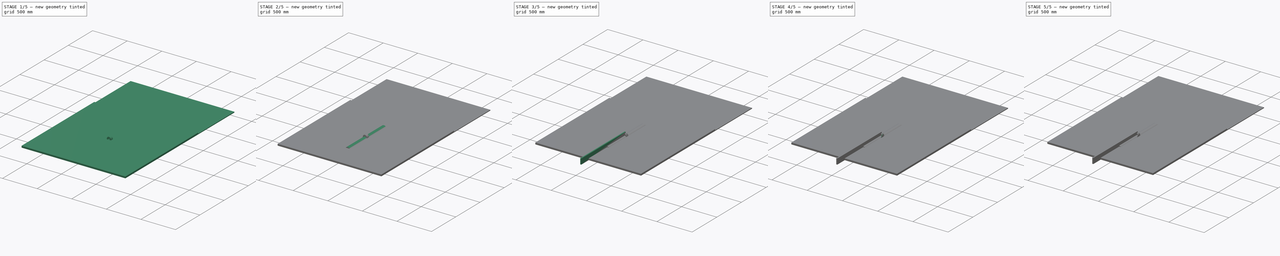
[diagram: build sequence overview — one tinted view per stage of 5, left to right]
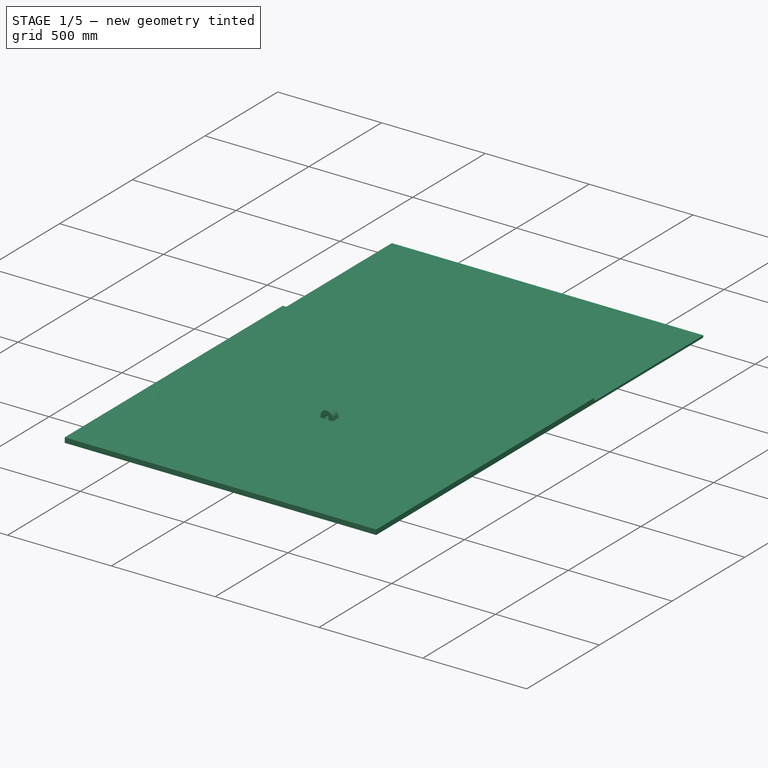
[diagram: stage 1 of 5 — iso view after this stage's code; geometry added in this stage tinted green]
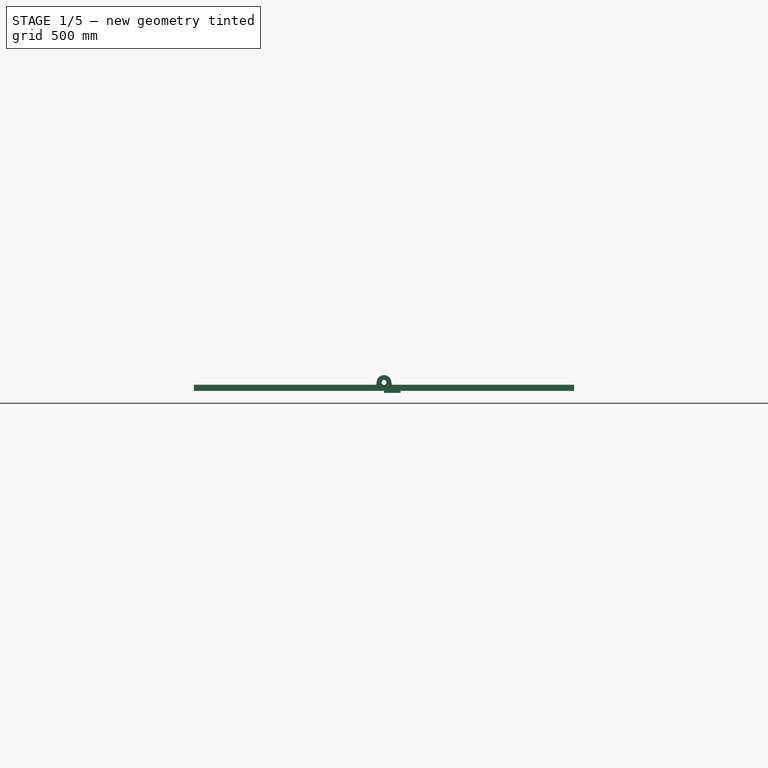
[diagram: stage 1 of 5 — front view after this stage's code; geometry added in this stage tinted green]
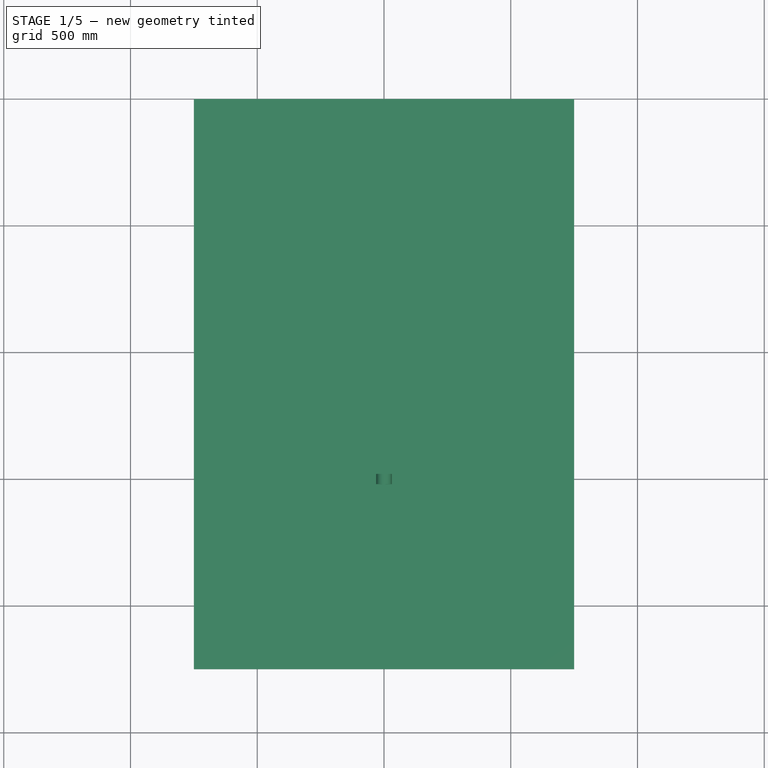
[diagram: stage 1 of 5 — top view after this stage's code; geometry added in this stage tinted green]
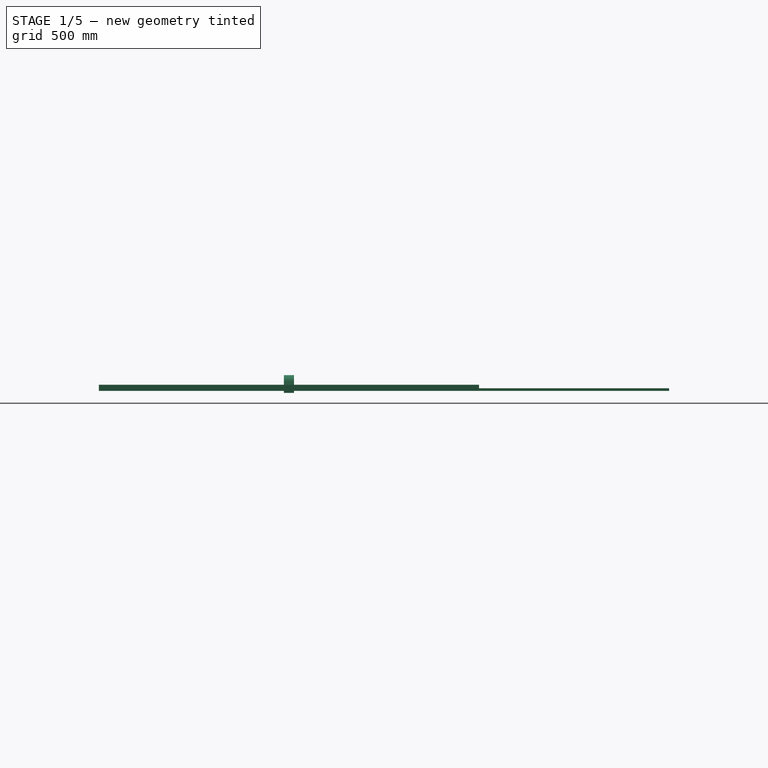
[diagram: stage 1 of 5 — right view after this stage's code; geometry added in this stage tinted green]
FCSTD DOCUMENT  (FreeCAD 0.20R29410 (Git))
Label: cutting2
License: All rights reserved
LicenseURL: http://en.wikipedia.org/wiki/All_rights_reserved
objects: App::Link×26, PartDesign::CoordinateSystem×23, Sketcher::SketchObject×20, PartDesign::Pad×17, PartDesign::Mirrored×15, PartDesign::Body×12, App::Part×8, Part::Feature×7, App::DocumentObjectGroup×5, PartDesign::MultiTransform×3, PartDesign::Revolution×2, PartDesign::Pocket×1, PartDesign::Fillet×1, App::FeaturePython×1, PartDesign::Plane×1, PartDesign::AdditiveBox×1, Part::FeaturePython×1, App::AnnotationLabel×1
note: 126 computed .brp shape members not serialized (recipe doc carries the construction recipe); baked Part::Feature solids carry a one-line shape summary decoded from their .brp
EXTERNAL_REF file=GHR20.FCStd obj=Local_CS001
EXTERNAL_REF file=cutting_roll.FCStd obj=right_20mm
EXTERNAL_REF file=cutting_roll.FCStd obj=Model
EXTERNAL_REF file=cutting_roll.FCStd obj=left_20mm
EXTERNAL_REF file=GHR20.FCStd obj=Local_CS
EXTERNAL_REF file=GHR20.FCStd obj=Body
EXTERNAL_REF file=AL-Laser1030.FCStd obj=middle
EXTERNAL_REF file=AL-Laser1030.FCStd obj=Body
EXTERNAL_REF file=AL-Laser1030.FCStd obj=begin
EXTERNAL_REF file=../../Downloads/probnik_krepezha_zazhima.FCStd obj=Local_CS005
EXTERNAL_REF file=../../Downloads/probnik_krepezha_zazhima.FCStd obj=Body001
EXTERNAL_REF file=AL-Laser1030.FCStd obj=end
EXTERNAL_REF file=../../Downloads/probnik_krepezha_zazhima.FCStd obj=Local_CS
EXTERNAL_REF file=../../Downloads/probnik_krepezha_zazhima.FCStd obj=Body002
EXTERNAL_REF file=57HS56-2804A08-D21.FCStd obj=Local_CS
EXTERNAL_REF file=../../Downloads/probnik_krepezha_zazhima.FCStd obj=Local_CS006
EXTERNAL_REF file=57HS56-2804A08-D21.FCStd obj=Body
EXTERNAL_REF file=bearing_p08.FCStd obj=Local_CS001
EXTERNAL_REF file=../../Downloads/probnik_krepezha_zazhima.FCStd obj=Local_CS002
EXTERNAL_REF file=bearing_p08.FCStd obj=p08
EXTERNAL_REF file=57HS56-2804A08-D21.FCStd obj=Local_CS002
EXTERNAL_REF file=57BLY-0730NBB.FCStd obj=fixture_plane001
EXTERNAL_REF file=57BLY-0730NBB.FCStd obj=Model
EXTERNAL_REF file=RS-100_R.FCStd obj=Local_CS001
EXTERNAL_REF file=57BLY-0730NBB.FCStd obj=LCS_1
EXTERNAL_REF file=RS-100_R.FCStd obj=Body
EXTERNAL_REF file=plywood_cutting_shield.FCStd obj=Local_CS
EXTERNAL_REF file=cutting_roll.FCStd obj=center
EXTERNAL_REF file=plywood_cutting_shield.FCStd obj=Body

FEATURE [Sketcher::SketchObject] Sketch
  FullyConstrained = false
  MapMode = 5
  Placement = pos=(0,0,0) rot=(1,0,0;1.5708rad)
  Support = -> [XZ_Plane]
  sketch-geometry (12):
    g0: LineSegment StartX=0 StartY=23 StartZ=0 EndX=0 EndY=0 EndZ=0
    g1: ArcOfCircle CenterX=0 CenterY=33 CenterZ=0 NormalX=0 NormalY=0 NormalZ=1 AngleXU=0 Radius=10 StartAngle=4.71239 EndAngle=7.85398
    g2: ArcOfCircle CenterX=0 CenterY=33 CenterZ=0 NormalX=0 NormalY=0 NormalZ=1 AngleXU=0 Radius=29 StartAngle=0.169407 EndAngle=1.5708
    g3: ArcOfCircle CenterX=62.5 CenterY=12.5 CenterZ=0 NormalX=0 NormalY=0 NormalZ=1 AngleXU=0 Radius=2.5 StartAngle=0 EndAngle=1.5708
    g4: LineSegment StartX=0 StartY=0 StartZ=0 EndX=65 EndY=0 EndZ=0
    g5: LineSegment StartX=65 StartY=0 StartZ=0 EndX=65 EndY=12.5 EndZ=0
    g6: LineSegment StartX=3.1e-15 StartY=43 StartZ=0 EndX=0 EndY=62 EndZ=0
    g7: LineSegment StartX=17 StartY=33 StartZ=0 EndX=17 EndY=0 EndZ=0
    g8: LineSegment StartX=32.5 StartY=15 StartZ=0 EndX=47.5 EndY=15 EndZ=0
    g9: LineSegment StartX=47.5 StartY=15 StartZ=0 EndX=62.5 EndY=15 EndZ=0
    g10: LineSegment StartX=47.5 StartY=0 StartZ=0 EndX=47.5 EndY=15 EndZ=0
    g11: LineSegment StartX=32.5 StartY=15 StartZ=0 EndX=28.5849 EndY=37.8893 EndZ=0
  constraints (33):
    c: PointOnObject(g0,g-2)
    c: Coincident(g0,g-1)
    c: PointOnObject(g1,g-2)
    c: Coincident(g1,g0)
    c: PointOnObject(g1,g-2)
    c: Coincident(g2,g1)
    c: PointOnObject(g2,g-2)
    c: Coincident(g4,g0)
    c: PointOnObject(g4,g-1)
    c: Coincident(g5,g4)
    c: Vertical(g5)
    c: Coincident(g6,g1)
    c: Coincident(g6,g2)
    c: Tangent(g5,g3) = -1.5708
    c: Tangent(g9,g3) = 1.5708
    c: PointOnObject(g7,g-1)
    c: Vertical(g7)
    c: Diameter(g1) = 20  'd'
    c: Coincident(g8,g9)
    c: Horizontal(g8)
    c: Horizontal(g9)
    c: Equal(g8,g9)
    c: PointOnObject(g10,g-1)
    c: Coincident(g10,g8)
    c: Vertical(g10)
    c: Distance(g10) = 15  'fixture_hole_height'
    c: DistanceX(g10) = 47.5  'hole_d_x2'
    c: DistanceX(g4) = 65  'width_x2'
    c: DistanceY(g1) = 33
    c: DistanceY(g2) = 62
    c: Coincident(g11,g8)
    c: Tangent(g11,g2) = -1.5708
    c: Diameter(g3) = 5
FEATURE [PartDesign::Pad] Pad  label="bearing_fixture_pad"
  Direction = (0,-1,-2e-16)
  Length = 40
  Length2 = 10
  Midplane = true
  Placement = pos=(0,0,0) rot=(1,0,0;1.5708rad)
  Profile = -> Sketch
  ReferenceAxis = -> Sketch [N_Axis]
  Type = 0
FEATURE [Sketcher::SketchObject] Sketch001
  FullyConstrained = true
  MapMode = 5
  Support = -> [XY_Plane]
  expr: Constraints[14] = Sketch.Constraints.hole_d_x2
  sketch-geometry (7):
    g0: ArcOfCircle CenterX=45 CenterY=0 CenterZ=0 NormalX=0 NormalY=0 NormalZ=1 AngleXU=0 Radius=5 StartAngle=1.5708 EndAngle=4.71239
    g1: ArcOfCircle CenterX=50 CenterY=0 CenterZ=0 NormalX=0 NormalY=0 NormalZ=1 AngleXU=0 Radius=5 StartAngle=4.71239 EndAngle=7.85398
    g2: LineSegment StartX=45 StartY=-5 StartZ=0 EndX=50 EndY=-5 EndZ=0
    g3: LineSegment StartX=50 StartY=5 StartZ=0 EndX=45 EndY=5 EndZ=0
    g4: GeomPoint X=40 Y=0 Z=0
    g5: GeomPoint X=55 Y=0 Z=0
    g6: GeomPoint X=47.5 Y=0 Z=0
  constraints (15):
    c: Tangent(g0,g2) = -1.5708
    c: Tangent(g2,g1) = -1.5708
    c: Tangent(g1,g3) = -1.5708
    c: Tangent(g3,g0) = -1.5708
    c: Equal(g0,g1)
    c: PointOnObject(g0,g-1)
    c: PointOnObject(g1,g-1)
    c: PointOnObject(g4,g0)
    c: PointOnObject(g5,g1)
    c: PointOnObject(g5,g-1)
    c: PointOnObject(g4,g-1)
    c: Diameter(g1) = 10
    c: DistanceX(g4,g5) = 15
    c: Symmetric(g0,g1,g6)
    c: DistanceX(g6) = 47.5
FEATURE [PartDesign::Pocket] Pocket
  BaseFeature = -> Pad
  Direction = (0,0,-1)
  Length = 5
  Length2 = 5
  Placement = pos=(0,0,0) rot=(1,0,0;1.5708rad)
  Profile = -> Sketch001
  ReferenceAxis = -> Sketch001 [N_Axis]
  Reversed = true
  Type = 1
FEATURE [PartDesign::Mirrored] Mirrored
  BaseFeature = -> Pocket
  MirrorPlane = -> Sketch [V_Axis]
  Originals = -> [Pad,Pocket]
  Placement = pos=(0,0,0) rot=(1,0,0;1.5708rad)
FEATURE [PartDesign::Fillet] Fillet
  Base = -> Mirrored [Edge18,Edge9]
  BaseFeature = -> Mirrored
  Placement = pos=(0,0,0) rot=(1,0,0;1.5708rad)
  Radius = 4
  SupportTransform = false
  UseAllEdges = false
FEATURE [App::Link] bearing007
  AssemblyType = Part::Link
  AttachedBy = #LCS_0
  AttachedTo = plywood001#shape_center
  AttachmentOffset = pos=(-750,730,0) rot=(0,0,1;0rad)
  LinkPlacement = pos=(750,730,150) rot=(0,1,0;3.14159rad)
  LinkedObject = -> bearing
  Placement = pos=(750,730,150) rot=(0,1,0;3.14159rad)
  SolverId = Asm4EE
  expr: .AttachmentOffset.Base.x = -<<plywood_sketch>>.Constraints.width / 2
  expr: .AttachmentOffset.Base.y = <<plywood_sketch>>.Constraints.width / 2 - <<bearing_fixture_pad>>.Length / 2
  expr: Placement = plywood001.Placement * shape_center.Placement * AttachmentOffset * LCS_0.Placement ^ -1
FEATURE [App::Link] plywood_shield
  AssemblyType = Part::Link
  AttachedBy = #Local_CS
  AttachedTo = Unnamed1#center
  AttachmentOffset = pos=(0,27.5,0) rot=(1,0,0;4.71239rad)
  LinkPlacement = pos=(-34.5,60.2,68.5) rot=(0,0,1;1.5708rad)
  LinkedObject = -> <external plywood_cutting_shield.FCStd>#Body
  Placement = pos=(-34.5,60.2,68.5) rot=(0,0,1;1.5708rad)
  SolverId = Asm4EE
  expr: Placement = Unnamed1.Placement * cutting_roll#center.Placement * AttachmentOffset * Unnamed1#Local_CS.Placement ^ -1
FEATURE [PartDesign::Body] Mirrored002Body002
  Origin = -> Origin018
FEATURE [Part::FeaturePython] Angle  # WARN: FeaturePython — macro-defined, semantics opaque (R4)
FEATURE [App::AnnotationLabel] AngleLbl
  BasePosition = (88.8222,-3.6e-15,110.195)
  LabelText = 164.318°
  TextPosition = (0,0,0)
FEATURE [App::DocumentObjectGroup] Measures
  Group = -> [Angle,AngleLbl]
FEATURE [PartDesign::CoordinateSystem] LCS_0006
  AttacherType = Attacher::AttachEngine3D
  MapMode = 2
  Support = -> [X_Axis019]
FEATURE [Sketcher::SketchObject] Sketch018  label="plywood_material_end_sketch"
  FullyConstrained = true
  MapMode = 5
  Support = -> [XY_Plane020]
  sketch-geometry (5):
    g0: LineSegment StartX=0 StartY=0 StartZ=0 EndX=750 EndY=0 EndZ=0
    g1: LineSegment StartX=750 StartY=0 StartZ=0 EndX=750 EndY=1500 EndZ=0
    g2: LineSegment StartX=750 StartY=1500 StartZ=0 EndX=-750 EndY=1500 EndZ=0
    g3: LineSegment StartX=-750 StartY=1500 StartZ=0 EndX=-750 EndY=0 EndZ=0
    g4: LineSegment StartX=-750 StartY=0 StartZ=0 EndX=0 EndY=0 EndZ=0
  constraints (14):
    c: Coincident(g-1,g0)
    c: PointOnObject(g0,g-1)
    c: Coincident(g0,g1)
    c: Vertical(g1)
    c: Coincident(g1,g2)
    c: Horizontal(g2)
    c: Coincident(g2,g3)
    c: PointOnObject(g3,g-1)
    c: Vertical(g3)
    c: Coincident(g3,g4)
    c: Coincident(g4,g0)
    c: Equal(g4,g0)
    c: DistanceX(g3,g0) = 1500
    c: DistanceY(g1) = 1500
FEATURE [PartDesign::Pad] Pad016
  Direction = (0,0,1)
  Length = 10
  Length2 = 10
  Profile = -> Sketch018
  ReferenceAxis = -> Sketch018 [N_Axis]
  Type = 0
FEATURE [PartDesign::CoordinateSystem] LCS_Origin
  AttacherType = Attacher::AttachEngine3D
  MapMode = 2
  Support = -> [X_Axis003]
FEATURE [App::DocumentObjectGroup] Constraints
FEATURE [App::FeaturePython] Variables  # WARN: FeaturePython — macro-defined, semantics opaque (R4)
  Type = App::PropertyContainer
FEATURE [App::DocumentObjectGroup] Configurations
FEATURE [PartDesign::CoordinateSystem] front
  AttacherType = Attacher::AttachEngine3D
  MapMode = 5
  Support = -> [XY_Plane]
FEATURE [PartDesign::CoordinateSystem] back
  AttacherType = Attacher::AttachEngine3D
  AttachmentOffset = pos=(48.85,0,0) rot=(0,0,1;0rad)
  MapMode = 5
  Placement = pos=(48.85,0,0) rot=(0,0,1;0rad)
  Support = -> [XY_Plane]
  expr: .AttachmentOffset.Base.x = Pad.Length
FEATURE [PartDesign::Body] Body  label="spacer_49mm"
  Group = -> [Sketch,Pad,front,back]
  Origin = -> Origin
  Tip = -> Pad
FEATURE [Sketcher::SketchObject] Sketch003
  FullyConstrained = true
  MapMode = 5
  Placement = pos=(0,0,0) rot=(0.57735,0.57735,0.57735;2.0944rad)
  Support = -> [YZ_Plane004]
  sketch-geometry (2):
    g0: Circle CenterX=0 CenterY=0 CenterZ=0 NormalX=0 NormalY=0 NormalZ=1 AngleXU=0 Radius=14.85
    g1: Circle CenterX=0 CenterY=0 CenterZ=0 NormalX=0 NormalY=0 NormalZ=1 AngleXU=0 Radius=12.7
  constraints (4):
    c: Coincident(g0,g-1)
    c: Diameter(g0) = 29.7
    c: Coincident(g1,g0)
    c: Diameter(g1) = 25.4
FEATURE [PartDesign::Pad] Pad001
  Direction = (1,-2e-16,3e-16)
  Length = 15
  Length2 = 10
  Placement = pos=(0,0,0) rot=(0.57735,0.57735,0.57735;2.0944rad)
  Profile = -> Sketch003
  ReferenceAxis = -> Sketch003 [N_Axis]
  Type = 0
FEATURE [PartDesign::CoordinateSystem] back001
  AttacherType = Attacher::AttachEngine3D
  AttachmentOffset = pos=(15,0,0) rot=(0,0,1;0rad)
  MapMode = 5
  Placement = pos=(15,0,0) rot=(0,0,1;0rad)
  Support = -> [XY_Plane004]
  expr: .AttachmentOffset.Base.x = Pad001.Length
FEATURE [PartDesign::CoordinateSystem] front001
  AttacherType = Attacher::AttachEngine3D
  MapMode = 5
  Support = -> [XY_Plane004]
FEATURE [PartDesign::Body] Body002  label="spacer_15mm"
  Group = -> [Sketch003,Pad001,front001,back001]
  Origin = -> Origin004
  Tip = -> Pad001
FEATURE [Sketcher::SketchObject] Sketch004
  FullyConstrained = true
  MapMode = 5
  Placement = pos=(0,0,0) rot=(0.57735,0.57735,0.57735;2.0944rad)
  Support = -> [YZ_Plane005]
  sketch-geometry (2):
    g0: Circle CenterX=0 CenterY=0 CenterZ=0 NormalX=0 NormalY=0 NormalZ=1 AngleXU=0 Radius=14.85
    g1: Circle CenterX=0 CenterY=0 CenterZ=0 NormalX=0 NormalY=0 NormalZ=1 AngleXU=0 Radius=12.7
  constraints (4):
    c: Coincident(g0,g-1)
    c: Diameter(g0) = 29.7
    c: Coincident(g1,g0)
    c: Diameter(g1) = 25.4
FEATURE [PartDesign::Pad] Pad002
  Direction = (1,-2e-16,3e-16)
  Length = 30
  Length2 = 10
  Placement = pos=(0,0,0) rot=(0.57735,0.57735,0.57735;2.0944rad)
  Profile = -> Sketch004
  ReferenceAxis = -> Sketch004 [N_Axis]
  Type = 0
FEATURE [PartDesign::CoordinateSystem] Local_CS  label="roll_begin"
  AttacherType = Attacher::AttachEngine3D
  AttachmentOffset = pos=(103,0,0) rot=(0,0,1;0rad)
  MapMode = 5
  Placement = pos=(103,0,0) rot=(0,0,1;0rad)
  Support = -> [XY_Plane006]
  expr: .AttachmentOffset.Base.x = Sketch006.Constraints.roll_begin
FEATURE [PartDesign::CoordinateSystem] Local_CS001  label="roll_end"
  AttacherType = Attacher::AttachEngine3D
  AttachmentOffset = pos=(899,0,0) rot=(0,0,1;0rad)
  MapMode = 5
  Placement = pos=(899,0,0) rot=(0,0,1;0rad)
  Support = -> [XY_Plane006]
  expr: .AttachmentOffset.Base.x = Sketch006.Constraints.roll_end
FEATURE [App::Link] axis001
  AssemblyType = Part::Link
  AttachedBy = #LCS_0
  AttachedTo = Parent Assembly#LCS_Origin
  LinkedObject = -> axis
  SolverId = Asm4EE
  expr: Placement = LCS_Origin.Placement * AttachmentOffset * LCS_0.Placement ^ -1
FEATURE [PartDesign::CoordinateSystem] Local_CS002  label="disk_end"
  AttacherType = Attacher::AttachEngine3D
  AttachmentOffset = pos=(0.55,0,0) rot=(0,0,1;0rad)
  MapMode = 5
  Placement = pos=(0.55,0,0) rot=(0,0,1;0rad)
  Support = -> [XY_Plane001]
  expr: .AttachmentOffset.Base.x = Sketch001.Constraints.thickness_x2
FEATURE [PartDesign::CoordinateSystem] Local_CS003  label="disk_begin"
  AttacherType = Attacher::AttachEngine3D
  AttachmentOffset = pos=(-0.55,0,0) rot=(0,0,1;0rad)
  MapMode = 5
  Placement = pos=(-0.55,0,0) rot=(0,0,1;0rad)
  Support = -> [XY_Plane001]
  expr: .AttachmentOffset.Base.x = -Sketch001.Constraints.thickness_x2
FEATURE [App::Link] cutting_disk  label="cutting_disk001"
  AssemblyType = Part::Link
  AttachedBy = #Local_CS006
  AttachedTo = axis001#roll_middle
  LinkPlacement = pos=(501,0,0) rot=(0,0,1;0rad)
  LinkedObject = -> Body001
  Placement = pos=(501,0,0) rot=(0,0,1;0rad)
  SolverId = Asm4EE
  expr: .AttachmentOffset.Base.x = 0
  expr: Placement = axis001.Placement * roll_middle.Placement * AttachmentOffset * Local_CS006.Placement ^ -1
FEATURE [Sketcher::SketchObject] Sketch007
  AttachmentOffset = pos=(-1.75,0,0) rot=(0,0,1;0rad)
  FullyConstrained = true
  MapMode = 5
  Placement = pos=(-1.75,0,0) rot=(0,0,1;0rad)
  Support = -> [XY_Plane006]
  expr: .AttachmentOffset.Base.x = -1.75
  sketch-geometry (6):
    g0: LineSegment StartX=-0.1095 StartY=5.053 StartZ=0 EndX=0 EndY=5.053 EndZ=0
    g1: LineSegment StartX=0 StartY=5.053 StartZ=0 EndX=0.1095 EndY=5.053 EndZ=0
    g2: LineSegment StartX=0.1095 StartY=5.053 StartZ=0 EndX=0.656251 EndY=6 EndZ=0
    g3: LineSegment StartX=0.656251 StartY=6 StartZ=0 EndX=0 EndY=6 EndZ=0
    g4: LineSegment StartX=0 StartY=6 StartZ=0 EndX=-0.656251 EndY=6 EndZ=0
    g5: LineSegment StartX=-0.656251 StartY=6 StartZ=0 EndX=-0.1095 EndY=5.053 EndZ=0
  constraints (18):
    c: PointOnObject(g0,g-2)
    c: Horizontal(g0)
    c: Coincident(g0,g1)
    c: Horizontal(g1)
    c: Coincident(g1,g2)
    c: Coincident(g2,g3)
    c: PointOnObject(g3,g-2)
    c: Horizontal(g3)
    c: Coincident(g3,g4)
    c: Horizontal(g4)
    c: Coincident(g4,g5)
    c: Coincident(g5,g0)
    c: Equal(g0,g1)
    c: Equal(g4,g3)
    c: DistanceY(g3) = 6
    c: DistanceY(g0) = 5.053
    c: DistanceX(g0,g1) = 0.219
    c: Angle(g-2,g2) = 2.61799
FEATURE [Sketcher::SketchObject] Sketch008
  AttachmentOffset = pos=(61.813,0,0) rot=(0,0,1;0rad)
  FullyConstrained = true
  MapMode = 5
  Placement = pos=(61.813,0,0) rot=(0,0,1;0rad)
  Support = -> [XY_Plane006]
  expr: .AttachmentOffset.Base.x = Sketch006.Constraints.roll_begin - Sketch006.Constraints.thread2_length - (.Constraints.root + sin(30) * (.Constraints.major_r - .Constraints.minor_r))
  sketch-geometry (6):
    g0: LineSegment StartX=0 StartY=10.376 StartZ=0 EndX=0.1875 EndY=10.376 EndZ=0
    g1: LineSegment StartX=0.1875 StartY=10.376 StartZ=0 EndX=1.12512 EndY=12 EndZ=0
    g2: LineSegment StartX=1.12512 StartY=12 StartZ=0 EndX=0 EndY=12 EndZ=0
    g3: LineSegment StartX=0 StartY=12 StartZ=0 EndX=-1.12512 EndY=12 EndZ=0
    g4: LineSegment StartX=-1.12512 StartY=12 StartZ=0 EndX=-0.1875 EndY=10.376 EndZ=0
    g5: LineSegment StartX=-0.1875 StartY=10.376 StartZ=0 EndX=0 EndY=10.376 EndZ=0
  constraints (19):
    c: PointOnObject(g0,g-2)
    c: Horizontal(g0)
    c: Coincident(g0,g1)
    c: Coincident(g1,g2)
    c: PointOnObject(g2,g-2)
    c: Horizontal(g2)
    c: Coincident(g2,g3)
    c: Horizontal(g3)
    c: Coincident(g3,g4)
    c: Coincident(g4,g5)
    c: Coincident(g5,g0)
    c: Horizontal(g5)
    c: Equal(g5,g0)
    c: Equal(g3,g2)
    c: Angle(g-2,g1) = 2.61799
    c: DistanceY(g2) = 12  'major_r'
    c: DistanceY(g0) = 10.376  'minor_r'
    c: DistanceX(g4,g0) = 0.375  'root'
    c: Distance(g1,g3) = 2.25023  'top_distance'
FEATURE [PartDesign::CoordinateSystem] Local_CS004  label="left_20mm"
  AttacherType = Attacher::AttachEngine3D
  AttachmentOffset = pos=(63,0,0) rot=(0.57735,-0.57735,-0.57735;2.0944rad)
  MapMode = 5
  Placement = pos=(63,0,0) rot=(0.57735,-0.57735,-0.57735;2.0944rad)
  Support = -> [XY_Plane006]
  expr: .AttachmentOffset.Base.x = Sketch006.Constraints.left_20mm_end
FEATURE [PartDesign::CoordinateSystem] Local_CS005  label="right_20mm"
  AttacherType = Attacher::AttachEngine3D
  AttachmentOffset = pos=(907.8,0,0) rot=(0.57735,0.57735,0.57735;2.0944rad)
  MapMode = 5
  Placement = pos=(907.8,0,0) rot=(0.57735,0.57735,0.57735;2.0944rad)
  Support = -> [XY_Plane006]
  expr: .AttachmentOffset.Base.x = Sketch006.Constraints.right_20mm_end
FEATURE [PartDesign::CoordinateSystem] left_20mm  label="left_20mm001"
  AttacherType = Attacher::AttachEngine3D
  AttachmentOffset = pos=(63,0,0) rot=(0.57735,-0.57735,-0.57735;2.0944rad)
  MapMode = 5
  Placement = pos=(63,0,0) rot=(0.57735,-0.57735,-0.57735;2.0944rad)
  Support = -> [XY_Plane003]
  expr: AttachmentOffset = <<left_20mm>>.AttachmentOffset
FEATURE [PartDesign::CoordinateSystem] right_20mm  label="right_20mm001"
  AttacherType = Attacher::AttachEngine3D
  AttachmentOffset = pos=(907.8,0,0) rot=(0.57735,0.57735,0.57735;2.0944rad)
  MapMode = 5
  Placement = pos=(907.8,0,0) rot=(0.57735,0.57735,0.57735;2.0944rad)
  Support = -> [XY_Plane003]
  expr: AttachmentOffset = <<right_20mm>>.AttachmentOffset
FEATURE [PartDesign::CoordinateSystem] roll_middle
  AttacherType = Attacher::AttachEngine3D
  AttachmentOffset = pos=(501,0,0) rot=(0,0,1;0rad)
  MapMode = 5
  Placement = pos=(501,0,0) rot=(0,0,1;0rad)
  Support = -> [XY_Plane006]
  expr: .AttachmentOffset.Base.x = Sketch006.Constraints.roll_middle
FEATURE [PartDesign::Body] axis
  Group = -> [LCS_0,Sketch006,Revolution001,Local_CS,Local_CS001,Sketch007,Sketch008,Local_CS004,Local_CS005,roll_middle]
  Origin = -> Origin006
  Tip = -> Revolution001
FEATURE [App::Link] spacer_49mm  label="spacer_49mm001"
  AssemblyType = Part::Link
  AttachedBy = #back
  AttachedTo = cutting_disk#Local_CS003
  LinkPlacement = pos=(451.6,0,0) rot=(0,0,1;0rad)
  LinkedObject = -> Body
  Placement = pos=(451.6,0,0) rot=(0,0,1;0rad)
  SolverId = Asm4EE
  expr: Placement = cutting_disk.Placement * Local_CS003.Placement * AttachmentOffset * back.Placement ^ -1
FEATURE [App::Link] cutting_disk001  label="cutting_disk002"
  AssemblyType = Part::Link
  AttachedBy = #Local_CS002
  AttachedTo = spacer_49mm#front
  LinkPlacement = pos=(451.05,0,0) rot=(0,0,1;0rad)
  LinkedObject = -> Body001
  Placement = pos=(451.05,0,0) rot=(0,0,1;0rad)
  SolverId = Asm4EE
  expr: Placement = spacer_49mm.Placement * front.Placement * AttachmentOffset * Local_CS002.Placement ^ -1
FEATURE [App::Link] spacer_49mm001  label="spacer_49mm002"
  AssemblyType = Part::Link
  AttachedBy = #back
  AttachedTo = cutting_disk001#Local_CS003
  LinkPlacement = pos=(401.65,0,0) rot=(0,0,1;0rad)
  LinkedObject = -> Body
  Placement = pos=(401.65,0,0) rot=(0,0,1;0rad)
  SolverId = Asm4EE
  expr: Placement = cutting_disk001.Placement * Local_CS003.Placement * AttachmentOffset * back.Placement ^ -1
FEATURE [App::Link] cutting_disk002  label="cutting_disk003"
  AssemblyType = Part::Link
  AttachedBy = #Local_CS002
  AttachedTo = spacer_49mm001#front
  LinkPlacement = pos=(401.1,0,0) rot=(0,0,1;0rad)
  LinkedObject = -> Body001
  Placement = pos=(401.1,0,0) rot=(0,0,1;0rad)
  SolverId = Asm4EE
  expr: Placement = spacer_49mm001.Placement * front.Placement * AttachmentOffset * Local_CS002.Placement ^ -1
FEATURE [App::Link] spacer_49mm002  label="spacer_49mm003"
  AssemblyType = Part::Link
  AttachedBy = #back
  AttachedTo = cutting_disk002#Local_CS003
  LinkPlacement = pos=(351.7,0,0) rot=(0,0,1;0rad)
  LinkedObject = -> Body
  Placement = pos=(351.7,0,0) rot=(0,0,1;0rad)
  SolverId = Asm4EE
  expr: Placement = cutting_disk002.Placement * Local_CS003.Placement * AttachmentOffset * back.Placement ^ -1
FEATURE [App::Link] cutting_disk003  label="cutting_disk004"
  AssemblyType = Part::Link
  AttachedBy = #Local_CS002
  AttachedTo = spacer_49mm002#front
  LinkPlacement = pos=(351.15,0,0) rot=(0,0,1;0rad)
  LinkedObject = -> Body001
  Placement = pos=(351.15,0,0) rot=(0,0,1;0rad)
  SolverId = Asm4EE
  expr: Placement = spacer_49mm002.Placement * front.Placement * AttachmentOffset * Local_CS002.Placement ^ -1
FEATURE [App::Link] spacer_49mm003  label="spacer_49mm004"
  AssemblyType = Part::Link
  AttachedBy = #back
  AttachedTo = cutting_disk003#Local_CS003
  LinkPlacement = pos=(301.75,0,0) rot=(0,0,1;0rad)
  LinkedObject = -> Body
  Placement = pos=(301.75,0,0) rot=(0,0,1;0rad)
  SolverId = Asm4EE
  expr: Placement = cutting_disk003.Placement * Local_CS003.Placement * AttachmentOffset * back.Placement ^ -1
FEATURE [PartDesign::CoordinateSystem] Local_CS006  label="disk_middle"
  AttacherType = Attacher::AttachEngine3D
  MapMode = 5
  Support = -> [XY_Plane001]
FEATURE [PartDesign::Body] Body001  label="cutting_disk"
  Group = -> [Sketch001,Revolution,Sketch002,Mirrored,Pocket,Mirrored001,Local_CS002,Local_CS003,Local_CS006]
  Origin = -> Origin001
  Tip = -> Mirrored001
FEATURE [App::DocumentObjectGroup] Parts
  Group = -> [Body,Body001,Body002,Body003,axis]
FEATURE [App::Link] cutting_disk004  label="cutting_disk005"
  AssemblyType = Part::Link
  AttachedBy = #Local_CS002
  AttachedTo = spacer_49mm003#front
  LinkPlacement = pos=(301.2,0,0) rot=(0,0,1;0rad)
  LinkedObject = -> Body001
  Placement = pos=(301.2,0,0) rot=(0,0,1;0rad)
  SolverId = Asm4EE
  expr: Placement = spacer_49mm003.Placement * front.Placement * AttachmentOffset * Local_CS002.Placement ^ -1
FEATURE [App::Link] spacer_49mm004  label="spacer_49mm005"
  AssemblyType = Part::Link
  AttachedBy = #back
  AttachedTo = cutting_disk004#Local_CS003
  LinkPlacement = pos=(251.8,0,0) rot=(0,0,1;0rad)
  LinkedObject = -> Body
  Placement = pos=(251.8,0,0) rot=(0,0,1;0rad)
  SolverId = Asm4EE
  expr: Placement = cutting_disk004.Placement * Local_CS003.Placement * AttachmentOffset * back.Placement ^ -1
FEATURE [App::Link] cutting_disk005  label="cutting_disk006"
  AssemblyType = Part::Link
  AttachedBy = #Local_CS002
  AttachedTo = spacer_49mm004#front
  LinkPlacement = pos=(251.25,0,0) rot=(0,0,1;0rad)
  LinkedObject = -> Body001
  Placement = pos=(251.25,0,0) rot=(0,0,1;0rad)
  SolverId = Asm4EE
  expr: Placement = spacer_49mm004.Placement * front.Placement * AttachmentOffset * Local_CS002.Placement ^ -1
FEATURE [App::Link] spacer_49mm005  label="spacer_49mm006"
  AssemblyType = Part::Link
  AttachedBy = #back
  AttachedTo = cutting_disk005#Local_CS003
  LinkPlacement = pos=(201.85,0,0) rot=(0,0,1;0rad)
  LinkedObject = -> Body
  Placement = pos=(201.85,0,0) rot=(0,0,1;0rad)
  SolverId = Asm4EE
  expr: Placement = cutting_disk005.Placement * Local_CS003.Placement * AttachmentOffset * back.Placement ^ -1
FEATURE [App::Link] cutting_disk006  label="cutting_disk007"
  AssemblyType = Part::Link
  AttachedBy = #Local_CS002
  AttachedTo = spacer_49mm005#front
  LinkPlacement = pos=(201.3,0,0) rot=(0,0,1;0rad)
  LinkedObject = -> Body001
  Placement = pos=(201.3,0,0) rot=(0,0,1;0rad)
  SolverId = Asm4EE
  expr: Placement = spacer_49mm005.Placement * front.Placement * AttachmentOffset * Local_CS002.Placement ^ -1
FEATURE [App::Link] spacer_49mm006  label="spacer_49mm007"
  AssemblyType = Part::Link
  AttachedBy = #back
  AttachedTo = cutting_disk006#Local_CS003
  LinkPlacement = pos=(151.9,0,0) rot=(0,0,1;0rad)
  LinkedObject = -> Body
  Placement = pos=(151.9,0,0) rot=(0,0,1;0rad)
  SolverId = Asm4EE
  expr: Placement = cutting_disk006.Placement * Local_CS003.Placement * AttachmentOffset * back.Placement ^ -1
FEATURE [App::Link] cutting_disk007  label="cutting_disk008"
  AssemblyType = Part::Link
  AttachedBy = #Local_CS002
  AttachedTo = spacer_49mm006#front
  LinkPlacement = pos=(151.35,0,0) rot=(0,0,1;0rad)
  LinkedObject = -> Body001
  Placement = pos=(151.35,0,0) rot=(0,0,1;0rad)
  SolverId = Asm4EE
  expr: Placement = spacer_49mm006.Placement * front.Placement * AttachmentOffset * Local_CS002.Placement ^ -1
FEATURE [App::Link] spacer_49mm007  label="spacer_49mm008"
  AssemblyType = Part::Link
  AttachedBy = #front
  AttachedTo = cutting_disk#Local_CS002
  LinkPlacement = pos=(501.55,0,0) rot=(0,0,1;0rad)
  LinkedObject = -> Body
  Placement = pos=(501.55,0,0) rot=(0,0,1;0rad)
  SolverId = Asm4EE
  expr: Placement = cutting_disk.Placement * Local_CS002.Placement * AttachmentOffset * front.Placement ^ -1
FEATURE [App::Link] cutting_disk008  label="cutting_disk009"
  AssemblyType = Part::Link
  AttachedBy = #Local_CS003
  AttachedTo = spacer_49mm007#back
  LinkPlacement = pos=(550.95,0,0) rot=(0,0,1;0rad)
  LinkedObject = -> Body001
  Placement = pos=(550.95,0,0) rot=(0,0,1;0rad)
  SolverId = Asm4EE
  expr: Placement = spacer_49mm007.Placement * back.Placement * AttachmentOffset * Local_CS003.Placement ^ -1
FEATURE [App::Link] spacer_49mm008  label="spacer_49mm009"
  AssemblyType = Part::Link
  AttachedBy = #front
  AttachedTo = cutting_disk008#Local_CS002
  LinkPlacement = pos=(551.5,0,0) rot=(0,0,1;0rad)
  LinkedObject = -> Body
  Placement = pos=(551.5,0,0) rot=(0,0,1;0rad)
  SolverId = Asm4EE
  expr: Placement = cutting_disk008.Placement * Local_CS002.Placement * AttachmentOffset * front.Placement ^ -1
FEATURE [App::Link] cutting_disk009  label="cutting_disk010"
  AssemblyType = Part::Link
  AttachedBy = #Local_CS003
  AttachedTo = spacer_49mm008#back
  LinkPlacement = pos=(600.9,0,0) rot=(0,0,1;0rad)
  LinkedObject = -> Body001
  Placement = pos=(600.9,0,0) rot=(0,0,1;0rad)
  SolverId = Asm4EE
  expr: Placement = spacer_49mm008.Placement * back.Placement * AttachmentOffset * Local_CS003.Placement ^ -1
FEATURE [App::Link] spacer_49mm009  label="spacer_49mm010"
  AssemblyType = Part::Link
  AttachedBy = #front
  AttachedTo = cutting_disk009#Local_CS002
  LinkPlacement = pos=(601.45,0,0) rot=(0,0,1;0rad)
  LinkedObject = -> Body
  Placement = pos=(601.45,0,0) rot=(0,0,1;0rad)
  SolverId = Asm4EE
  expr: Placement = cutting_disk009.Placement * Local_CS002.Placement * AttachmentOffset * front.Placement ^ -1
FEATURE [App::Link] cutting_disk010  label="cutting_disk011"
  AssemblyType = Part::Link
  AttachedBy = #Local_CS003
  AttachedTo = spacer_49mm009#back
  LinkPlacement = pos=(650.85,0,0) rot=(0,0,1;0rad)
  LinkedObject = -> Body001
  Placement = pos=(650.85,0,0) rot=(0,0,1;0rad)
  SolverId = Asm4EE
  expr: Placement = spacer_49mm009.Placement * back.Placement * AttachmentOffset * Local_CS003.Placement ^ -1
FEATURE [App::Link] spacer_49mm010  label="spacer_49mm011"
  AssemblyType = Part::Link
  AttachedBy = #front
  AttachedTo = cutting_disk010#Local_CS002
  LinkPlacement = pos=(651.4,0,0) rot=(0,0,1;0rad)
  LinkedObject = -> Body
  Placement = pos=(651.4,0,0) rot=(0,0,1;0rad)
  SolverId = Asm4EE
  expr: Placement = cutting_disk010.Placement * Local_CS002.Placement * AttachmentOffset * front.Placement ^ -1
FEATURE [App::Link] cutting_disk011  label="cutting_disk012"
  AssemblyType = Part::Link
  AttachedBy = #Local_CS003
  AttachedTo = spacer_49mm010#back
  LinkPlacement = pos=(700.8,0,0) rot=(0,0,1;0rad)
  LinkedObject = -> Body001
  Placement = pos=(700.8,0,0) rot=(0,0,1;0rad)
  SolverId = Asm4EE
  expr: Placement = spacer_49mm010.Placement * back.Placement * AttachmentOffset * Local_CS003.Placement ^ -1
FEATURE [App::Link] spacer_49mm011  label="spacer_49mm012"
  AssemblyType = Part::Link
  AttachedBy = #front
  AttachedTo = cutting_disk011#Local_CS002
  LinkPlacement = pos=(701.35,0,0) rot=(0,0,1;0rad)
  LinkedObject = -> Body
  Placement = pos=(701.35,0,0) rot=(0,0,1;0rad)
  SolverId = Asm4EE
  expr: Placement = cutting_disk011.Placement * Local_CS002.Placement * AttachmentOffset * front.Placement ^ -1
FEATURE [App::Link] cutting_disk012  label="cutting_disk013"
  AssemblyType = Part::Link
  AttachedBy = #Local_CS003
  AttachedTo = spacer_49mm011#back
  LinkPlacement = pos=(750.75,0,0) rot=(0,0,1;0rad)
  LinkedObject = -> Body001
  Placement = pos=(750.75,0,0) rot=(0,0,1;0rad)
  SolverId = Asm4EE
  expr: Placement = spacer_49mm011.Placement * back.Placement * AttachmentOffset * Local_CS003.Placement ^ -1
FEATURE [App::Link] spacer_49mm012  label="spacer_49mm013"
  AssemblyType = Part::Link
  AttachedBy = #front
  AttachedTo = cutting_disk012#Local_CS002
  LinkPlacement = pos=(751.3,0,0) rot=(0,0,1;0rad)
  LinkedObject = -> Body
  Placement = pos=(751.3,0,0) rot=(0,0,1;0rad)
  SolverId = Asm4EE
  expr: Placement = cutting_disk012.Placement * Local_CS002.Placement * AttachmentOffset * front.Placement ^ -1
FEATURE [App::Link] cutting_disk013  label="cutting_disk014"
  AssemblyType = Part::Link
  AttachedBy = #Local_CS003
  AttachedTo = spacer_49mm012#back
  LinkPlacement = pos=(800.7,0,0) rot=(0,0,1;0rad)
  LinkedObject = -> Body001
  Placement = pos=(800.7,0,0) rot=(0,0,1;0rad)
  SolverId = Asm4EE
  expr: Placement = spacer_49mm012.Placement * back.Placement * AttachmentOffset * Local_CS003.Placement ^ -1
FEATURE [App::Link] spacer_49mm013  label="spacer_49mm014"
  AssemblyType = Part::Link
  AttachedBy = #front
  AttachedTo = cutting_disk013#Local_CS002
  LinkPlacement = pos=(801.25,0,0) rot=(0,0,1;0rad)
  LinkedObject = -> Body
  Placement = pos=(801.25,0,0) rot=(0,0,1;0rad)
  SolverId = Asm4EE
  expr: Placement = cutting_disk013.Placement * Local_CS002.Placement * AttachmentOffset * front.Placement ^ -1
FEATURE [App::Link] cutting_disk014  label="cutting_disk015"
  AssemblyType = Part::Link
  AttachedBy = #Local_CS003
  AttachedTo = spacer_49mm013#back
  LinkPlacement = pos=(850.65,0,0) rot=(0,0,1;0rad)
  LinkedObject = -> Body001
  Placement = pos=(850.65,0,0) rot=(0,0,1;0rad)
  SolverId = Asm4EE
  expr: Placement = spacer_49mm013.Placement * back.Placement * AttachmentOffset * Local_CS003.Placement ^ -1
FEATURE [App::Link] spacer_49mm014  label="spacer_49mm015"
  AssemblyType = Part::Link
  AttachedBy = #front
  AttachedTo = cutting_disk014#Local_CS002
  LinkPlacement = pos=(851.2,0,0) rot=(0,0,1;0rad)
  LinkedObject = -> Body
  Placement = pos=(851.2,0,0) rot=(0,0,1;0rad)
  SolverId = Asm4EE
  expr: Placement = cutting_disk014.Placement * Local_CS002.Placement * AttachmentOffset * front.Placement ^ -1
FEATURE [PartDesign::CoordinateSystem] center
  AttacherType = Attacher::AttachEngine3D
  MapMode = 5
  Placement = pos=(501,0,0) rot=(0,0,1;0rad)
  Support = -> [roll_middle]
FEATURE [App::Part] Model
  AssemblyType = Part::Link
  Group = -> [LCS_Origin,Constraints,Variables,Configurations,axis001,cutting_disk,left_20mm,right_20mm,spacer_49mm,cutting_disk001,spacer_49mm001,cutting_disk002,spacer_49mm002,cutting_disk003,spacer_49mm003,cutting_disk004,spacer_49mm004,cutting_disk005,spacer_49mm005,cutting_disk006,spacer_49mm006,cutting_disk007,spacer_49mm007,cutting_disk008,spacer_49mm008,cutting_disk009,spacer_49mm009,cutting_disk010,+10 more]
  Origin = -> Origin003
  Type = Assembly
---- part plywood_cutting_shield.FCStd = doc fcstd_1c8befd8283d ----
FCSTD DOCUMENT  (FreeCAD 0.20R29410 (Git))
Label: plywood_cutting_shield
License: All rights reserved
LicenseURL: http://en.wikipedia.org/wiki/All_rights_reserved
objects: Path::FeaturePython×14, App::DocumentObjectGroup×12, Part::FeaturePython×11, Sketcher::SketchObject×8, PartDesign::LinearPattern×4, App::FeaturePython×4, PartDesign::Pad×2, PartDesign::Pocket×2, PartDesign::MultiTransform×2, PartDesign::Body×2, PartDesign::Mirrored×1, PartDesign::CoordinateSystem×1, PartDesign::FeaturePython×1, Part::Feature×1, Part::Part2DObjectPython×1
note: 44 computed .brp shape members not serialized (recipe doc carries the construction recipe); baked Part::Feature solids carry a one-line shape summary decoded from their .brp
EXTERNAL_REF file=cutting_roll.FCStd obj=Sketch001
EXTERNAL_REF file=cutting_roll.FCStd obj=Pad

FEATURE [Sketcher::SketchObject] Sketch
  FullyConstrained = true
  MapMode = 5
  Support = -> [XY_Plane]
  sketch-geometry (4):
    g0: LineSegment StartX=0 StartY=0 StartZ=0 EndX=400 EndY=0 EndZ=0
    g1: LineSegment StartX=400 StartY=0 StartZ=0 EndX=400 EndY=200 EndZ=0
    g2: LineSegment StartX=400 StartY=200 StartZ=0 EndX=0 EndY=200 EndZ=0
    g3: LineSegment StartX=0 StartY=200 StartZ=0 EndX=0 EndY=0 EndZ=0
  constraints (11):
    c: Coincident(g0,g1)
    c: Coincident(g1,g2)
    c: Coincident(g2,g3)
    c: Coincident(g3,g0)
    c: Horizontal(g0)
    c: Horizontal(g2)
    c: Vertical(g1)
    c: Vertical(g3)
    c: Coincident(g0,g-1)
    c: Distance(g0) = 400
    c: Distance(g3) = 200
FEATURE [PartDesign::Pad] Pad
  Direction = (0,0,1)
  Length = 3
  Length2 = 10
  Profile = -> Sketch
  ReferenceAxis = -> Sketch [N_Axis]
  Type = 0
FEATURE [Sketcher::SketchObject] Sketch001
  AttachmentOffset = pos=(0,20,0) rot=(0,0,1;0rad)
  FullyConstrained = true
  MapMode = 5
  Placement = pos=(0,20,0) rot=(0,0,1;0rad)
  Support = -> [XY_Plane]
  expr: .Constraints.length = cutting_roll#<<disk_sketch>>.Constraints.r * 2 + 6mm
  sketch-geometry (5):
    g0: LineSegment StartX=1.59 StartY=0 StartZ=0 EndX=1.59 EndY=82 EndZ=0
    g1: LineSegment StartX=1.59 StartY=82 StartZ=0 EndX=-1.59 EndY=82 EndZ=0
    g2: LineSegment StartX=-1.59 StartY=82 StartZ=0 EndX=-1.59 EndY=0 EndZ=0
    g3: LineSegment StartX=-1.59 StartY=0 StartZ=0 EndX=0 EndY=0 EndZ=0
    g4: LineSegment StartX=0 StartY=0 StartZ=0 EndX=1.59 EndY=0 EndZ=0
  constraints (14):
    c: Coincident(g0,g1)
    c: Coincident(g1,g2)
    c: Horizontal(g1)
    c: Vertical(g0)
    c: Vertical(g2)
    c: PointOnObject(g2,g-1)
    c: Distance(g2) = 82  'length'
    c: Distance(g1) = 3.18  'width'
    c: Coincident(g3,g2)
    c: Coincident(g4,g0)
    c: Coincident(g3,g4)
    c: Horizontal(g4)
    c: Equal(g3,g4)
    c: Coincident(g-1,g3)
FEATURE [PartDesign::Pocket] Pocket
  BaseFeature = -> Pad
  Direction = (0,0,-1)
  Length = 5
  Length2 = 5
  Profile = -> Sketch001
  ReferenceAxis = -> Sketch001 [N_Axis]
  Reversed = true
  Type = 1
FEATURE [PartDesign::Mirrored] Mirrored
  BaseFeature = -> Pocket
  MirrorPlane = -> Sketch [V_Axis]
  Originals = -> [Pad]
FEATURE [Sketcher::SketchObject] Sketch002
  FullyConstrained = true
  MapMode = 5
  Support = -> [XY_Plane001]
  sketch-geometry (5):
    g0: LineSegment StartX=-400 StartY=200 StartZ=0 EndX=-400 EndY=0 EndZ=0
    g1: LineSegment StartX=-400 StartY=0 StartZ=0 EndX=400 EndY=0 EndZ=0
    g2: LineSegment StartX=400 StartY=0 StartZ=0 EndX=400 EndY=200 EndZ=0
    g3: LineSegment StartX=400 StartY=200 StartZ=0 EndX=-400 EndY=200 EndZ=0
    g4: GeomPoint X=0 Y=100 Z=0
  constraints (13):
    c: Coincident(g0,g1)
    c: Coincident(g1,g2)
    c: Coincident(g2,g3)
    c: Coincident(g3,g0)
    c: Horizontal(g1)
    c: Horizontal(g3)
    c: Vertical(g0)
    c: Vertical(g2)
    c: Symmetric(g1,g0,g4)
    c: PointOnObject(g4,g-2)
    c: PointOnObject(g1,g-1)
    c: DistanceY(g2) = 200
    c: DistanceX(g1,g1) = 800
FEATURE [Sketcher::SketchObject] Sketch003
  AttachmentOffset = pos=(0,20,0) rot=(0,0,1;0rad)
  FullyConstrained = true
  MapMode = 5
  Placement = pos=(0,20,0) rot=(0,0,1;0rad)
  Support = -> [XY_Plane001]
  expr: .AttachmentOffset.Base.y = Sketch001.AttachmentOffset.Base.y
  expr: Constraints[11] = Sketch001.Constraints.length
  sketch-geometry (5):
    g0: LineSegment StartX=-7.5 StartY=82 StartZ=0 EndX=-7.5 EndY=0 EndZ=0
    g1: LineSegment StartX=-7.5 StartY=0 StartZ=0 EndX=7.5 EndY=0 EndZ=0
    g2: LineSegment StartX=7.5 StartY=0 StartZ=0 EndX=7.5 EndY=82 EndZ=0
    g3: LineSegment StartX=7.5 StartY=82 StartZ=0 EndX=-7.5 EndY=82 EndZ=0
    g4: GeomPoint X=2e-16 Y=41 Z=0
  constraints (13):
    c: Coincident(g0,g1)
    c: Coincident(g1,g2)
    c: Coincident(g2,g3)
    c: Coincident(g3,g0)
    c: Horizontal(g1)
    c: Horizontal(g3)
    c: Vertical(g0)
    c: Vertical(g2)
    c: Symmetric(g1,g0,g4)
    c: PointOnObject(g4,g-2)
    c: PointOnObject(g1,g-1)
    c: DistanceY(g2,g2) = 82
    c: DistanceX(g1,g1) = 15
FEATURE [PartDesign::Pad] Pad001
  Direction = (0,0,1)
  Length = 10
  Length2 = 10
  Profile = -> Sketch002
  ReferenceAxis = -> Sketch002 [N_Axis]
  Type = 0
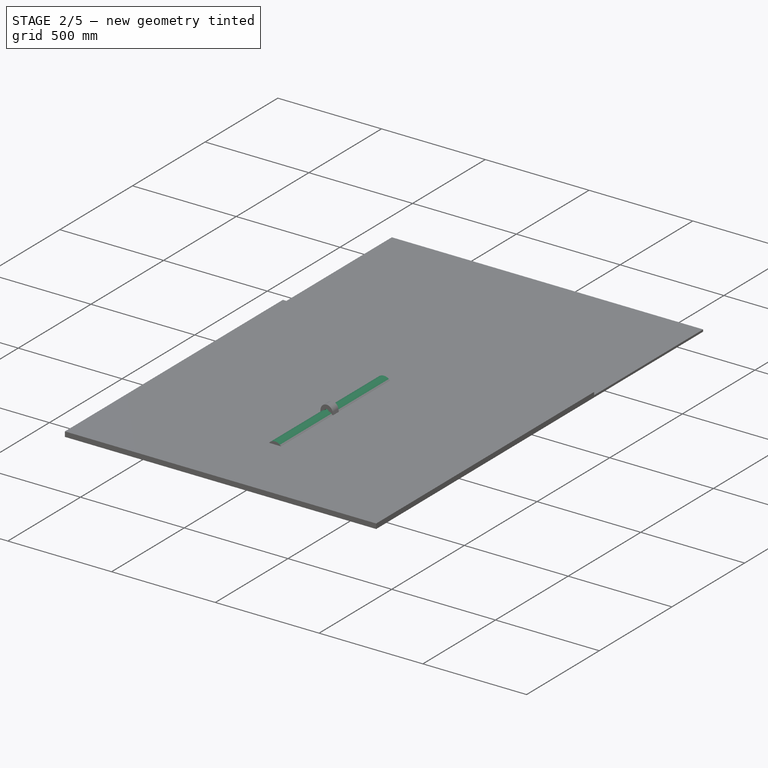
[diagram: stage 2 of 5 — iso view after this stage's code; geometry added in this stage tinted green]
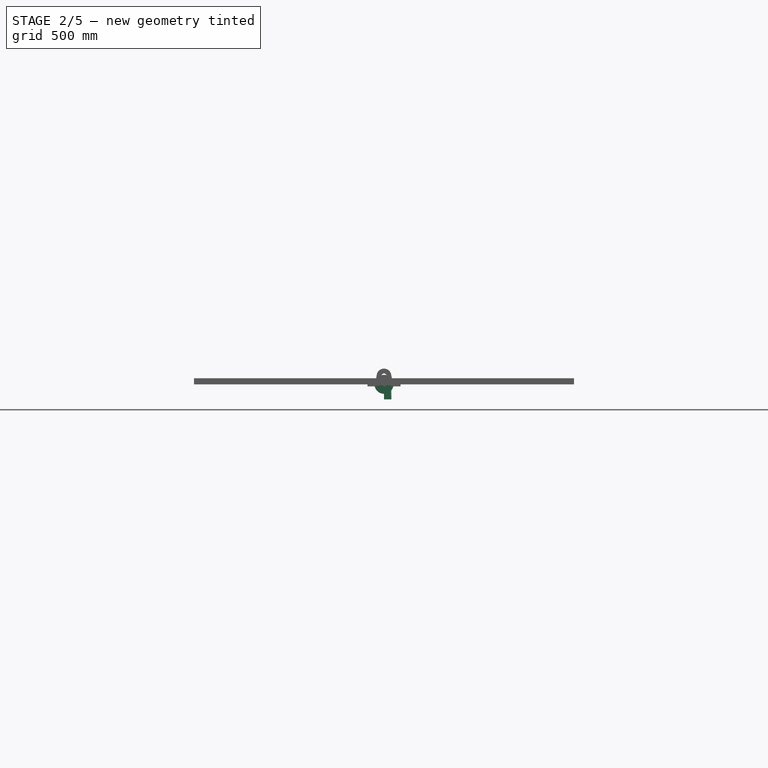
[diagram: stage 2 of 5 — front view after this stage's code; geometry added in this stage tinted green]
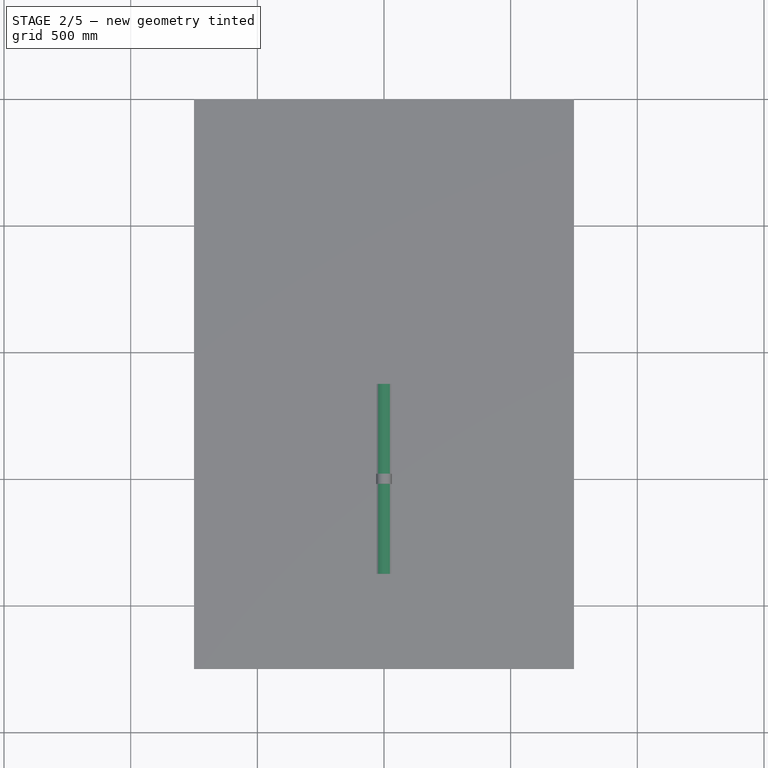
[diagram: stage 2 of 5 — top view after this stage's code; geometry added in this stage tinted green]
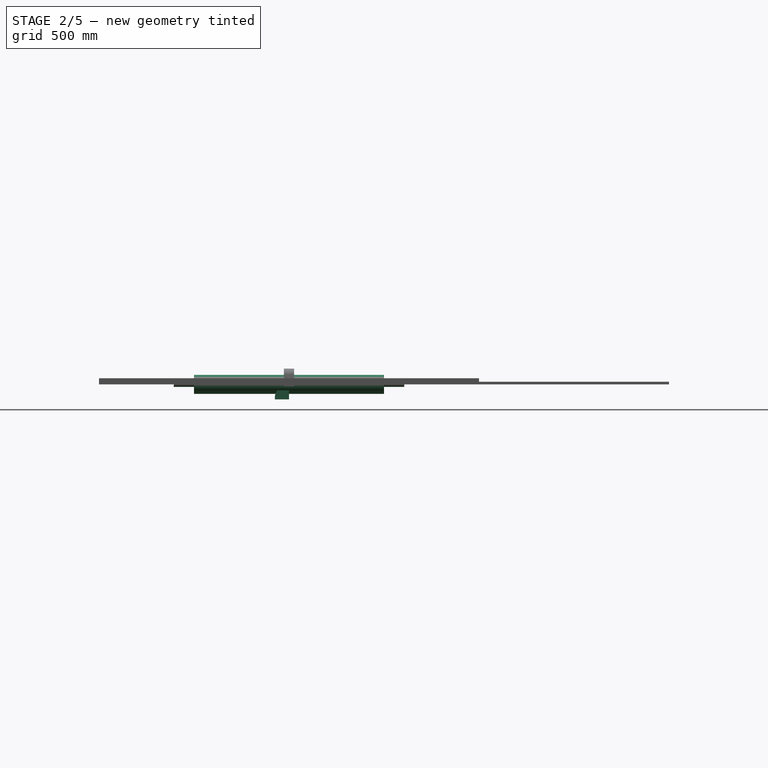
[diagram: stage 2 of 5 — right view after this stage's code; geometry added in this stage tinted green]
FEATURE [PartDesign::CoordinateSystem] Local_CS001  label="begin"
  AttacherType = Attacher::AttachEngine3D
  AttachmentOffset = pos=(0,-900,0) rot=(0,0,1;0rad)
  MapMode = 5
  Placement = pos=(0,-900,0) rot=(0,0,1;0rad)
  Support = -> [XY_Plane014]
  expr: .AttachmentOffset.Base.y = -Pad011.Length
FEATURE [PartDesign::CoordinateSystem] Local_CS002
  AttacherType = Attacher::AttachEngine3D
  AttachmentOffset = pos=(0,-450,0) rot=(0,0,1;0rad)
  MapMode = 5
  Placement = pos=(0,-450,0) rot=(0,0,1;0rad)
  Support = -> [XY_Plane014]
  expr: .AttachmentOffset.Base.y = -Pad011.Length / 2
FEATURE [PartDesign::Body] press_response_part
  Group = -> [LCS_0005,Sketch_2,Pad011,Local_CS001,Local_CS002]
  Origin = -> Origin014
  Tip = -> Pad011
FEATURE [App::Link] press_response_part001
  AssemblyType = Part::Link
  AttachedBy = #Local_CS002
  AttachedTo = plywood002#shape_center
  AttachmentOffset = pos=(69.5,0,0) rot=(0,0,1;0rad)
  LinkPlacement = pos=(69.5,450,0) rot=(0,0,1;0rad)
  LinkedObject = -> press_response_part
  Placement = pos=(69.5,450,0) rot=(0,0,1;0rad)
  SolverId = Asm4EE
  expr: .AttachmentOffset.Base.x = profile1030.Placement.Base.x
  expr: Placement = plywood002.Placement * shape_center.Placement * AttachmentOffset * Local_CS002.Placement ^ -1
FEATURE [Sketcher::SketchObject] Sketch013
  FullyConstrained = true
  MapMode = 5
  Support = -> [XY_Plane015]
  sketch-geometry (7):
    g0: LineSegment StartX=0 StartY=0 StartZ=0 EndX=27.35 EndY=0 EndZ=0
    g1: LineSegment StartX=27.35 StartY=0 StartZ=0 EndX=27.35 EndY=12.7 EndZ=0
    g2: LineSegment StartX=27.35 StartY=12.7 StartZ=0 EndX=0 EndY=12.7 EndZ=0
    g3: LineSegment StartX=0 StartY=12.7 StartZ=0 EndX=0 EndY=0 EndZ=0
    g4: Circle CenterX=21 CenterY=6.35 CenterZ=0 NormalX=0 NormalY=0 NormalZ=1 AngleXU=0 Radius=2.75
    g5: LineSegment StartX=21 StartY=0 StartZ=0 EndX=21 EndY=6.35 EndZ=0
    g6: LineSegment StartX=21 StartY=6.35 StartZ=0 EndX=21 EndY=12.7 EndZ=0
  constraints (20):
    c: Coincident(g0,g1)
    c: Coincident(g1,g2)
    c: Coincident(g2,g3)
    c: Coincident(g3,g0)
    c: Horizontal(g0)
    c: Horizontal(g2)
    c: Vertical(g1)
    c: Vertical(g3)
    c: Coincident(g0,g-1)
    c: DistanceX(g4) = 21
    c: PointOnObject(g5,g0)
    c: Coincident(g5,g4)
    c: Coincident(g5,g6)
    c: PointOnObject(g6,g2)
    c: Vertical(g6)
    c: Vertical(g5)
    c: Equal(g5,g6)
    c: Diameter(g4) = 5.5
    c: Distance(g3) = 12.7  'length'
    c: DistanceX(g0) = 27.35  'width'
FEATURE [PartDesign::Pad] Pad012
  Direction = (0,0,1)
  Length = 5
  Length2 = 10
  Profile = -> Sketch013
  ReferenceAxis = -> Sketch013 [N_Axis]
  Reversed = true
  Type = 0
FEATURE [Sketcher::SketchObject] Sketch014
  AttachmentOffset = pos=(0,-56,-59.5) rot=(0,0,1;0rad)
  FullyConstrained = true
  MapMode = 5
  Placement = pos=(0,-56,-59.5) rot=(0,0,1;0rad)
  Support = -> [XY_Plane015]
  expr: .AttachmentOffset.Base.y = -.Constraints.length
  expr: .Constraints.length = Sketch010.Constraints[31]
  expr: .Constraints.width = Sketch010.Constraints[30]
  expr: Constraints[33] = Sketch010.Constraints[33]
  sketch-geometry (12):
    g0: LineSegment StartX=0 StartY=0 StartZ=0 EndX=29 EndY=0 EndZ=0
    g1: LineSegment StartX=29 StartY=0 StartZ=0 EndX=29 EndY=56 EndZ=0
    g2: LineSegment StartX=29 StartY=56 StartZ=0 EndX=0 EndY=56 EndZ=0
    g3: LineSegment StartX=0 StartY=56 StartZ=0 EndX=0 EndY=0 EndZ=0
    g4: Circle CenterX=14.5 CenterY=14 CenterZ=0 NormalX=0 NormalY=0 NormalZ=1 AngleXU=0 Radius=2.75
    g5: Circle CenterX=14.5 CenterY=42 CenterZ=0 NormalX=0 NormalY=0 NormalZ=1 AngleXU=0 Radius=2.75
    g6: LineSegment StartX=14.5 StartY=56 StartZ=0 EndX=14.5 EndY=42 EndZ=0
    g7: LineSegment StartX=14.5 StartY=42 StartZ=0 EndX=14.5 EndY=28 EndZ=0
    g8: LineSegment StartX=14.5 StartY=28 StartZ=0 EndX=14.5 EndY=14 EndZ=0
    g9: LineSegment StartX=14.5 StartY=14 StartZ=0 EndX=14.5 EndY=0 EndZ=0
    g10: LineSegment StartX=0 StartY=28 StartZ=0 EndX=14.5 EndY=28 EndZ=0
    g11: LineSegment StartX=14.5 StartY=28 StartZ=0 EndX=29 EndY=28 EndZ=0
  constraints (34):
    c: Coincident(g0,g1)
    c: Coincident(g1,g2)
    c: Coincident(g2,g3)
    c: Coincident(g3,g0)
    c: Horizontal(g0)
    c: Horizontal(g2)
    c: Vertical(g1)
    c: Vertical(g3)
    c: Coincident(g0,g-1)
    c: Vertical(g5,g4)
    c: PointOnObject(g6,g2)
    c: Coincident(g6,g5)
    c: Vertical(g6)
    c: Coincident(g6,g7)
    c: Vertical(g7)
    c: Coincident(g7,g8)
    c: Coincident(g8,g4)
    c: Coincident(g8,g9)
    c: PointOnObject(g9,g0)
    c: Vertical(g9)
    c: Equal(g9,g8)
    c: Equal(g8,g7)
    c: Equal(g7,g6)
    c: PointOnObject(g10,g3)
    c: Coincident(g10,g7)
    c: Horizontal(g10)
    c: Coincident(g10,g11)
    c: PointOnObject(g11,g1)
    c: Horizontal(g11)
    c: Equal(g11,g10)
    c: DistanceX(g0,g0) = 29  'width'
    c: DistanceY(g3,g3) = 56  'length'
    c: Equal(g4,g5)
    c: Diameter(g4) = 5.5
FEATURE [Sketcher::SketchObject] Sketch015
  FullyConstrained = true
  MapMode = 5
  Placement = pos=(0,0,0) rot=(1,0,0;1.5708rad)
  Support = -> [XZ_Plane015]
  expr: Constraints[17] = Sketch013.Constraints[17]
  expr: Constraints[18] = Sketch013.Constraints.length
  expr: Constraints[19] = Sketch013.Constraints.width
  expr: Constraints[23] = Sketch014.AttachmentOffset.Base.z
  expr: Constraints[24] = Sketch014.Constraints.width
  expr: Constraints[9] = Sketch013.Constraints[9]
  sketch-geometry (14):
    g0: LineSegment StartX=0 StartY=0 StartZ=0 EndX=27.35 EndY=0 EndZ=0
    g1: LineSegment StartX=27.35 StartY=0 StartZ=0 EndX=27.35 EndY=12.7 EndZ=0
    g2: LineSegment StartX=27.35 StartY=12.7 StartZ=0 EndX=0 EndY=12.7 EndZ=0
    g3: LineSegment StartX=0 StartY=12.7 StartZ=0 EndX=0 EndY=0 EndZ=0
    g4: Circle CenterX=21 CenterY=6.35 CenterZ=0 NormalX=0 NormalY=0 NormalZ=1 AngleXU=0 Radius=2.75
    g5: LineSegment StartX=21 StartY=0 StartZ=0 EndX=21 EndY=6.35 EndZ=0
    g6: LineSegment StartX=21 StartY=6.35 StartZ=0 EndX=21 EndY=12.7 EndZ=0
    g7: LineSegment StartX=27.35 StartY=0 StartZ=0 EndX=27.35 EndY=-40.764 EndZ=0
    g8: LineSegment StartX=29 StartY=-59.5 StartZ=0 EndX=29 EndY=-54.5 EndZ=0
    g9: ArcOfCircle CenterX=0 CenterY=-54.5 CenterZ=0 NormalX=0 NormalY=0 NormalZ=1 AngleXU=0 Radius=29 StartAngle=0 EndAngle=0.239099
    g10: ArcOfCircle CenterX=56.35 CenterY=-40.764 CenterZ=0 NormalX=0 NormalY=0 NormalZ=1 AngleXU=0 Radius=29 StartAngle=3.14159 EndAngle=3.38069
    g11: LineSegment StartX=27.35 StartY=0 StartZ=0 EndX=0 EndY=0 EndZ=0
    g12: LineSegment StartX=0 StartY=0 StartZ=0 EndX=0 EndY=-59.5 EndZ=0
    g13: LineSegment StartX=0 StartY=-59.5 StartZ=0 EndX=29 EndY=-59.5 EndZ=0
  constraints (39):
    c: Coincident(g0,g1)
    c: Coincident(g1,g2)
    c: Coincident(g2,g3)
    c: Coincident(g3,g0)
    c: Horizontal(g0)
    c: Horizontal(g2)
    c: Vertical(g1)
    c: Vertical(g3)
    c: Coincident(g0,g-1)
    c: DistanceX(g4) = 21
    c: PointOnObject(g5,g0)
    c: Coincident(g5,g4)
    c: Coincident(g5,g6)
    c: PointOnObject(g6,g2)
    c: Vertical(g6)
    c: Vertical(g5)
    c: Equal(g5,g6)
    c: Diameter(g4) = 5.5
    c: Distance(g3) = 12.7
    c: DistanceX(g0) = 27.35
    c: Coincident(g7,g0)
    c: Vertical(g7)
    c: Vertical(g8)
    c: DistanceY(g8) = -59.5
    c: DistanceX(g8) = 29
    c: Distance(g8) = 5
    c: Tangent(g9,g8) = -1.5708
    c: Tangent(g10,g9) = 1.5708
    c: Tangent(g10,g7) = -1.5708
    c: Equal(g9,g10)
    c: PointOnObject(g9,g-2)
    c: Coincident(g7,g11)
    c: PointOnObject(g12,g-2)
    c: PointOnObject(g12,g-2)
    c: Coincident(g12,g13)
    c: Coincident(g13,g8)
    c: Horizontal(g13)
    c: Coincident(g12,g11)
    c: Horizontal(g11)
FEATURE [PartDesign::Pad] Pad013
  BaseFeature = -> Pad012
  Direction = (0,-1,2e-16)
  Length = 5
  Length2 = 10
  Profile = -> Sketch015
  ReferenceAxis = -> Sketch015 [N_Axis]
  Type = 0
FEATURE [PartDesign::Pad] Pad014
  BaseFeature = -> Pad013
  Direction = (0,0,1)
  Length = 5
  Length2 = 10
  Profile = -> Sketch014
  ReferenceAxis = -> Sketch014 [N_Axis]
  Type = 0
FEATURE [Sketcher::SketchObject] Sketch016
  AttachmentOffset = pos=(0,0,24.35) rot=(0,0,1;0rad)
  FullyConstrained = true
  MapMode = 5
  Placement = pos=(24.35,-5.4e-15,5.4e-15) rot=(0.57735,0.57735,0.57735;2.0944rad)
  Support = -> [YZ_Plane015]
  expr: .AttachmentOffset.Base.z = Sketch013.Constraints.width - 3mm
  expr: Constraints[14] = Sketch014.AttachmentOffset.Base.z
  expr: Constraints[15] = Sketch014.Constraints.length
  expr: Constraints[16] = Sketch013.Constraints.length
  sketch-geometry (12):
    g0: LineSegment StartX=-56 StartY=-54.5 StartZ=0 EndX=-56 EndY=-59.5 EndZ=0
    g1: LineSegment StartX=-56 StartY=-59.5 StartZ=0 EndX=0 EndY=-59.5 EndZ=0
    g2: LineSegment StartX=0 StartY=-59.5 StartZ=0 EndX=-2.3e-15 EndY=-17.7 EndZ=0
    g3: LineSegment StartX=12.7 StartY=-5 StartZ=0 EndX=12.7 EndY=0 EndZ=0
    g4: LineSegment StartX=12.7 StartY=0 StartZ=0 EndX=0 EndY=0 EndZ=0
    g5: ArcOfCircle CenterX=0 CenterY=-5 CenterZ=0 NormalX=0 NormalY=0 NormalZ=1 AngleXU=0 Radius=12.7 StartAngle=4.71239 EndAngle=6.28319
    g6: LineSegment StartX=0 StartY=0 StartZ=0 EndX=-5 EndY=0 EndZ=0
    g7: ArcOfEllipse CenterX=-5 CenterY=-54.5 CenterZ=0 NormalX=0 NormalY=0 NormalZ=1 MajorRadius=54.5 MinorRadius=51 AngleXU=1.5708 StartAngle=0 EndAngle=1.5708
    g8: LineSegment StartX=-5 StartY=0 StartZ=0 EndX=-5 EndY=-109 EndZ=0
    g9: LineSegment StartX=-56 StartY=-54.5 StartZ=0 EndX=46 EndY=-54.5 EndZ=0
    g10: GeomPoint X=-5 Y=-35.2841 Z=0
    g11: GeomPoint X=-5 Y=-73.7159 Z=0
  constraints (27):
    c: Vertical(g0)
    c: Coincident(g0,g1)
    c: PointOnObject(g1,g-2)
    c: Horizontal(g1)
    c: Coincident(g1,g2)
    c: PointOnObject(g2,g-2)
    c: PointOnObject(g3,g-1)
    c: Vertical(g3)
    c: Coincident(g3,g4)
    c: Coincident(g4,g-1)
    c: PointOnObject(g5,g-2)
    c: Coincident(g5,g2)
    c: DistanceY(g3,g3) = 5
    c: DistanceY(g0,g0) = 5
    c: DistanceY(g1) = -59.5
    c: Distance(g1) = 56
    c: Distance(g4) = 12.7
    c: Tangent(g5,g3) = -1.5708
    c: Coincident(g6,g4)
    c: PointOnObject(g6,g-1)
    c: Equal(g3,g6)
    c: InternalAlignment(g8-g11 -> g7) x4
    c: Coincident(g7,g9)
    c: Coincident(g7,g0)
    c: Horizontal(g9)
    c: Coincident(g7,g6)
    c: Vertical(g8,g6)
FEATURE [PartDesign::Body] Mirrored002Body001
  Origin = -> Origin017
FEATURE [App::Part] Part002
  Group = -> [Mirrored002Body001]
  Origin = -> Origin016
FEATURE [PartDesign::Pad] Pad015
  BaseFeature = -> Pad014
  Direction = (1,-2e-16,3e-16)
  Length = 5
  Length2 = 10
  Profile = -> Sketch016
  ReferenceAxis = -> Sketch016 [N_Axis]
  Type = 0
FEATURE [PartDesign::Body] Body005  label="p08_bearing_to_plywood"
  Group = -> [Sketch013,Pad012,Sketch014,Sketch015,Pad013,Pad014,Sketch016,Pad015,Mirrored013]
  Origin = -> Origin015
  Tip = -> Mirrored013
FEATURE [Sketcher::SketchObject] Sketch017  label="roll_sketch001"
  FullyConstrained = true
  MapMode = 5
  Support = -> [XY_Plane018]
  sketch-geometry (6):
    g0: LineSegment StartX=0 StartY=455 StartZ=0 EndX=10 EndY=455 EndZ=0
    g1: LineSegment StartX=10 StartY=455 StartZ=0 EndX=10 EndY=375 EndZ=0
    g2: LineSegment StartX=10 StartY=375 StartZ=0 EndX=37.5 EndY=375 EndZ=0
    g3: LineSegment StartX=37.5 StartY=375 StartZ=0 EndX=37.5 EndY=0 EndZ=0
    g4: LineSegment StartX=37.5 StartY=0 StartZ=0 EndX=0 EndY=0 EndZ=0
    g5: LineSegment StartX=0 StartY=0 StartZ=0 EndX=0 EndY=455 EndZ=0
  constraints (17):
    c: PointOnObject(g0,g-2)
    c: Horizontal(g0)
    c: Coincident(g0,g1)
    c: Vertical(g1)
    c: Coincident(g1,g2)
    c: Horizontal(g2)
    c: Coincident(g2,g3)
    c: PointOnObject(g3,g-1)
    c: Vertical(g3)
    c: Coincident(g3,g4)
    c: Coincident(g4,g-1)
    c: Coincident(g4,g5)
    c: Coincident(g5,g0)
    c: Distance(g4) = 37.5  'r'
    c: Distance(g3) = 375  'length'
    c: Distance(g0) = 10
    c: Distance(g5) = 455  'total_length'
FEATURE [PartDesign::Revolution] Revolution001
  Angle = 360
  Axis = (0,1,0)
  Base = (0,0,0)
  Profile = -> Sketch017
  ReferenceAxis = -> Sketch017 [V_Axis]
  Reversed = true
FEATURE [PartDesign::Mirrored] Mirrored014
  MirrorPlane = -> Sketch017 [H_Axis]
  Originals = -> [Revolution001]
FEATURE [Sketcher::SketchObject] Sketch002
  FullyConstrained = true
  MapMode = 5
  Placement = pos=(0,0,0) rot=(0.57735,0.57735,0.57735;2.0944rad)
  Support = -> [YZ_Plane001]
  sketch-geometry (4):
    g0: LineSegment StartX=3 StartY=12.3406 StartZ=0 EndX=3 EndY=16.3 EndZ=0
    g1: LineSegment StartX=3 StartY=16.3 StartZ=0 EndX=0 EndY=16.3 EndZ=0
    g2: LineSegment StartX=0 StartY=16.3 StartZ=0 EndX=0 EndY=-12.7 EndZ=0
    g3: ArcOfCircle CenterX=0 CenterY=0 CenterZ=0 NormalX=0 NormalY=0 NormalZ=1 AngleXU=0 Radius=12.7 StartAngle=4.71239 EndAngle=7.61551
  constraints (12):
    c: Vertical(g0)
    c: Coincident(g0,g1)
    c: PointOnObject(g1,g-2)
    c: Horizontal(g1)
    c: Coincident(g1,g2)
    c: PointOnObject(g2,g-2)
    c: Coincident(g3,g-1)
    c: Coincident(g3,g2)
    c: Coincident(g3,g0)
    c: Diameter(g3) = 25.4
    c: Distance(g1) = 3
    c: Distance(g2) = 29
FEATURE [PartDesign::Mirrored] Mirrored
  BaseFeature = -> Revolution
  MirrorPlane = -> Sketch001 [V_Axis]
  Originals = -> [Revolution]
  Placement = pos=(0,0,0) rot=(1,0,0;1.5708rad)
FEATURE [PartDesign::Pocket] Pocket
  BaseFeature = -> Mirrored
  Direction = (-1,2e-16,-3e-16)
  Length = 5
  Length2 = 5
  Midplane = true
  Placement = pos=(0,0,0) rot=(1,0,0;1.5708rad)
  Profile = -> Sketch002
  ReferenceAxis = -> Sketch002 [N_Axis]
  Type = 1
FEATURE [PartDesign::Mirrored] Mirrored001
  BaseFeature = -> Pocket
  MirrorPlane = -> Sketch002 [V_Axis]
  Originals = -> [Pocket]
  Placement = pos=(0,0,0) rot=(1,0,0;1.5708rad)
FEATURE [PartDesign::CoordinateSystem] back002
  AttacherType = Attacher::AttachEngine3D
  AttachmentOffset = pos=(30,0,0) rot=(0,0,1;0rad)
  MapMode = 5
  Placement = pos=(30,0,0) rot=(0,0,1;0rad)
  Support = -> [XY_Plane005]
  expr: .AttachmentOffset.Base.x = Pad002.Length
FEATURE [PartDesign::CoordinateSystem] front002
  AttacherType = Attacher::AttachEngine3D
  MapMode = 5
  Support = -> [XY_Plane005]
FEATURE [PartDesign::Body] Body003  label="spacer_30mm"
  Group = -> [Sketch004,Pad002,front002,back002]
  Origin = -> Origin005
  Tip = -> Pad002
FEATURE [PartDesign::CoordinateSystem] LCS_0
  AttacherType = Attacher::AttachEngine3D
  MapMode = 2
  Support = -> [X_Axis006]
FEATURE [Sketcher::SketchObject] Sketch006
  FullyConstrained = true
  MapMode = 5
  Placement = pos=(0,0,0) rot=(1,0,0;1.5708rad)
  Support = -> [XZ_Plane006]
  sketch-geometry (18):
    g0: LineSegment StartX=0 StartY=0 StartZ=0 EndX=0 EndY=6 EndZ=0
    g1: LineSegment StartX=0 StartY=6 StartZ=0 EndX=14 EndY=6 EndZ=0
    g2: LineSegment StartX=16 StartY=6.25 StartZ=0 EndX=16 EndY=8 EndZ=0
    g3: LineSegment StartX=16 StartY=8 StartZ=0 EndX=33 EndY=8 EndZ=0
    g4: LineSegment StartX=33 StartY=8 StartZ=0 EndX=33 EndY=10 EndZ=0
    g5: LineSegment StartX=33 StartY=10 StartZ=0 EndX=63 EndY=10 EndZ=0
    g6: LineSegment StartX=63 StartY=10 StartZ=0 EndX=63 EndY=12 EndZ=0
    g7: LineSegment StartX=63 StartY=12 StartZ=0 EndX=103 EndY=12 EndZ=0
    g8: LineSegment StartX=103 StartY=12 StartZ=0 EndX=103 EndY=12.65 EndZ=0
    g9: LineSegment StartX=941.5 StartY=0 StartZ=0 EndX=0 EndY=0 EndZ=0
    g10: LineSegment StartX=899 StartY=12.65 StartZ=0 EndX=899 EndY=14.25 EndZ=0
    g11: LineSegment StartX=899 StartY=14.25 StartZ=0 EndX=907.8 EndY=14.25 EndZ=0
    g12: LineSegment StartX=907.8 StartY=14.25 StartZ=0 EndX=907.8 EndY=10 EndZ=0
    g13: LineSegment StartX=907.8 StartY=10 StartZ=0 EndX=941.5 EndY=10 EndZ=0
    g14: LineSegment StartX=941.5 StartY=10 StartZ=0 EndX=941.5 EndY=0 EndZ=0
    g15: LineSegment StartX=14 StartY=6 StartZ=0 EndX=16 EndY=6.25 EndZ=0
    g16: LineSegment StartX=103 StartY=12.65 StartZ=0 EndX=501 EndY=12.65 EndZ=0
    g17: LineSegment StartX=501 StartY=12.65 StartZ=0 EndX=899 EndY=12.65 EndZ=0
  constraints (58):
    c: Coincident(g-1,g0)
    c: PointOnObject(g0,g-2)
    c: Coincident(g0,g1)
    c: Horizontal(g1)
    c: Vertical(g2)
    c: Coincident(g2,g3)
    c: Horizontal(g3)
    c: Coincident(g3,g4)
    c: Vertical(g4)
    c: Coincident(g4,g5)
    c: Horizontal(g5)
    c: Coincident(g5,g6)
    c: Vertical(g6)
    c: Coincident(g6,g7)
    c: Horizontal(g7)
    c: Coincident(g7,g8)
    c: Vertical(g8)
    c: Coincident(g8,g16)
    c: PointOnObject(g9,g-1)
    c: Coincident(g9,g0)
    c: DistanceY(g0) = 6
    c: DistanceY(g2) = 8
    c: DistanceY(g4) = 10
    c: DistanceY(g6) = 12
    c: DistanceY(g8) = 12.65
    c: Distance(g3) = 17
    c: Distance(g5) = 30
    c: Distance(g7) = 40  'thread2_length'
    c: Coincident(g17,g10)
    c: Vertical(g10)
    c: Coincident(g10,g11)
    c: Horizontal(g11)
    c: Coincident(g11,g12)
    c: Vertical(g12)
    c: Coincident(g12,g13)
    c: Horizontal(g13)
    c: Coincident(g13,g14)
    c: Coincident(g14,g9)
    c: Vertical(g14)
    c: Distance(g11) = 8.8
    c: Distance(g13) = 33.7
    c: DistanceY(g10) = 14.25
    c: DistanceY(g12) = 10
    c: DistanceX(g15,g2) = 2
    c: DistanceY(g15) = 6.25
    c: DistanceX(g2) = 16
    c: Coincident(g1,g15)
    c: Coincident(g2,g15)
    c: DistanceX(g8) = 103  'roll_begin'
    c: DistanceX(g17) = 899  'roll_end'
    c: DistanceX(g6) = 63  'left_20mm_end'
    c: DistanceX(g12) = 907.8  'right_20mm_end'
    c: Coincident(g16,g17)
    c: Horizontal(g16)
    c: Horizontal(g17)
    c: Distance(g16,g17) = 796
    c: Equal(g16,g17)
    c: DistanceX(g16) = 501  'roll_middle'
FEATURE [PartDesign::Revolution] Revolution001
  Angle = 360
  Axis = (1,0,0)
  Base = (0,0,0)
  Placement = pos=(0,0,0) rot=(1,0,0;1.5708rad)
  Profile = -> Sketch006
  ReferenceAxis = -> Sketch006 [H_Axis]
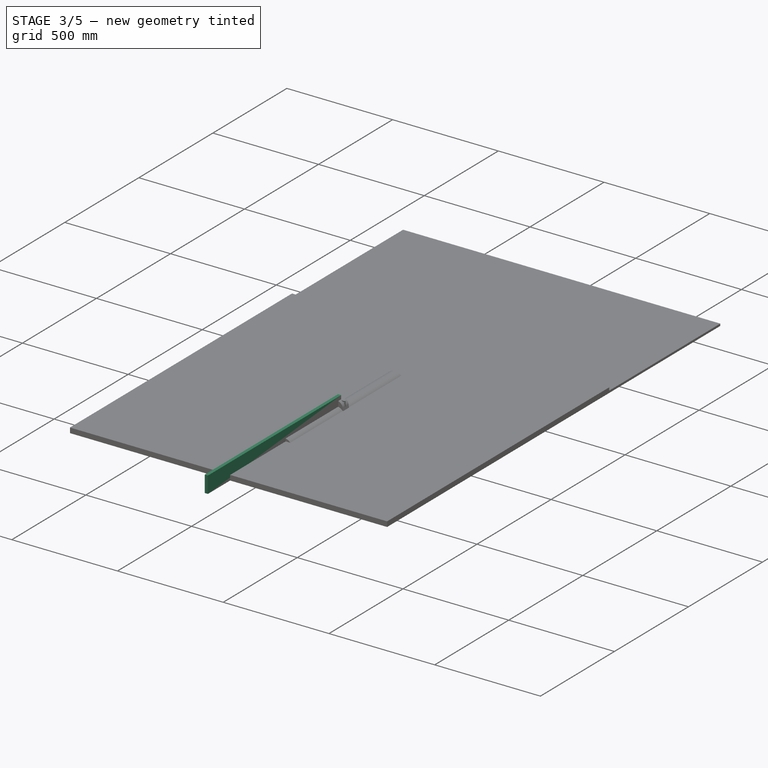
[diagram: stage 3 of 5 — iso view after this stage's code; geometry added in this stage tinted green]
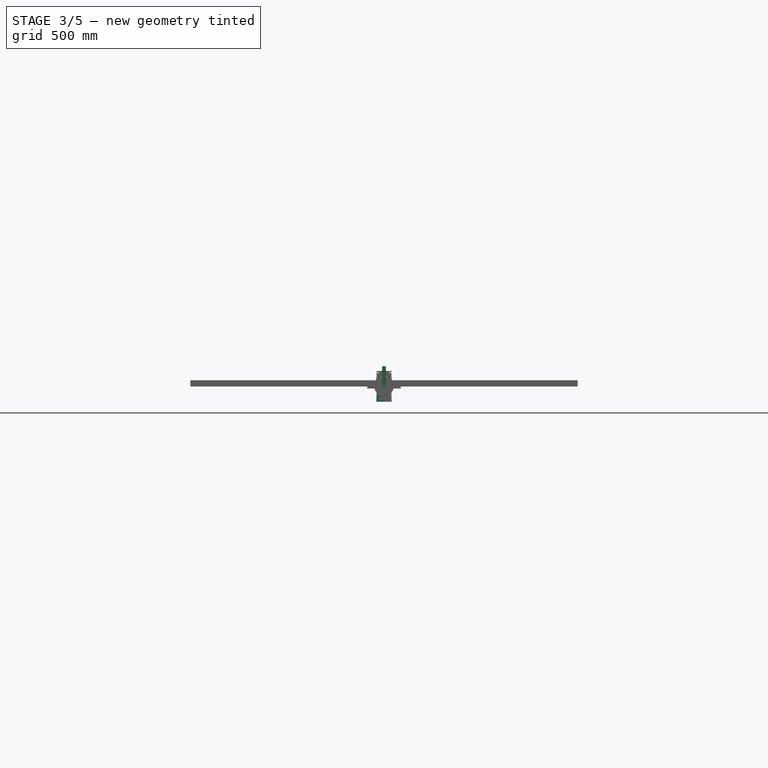
[diagram: stage 3 of 5 — front view after this stage's code; geometry added in this stage tinted green]
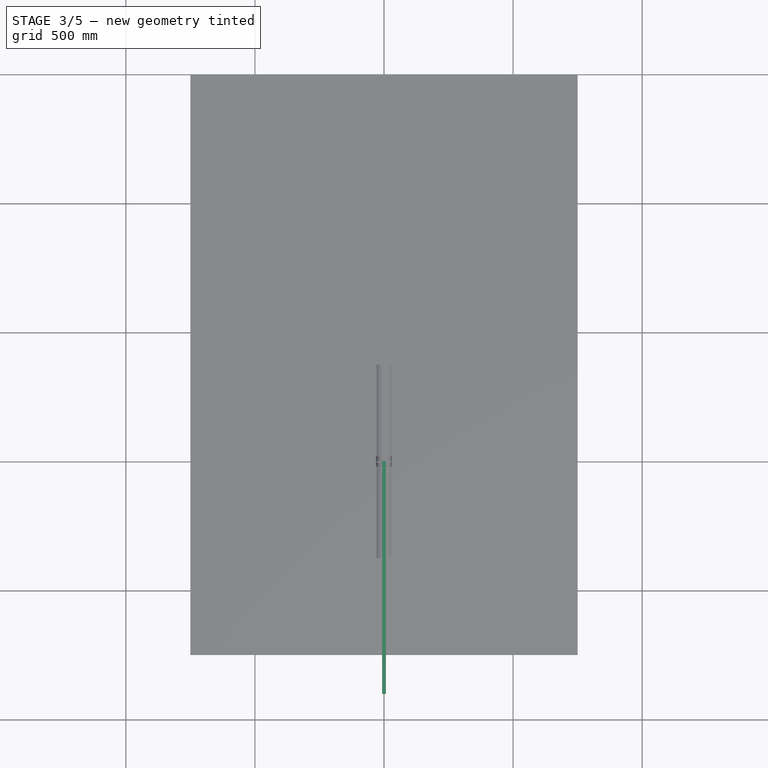
[diagram: stage 3 of 5 — top view after this stage's code; geometry added in this stage tinted green]
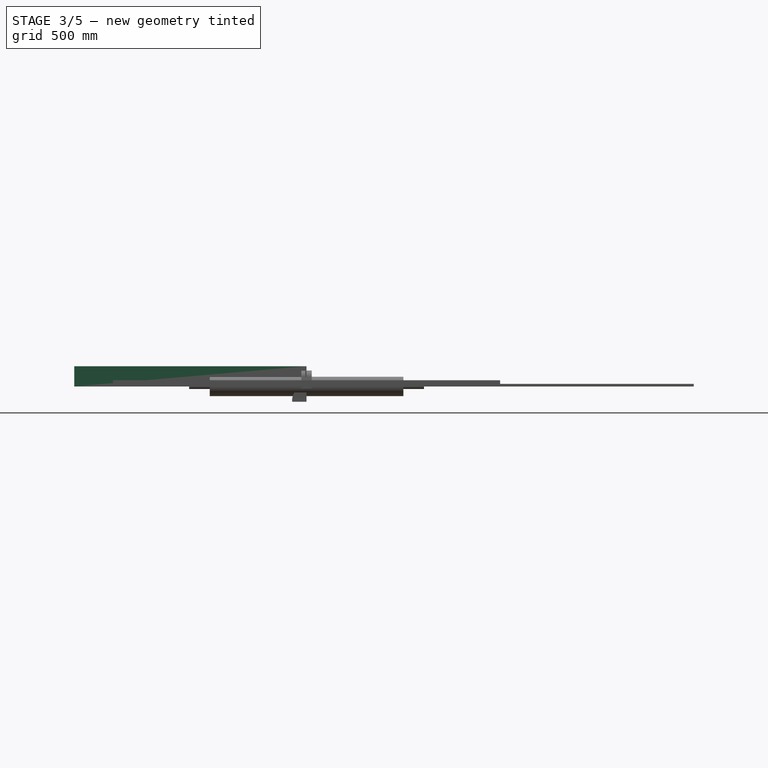
[diagram: stage 3 of 5 — right view after this stage's code; geometry added in this stage tinted green]
FEATURE [PartDesign::Body] Body  label="bearing_fixture_body"
  Group = -> [Sketch,Pad,Sketch001,Pocket,Mirrored,Fillet]
  Origin = -> Origin
  Tip = -> Fillet
FEATURE [Sketcher::SketchObject] Sketch003
  FullyConstrained = true
  MapMode = 5
  Support = -> [XY_Plane001]
  expr: Constraints[11] = Sketch001.Constraints[11]
  expr: Constraints[12] = Sketch001.Constraints[12]
  expr: Constraints[14] = Sketch001.Constraints[14]
  expr: Constraints[26] = Sketch.Constraints.width_x2
  expr: Constraints[27] = Pad.Length
  sketch-geometry (12):
    g0: ArcOfCircle CenterX=45 CenterY=0 CenterZ=0 NormalX=0 NormalY=0 NormalZ=1 AngleXU=0 Radius=5 StartAngle=1.5708 EndAngle=4.71239
    g1: ArcOfCircle CenterX=50 CenterY=0 CenterZ=0 NormalX=0 NormalY=0 NormalZ=1 AngleXU=0 Radius=5 StartAngle=4.71239 EndAngle=7.85398
    g2: LineSegment StartX=45 StartY=-5 StartZ=0 EndX=50 EndY=-5 EndZ=0
    g3: LineSegment StartX=50 StartY=5 StartZ=0 EndX=45 EndY=5 EndZ=0
    g4: GeomPoint X=40 Y=0 Z=0
    g5: GeomPoint X=55 Y=0 Z=0
    g6: GeomPoint X=47.5 Y=0 Z=0
    g7: LineSegment StartX=65 StartY=-20 StartZ=0 EndX=65 EndY=20 EndZ=0
    g8: LineSegment StartX=65 StartY=20 StartZ=0 EndX=0 EndY=20 EndZ=0
    g9: LineSegment StartX=0 StartY=20 StartZ=0 EndX=0 EndY=-20 EndZ=0
    g10: LineSegment StartX=0 StartY=-20 StartZ=0 EndX=65 EndY=-20 EndZ=0
    g11: GeomPoint X=32.5 Y=0 Z=0
  constraints (28):
    c: Tangent(g0,g2) = -1.5708
    c: Tangent(g2,g1) = -1.5708
    c: Tangent(g1,g3) = -1.5708
    c: Tangent(g3,g0) = -1.5708
    c: Equal(g0,g1)
    c: PointOnObject(g0,g-1)
    c: PointOnObject(g1,g-1)
    c: PointOnObject(g4,g0)
    c: PointOnObject(g5,g1)
    c: PointOnObject(g5,g-1)
    c: PointOnObject(g4,g-1)
    c: Diameter(g1) = 10
    c: DistanceX(g4,g5) = 15
    c: Symmetric(g0,g1,g6)
    c: DistanceX(g6) = 47.5
    c: Coincident(g7,g8)
    c: Coincident(g8,g9)
    c: Coincident(g9,g10)
    c: Coincident(g10,g7)
    c: Horizontal(g8)
    c: Horizontal(g10)
    c: Vertical(g7)
    c: Vertical(g9)
    c: Symmetric(g8,g7,g11)
    c: PointOnObject(g11,g-1)
    c: PointOnObject(g8,g-2)
    c: Distance(g-1,g7) = 65
    c: DistanceY(g9,g9) = 40
FEATURE [PartDesign::Pad] Pad001  label="insertion_pad"
  Direction = (0,0,1)
  Length = 8
  Length2 = 10
  Profile = -> Sketch003
  ReferenceAxis = -> Sketch003 [N_Axis]
  Reversed = true
  Type = 0
FEATURE [PartDesign::Mirrored] Mirrored001
  BaseFeature = -> Pad001
  MirrorPlane = -> Sketch003 [V_Axis]
  Originals = -> [Pad001]
FEATURE [PartDesign::Body] Body001  label="insertion_body"
  Group = -> [Sketch003,Pad001,Mirrored001]
  Origin = -> Origin001
  Tip = -> Mirrored001
FEATURE [PartDesign::Body] Body002  label="roll_body"
  Origin = -> Origin002
FEATURE [Sketcher::SketchObject] Sketch004  label="roll_sketch"
  FullyConstrained = true
  MapMode = 5
  Support = -> [XY_Plane019]
  sketch-geometry (6):
    g0: LineSegment StartX=0 StartY=455 StartZ=0 EndX=10 EndY=455 EndZ=0
    g1: LineSegment StartX=10 StartY=455 StartZ=0 EndX=10 EndY=375 EndZ=0
    g2: LineSegment StartX=10 StartY=375 StartZ=0 EndX=37.5 EndY=375 EndZ=0
    g3: LineSegment StartX=37.5 StartY=375 StartZ=0 EndX=37.5 EndY=0 EndZ=0
    g4: LineSegment StartX=37.5 StartY=0 StartZ=0 EndX=0 EndY=0 EndZ=0
    g5: LineSegment StartX=0 StartY=0 StartZ=0 EndX=0 EndY=455 EndZ=0
  constraints (17):
    c: PointOnObject(g0,g-2)
    c: Horizontal(g0)
    c: Coincident(g0,g1)
    c: Vertical(g1)
    c: Coincident(g1,g2)
    c: Horizontal(g2)
    c: Coincident(g2,g3)
    c: PointOnObject(g3,g-1)
    c: Vertical(g3)
    c: Coincident(g3,g4)
    c: Coincident(g4,g-1)
    c: Coincident(g4,g5)
    c: Coincident(g5,g0)
    c: Distance(g4) = 37.5  'r'
    c: Distance(g3) = 375  'length'
    c: Distance(g0) = 10
    c: Distance(g5) = 455  'total_length'
FEATURE [PartDesign::Revolution] Revolution
  Angle = 360
  Axis = (0,1,0)
  Base = (0,0,0)
  Profile = -> Sketch004
  ReferenceAxis = -> Sketch004 [V_Axis]
  Reversed = true
FEATURE [PartDesign::Mirrored] Mirrored002
  MirrorPlane = -> Sketch004 [H_Axis]
  Originals = -> [Revolution]
FEATURE [Sketcher::SketchObject] Sketch005  label="plywood_sketch"
  FullyConstrained = true
  MapMode = 5
  Support = -> [XY_Plane003]
  sketch-geometry (5):
    g0: LineSegment StartX=-750 StartY=-750 StartZ=0 EndX=-750 EndY=750 EndZ=0
    g1: LineSegment StartX=-750 StartY=750 StartZ=0 EndX=750 EndY=750 EndZ=0
    g2: LineSegment StartX=750 StartY=750 StartZ=0 EndX=750 EndY=-750 EndZ=0
    g3: LineSegment StartX=750 StartY=-750 StartZ=0 EndX=-750 EndY=-750 EndZ=0
    g4: GeomPoint X=0 Y=-4.8e-15 Z=0
  constraints (12):
    c: Coincident(g0,g1)
    c: Coincident(g1,g2)
    c: Coincident(g2,g3)
    c: Coincident(g3,g0)
    c: Horizontal(g1)
    c: Horizontal(g3)
    c: Vertical(g0)
    c: Vertical(g2)
    c: Symmetric(g1,g0,g4)
    c: Coincident(g4,g-1)
    c: Distance(g3) = 1500  'width'
    c: DistanceY(g0,g0) = 1500  'length'
FEATURE [PartDesign::Pad] Pad002  label="plywood_pad"
  Direction = (0,0,1)
  Length = 24
  Length2 = 10
  Profile = -> Sketch005
  ReferenceAxis = -> Sketch005 [N_Axis]
  Type = 0
FEATURE [PartDesign::Body] Body003  label="plywood_body"
  Group = -> [Sketch005,Pad002]
  Origin = -> Origin003
  Tip = -> Pad002
FEATURE [PartDesign::CoordinateSystem] LCS_0  label="bottom"
  AttacherType = Attacher::AttachEngine3D
  AttachmentOffset = pos=(0,0,-8) rot=(0,0,1;0rad)
  MapMode = 2
  Placement = pos=(0,0,-8) rot=(0,0,1;0rad)
  Support = -> [X_Axis004]
  expr: .AttachmentOffset.Base.z = -<<insertion_pad>>.Length
FEATURE [PartDesign::CoordinateSystem] LCS_0001  label="center"
  AttacherType = Attacher::AttachEngine3D
  MapMode = 2
  Support = -> [X_Axis005]
FEATURE [PartDesign::CoordinateSystem] LCS_0002  label="center001"
  AttacherType = Attacher::AttachEngine3D
  MapMode = 2
  Support = -> [X_Axis006]
FEATURE [PartDesign::CoordinateSystem] LCS_Origin
  AttacherType = Attacher::AttachEngine3D
  MapMode = 2
  Support = -> [X_Axis007]
FEATURE [App::DocumentObjectGroup] Constraints
FEATURE [App::FeaturePython] Variables  # WARN: FeaturePython — macro-defined, semantics opaque (R4)
  Type = App::PropertyContainer
FEATURE [App::DocumentObjectGroup] Configurations
FEATURE [PartDesign::CoordinateSystem] bearing_hole_front
  AttacherType = Attacher::AttachEngine3D
  AttachmentOffset = pos=(0,0,0) rot=(0,1,0;3.14159rad)
  MapMode = 11
  Placement = pos=(0,20,33) rot=(0,0.707107,0.707107;3.14159rad)
  Support = -> [Fillet]
FEATURE [PartDesign::CoordinateSystem] bearing_hole_back
  AttacherType = Attacher::AttachEngine3D
  MapMode = 11
  Placement = pos=(0,-20,33) rot=(0,0.707107,0.707107;3.14159rad)
  Support = -> [Fillet]
FEATURE [App::Part] bearing
  Group = -> [LCS_0,Body,Body001,bearing_hole_front,bearing_hole_back]
  Origin = -> Origin004
FEATURE [PartDesign::CoordinateSystem] roll_axis
  AttacherType = Attacher::AttachEngine3D
  MapMode = 11
  Placement = pos=(0,375,0) rot=(0.57735,-0.57735,0.57735;2.0944rad)
  Support = -> [Mirrored002]
FEATURE [App::Link] plywood001
  AssemblyType = Part::Link
  AttachedBy = #shape_center
  AttachedTo = Parent Assembly#LCS_Origin
  AttachmentOffset = pos=(0,0,158) rot=(0,1,0;3.14159rad)
  LinkPlacement = pos=(-2.9e-15,0,182) rot=(0,1,0;3.14159rad)
  LinkedObject = -> plywood
  Placement = pos=(-2.9e-15,0,182) rot=(0,1,0;3.14159rad)
  SolverId = Asm4EE
  expr: .AttachmentOffset.Base.z = (<<bearing_hole_front>>.Placement.Base.z - <<bottom>>.Placement.Base.z + Sketch004.Constraints.r) * 2 + 1mm
  expr: Placement = LCS_Origin.Placement * AttachmentOffset * shape_center.Placement ^ -1
FEATURE [PartDesign::CoordinateSystem] shape_center
  AttacherType = Attacher::AttachEngine3D
  AttachmentOffset = pos=(0,0,24) rot=(0,0,1;0rad)
  MapMode = 2
  Placement = pos=(0,0,24) rot=(0,0,1;0rad)
  Support = -> [XY_Plane006]
  expr: .AttachmentOffset.Base.z = Pad002.Length
FEATURE [App::Part] plywood
  Group = -> [LCS_0002,Body003,shape_center]
  Origin = -> Origin006
FEATURE [App::Link] bearing001
  AssemblyType = Part::Link
  AttachedBy = #LCS_0
  AttachedTo = plywood001#shape_center
  AttachmentOffset = pos=(0,397,0) rot=(0,0,1;0rad)
  LinkPlacement = pos=(1e-15,397,150) rot=(0,1,0;3.14159rad)
  LinkedObject = -> bearing
  Placement = pos=(1e-15,397,150) rot=(0,1,0;3.14159rad)
  SolverId = Asm4EE
  expr: .AttachmentOffset.Base.y = Sketch004.Constraints.length + <<bearing_fixture_pad>>.Length / 2 + 2mm
  expr: Placement = plywood001.Placement * shape_center.Placement * AttachmentOffset * LCS_0.Placement ^ -1
FEATURE [App::Link] roll001
  AssemblyType = Part::Link
  AttachedBy = #roll_axis
  AttachedTo = bearing001#bearing_hole_front
  AttachmentOffset = pos=(0,0,-2) rot=(0,1,0;3.14159rad)
  LinkPlacement = pos=(1.255e-13,40,117) rot=(0,-1,0;1.5708rad)
  LinkedObject = -> roll
  Placement = pos=(1.255e-13,40,117) rot=(0,-1,0;1.5708rad)
  SolverId = Asm4EE
  expr: .AttachmentOffset.Base.z = -(bearing001.AttachmentOffset.Base.y - (Sketch004.Constraints.length + <<bearing_fixture_pad>>.Length / 2))
  expr: Placement = bearing001.Placement * bearing_hole_front.Placement * AttachmentOffset * roll_axis.Placement ^ -1
FEATURE [App::Link] bearing002
  AssemblyType = Part::Link
  AttachedBy = #bearing_hole_front
  AttachedTo = roll001#roll_axis_back
  AttachmentOffset = pos=(0,0,2) rot=(0,0,1;0rad)
  LinkPlacement = pos=(2.696e-13,-317,150) rot=(1,0,0;3.14159rad)
  LinkedObject = -> bearing
  Placement = pos=(2.696e-13,-317,150) rot=(1,0,0;3.14159rad)
  SolverId = Asm4EE
  expr: Placement = roll001.Placement * roll_axis_back.Placement * AttachmentOffset * bearing_hole_front.Placement ^ -1
FEATURE [PartDesign::CoordinateSystem] roll_axis_back
  AttacherType = Attacher::AttachEngine3D
  MapMode = 11
  Placement = pos=(0,-375,0) rot=(0.57735,-0.57735,0.57735;2.0944rad)
  Support = -> [Mirrored002]
FEATURE [App::Part] roll
  Group = -> [LCS_0001,roll_axis,Sketch004,Mirrored002,roll_axis_back,Revolution]
  Origin = -> Origin005
FEATURE [Part::Feature] Part__Feature  label="57HS56-2804A08-D21"
  Placement = pos=(0,37,0) rot=(0,0,-1;1.5708rad)
  shape: bbox 56 x 78.5 x 57 mm, 1908 faces, 69 solids (baked)
FEATURE [Part::Feature] Part__Feature001  label="GHR20"
  Placement = pos=(0,0,0) rot=(1,0,0;1.5708rad)
  shape: bbox 20 x 500 x 17.5 mm, 153 faces (baked)
FEATURE [Part::Feature] Part__Feature002  label="HGH20CA"
  shape: bbox 44.01 x 25.41 x 78.01 mm, 462 faces (baked)
FEATURE [Sketcher::SketchObject] Sketch006
  AttachmentOffset = pos=(0,30,0) rot=(0,0,1;0rad)
  FullyConstrained = true
  MapMode = 5
  Placement = pos=(0,-6.7e-15,30) rot=(1,0,0;1.5708rad)
  Support = -> [XZ_Plane009]
  expr: .AttachmentOffset.Base.y = .Constraints.height
  sketch-geometry (8):
    g0: ArcOfCircle CenterX=0 CenterY=0 CenterZ=0 NormalX=0 NormalY=0 NormalZ=1 AngleXU=0 Radius=19.5 StartAngle=0 EndAngle=1.5708
    g1: LineSegment StartX=28.75 StartY=30 StartZ=0 EndX=28.75 EndY=0 EndZ=0
    g2: LineSegment StartX=19.5 StartY=0 StartZ=0 EndX=28.75 EndY=0 EndZ=0
    g3: LineSegment StartX=23.5 StartY=23.5 StartZ=0 EndX=0 EndY=23.5 EndZ=0
    g4: LineSegment StartX=23.5 StartY=23.5 StartZ=0 EndX=23.5 EndY=0 EndZ=0
    g5: Circle CenterX=23.5 CenterY=23.5 CenterZ=0 NormalX=0 NormalY=0 NormalZ=1 AngleXU=0 Radius=2.75
    g6: LineSegment StartX=28.75 StartY=30 StartZ=0 EndX=0 EndY=30 EndZ=0
    g7: LineSegment StartX=1.2e-15 StartY=19.5 StartZ=0 EndX=0 EndY=30 EndZ=0
  constraints (24):
    c: Coincident(g0,g-1)
    c: PointOnObject(g0,g-1)
    c: PointOnObject(g1,g-1)
    c: Vertical(g1)
    c: Coincident(g2,g0)
    c: Coincident(g2,g1)
    c: PointOnObject(g3,g-2)
    c: Horizontal(g3)
    c: PointOnObject(g4,g-1)
    c: Vertical(g4)
    c: Equal(g4,g3)
    c: DistanceX(g3,g3) = 23.5
    c: Diameter(g0) = 39
    c: DistanceY(g1) = 30  'height'
    c: Coincident(g5,g3)
    c: Coincident(g5,g4)
    c: PointOnObject(g0,g-2)
    c: Coincident(g6,g1)
    c: PointOnObject(g6,g-2)
    c: Horizontal(g6)
    c: Coincident(g7,g0)
    c: Coincident(g7,g6)
    c: Distance(g6) = 28.75  'width'
    c: Diameter(g5) = 5.5
FEATURE [PartDesign::Pad] Pad003
  Direction = (0,-1,-2e-16)
  Length = 5
  Length2 = 10
  Placement = pos=(0,0,0) rot=(1,0,0;1.5708rad)
  Profile = -> Sketch006
  ReferenceAxis = -> Sketch006 [N_Axis]
  Type = 0
FEATURE [PartDesign::Plane] DatumPlane
  AttachmentOffset = pos=(0,0,0) rot=(1,0,0;0.785398rad)
  Length = 86.9918
  MapMode = 5
  Placement = pos=(0,0,0) rot=(1,0,0;0.785398rad)
  ResizeMode = 0
  Support = -> [XY_Plane009]
  Width = 160.206
FEATURE [PartDesign::Mirrored] Mirrored003
  MirrorPlane = -> Sketch006 [V_Axis]
  Placement = pos=(0,0,0) rot=(1,0,0;1.5708rad)
FEATURE [PartDesign::Mirrored] Mirrored004
  MirrorPlane = -> Sketch006 [H_Axis]
  Placement = pos=(0,0,0) rot=(1,0,0;1.5708rad)
FEATURE [PartDesign::MultiTransform] MultiTransform
  BaseFeature = -> Pad003
  Originals = -> [Pad003]
  Placement = pos=(0,0,0) rot=(1,0,0;1.5708rad)
  Transformations = -> [Mirrored003,Mirrored004]
FEATURE [Sketcher::SketchObject] Sketch007
  AttachmentOffset = pos=(0,-29,0) rot=(0,0,1;0rad)
  FullyConstrained = true
  MapMode = 5
  Placement = pos=(0,-29,0) rot=(0,0,1;0rad)
  Support = -> [XY_Plane009]
  expr: .AttachmentOffset.Base.y = -.Constraints.length - 5mm
  expr: .Constraints.width = Sketch006.Constraints.width
  sketch-geometry (7):
    g0: Circle CenterX=18 CenterY=16 CenterZ=0 NormalX=0 NormalY=0 NormalZ=1 AngleXU=0 Radius=2.5
    g1: LineSegment StartX=0 StartY=0 StartZ=0 EndX=28.75 EndY=0 EndZ=0
    g2: LineSegment StartX=28.75 StartY=0 StartZ=0 EndX=28.75 EndY=24 EndZ=0
    g3: LineSegment StartX=28.75 StartY=24 StartZ=0 EndX=0 EndY=24 EndZ=0
    g4: LineSegment StartX=0 StartY=24 StartZ=0 EndX=0 EndY=0 EndZ=0
    g5: LineSegment StartX=18 StartY=16 StartZ=0 EndX=18 EndY=24 EndZ=0
    g6: LineSegment StartX=18 StartY=16 StartZ=0 EndX=28.75 EndY=16 EndZ=0
  constraints (20):
    c: DistanceX(g0) = 18
    c: DistanceY(g0) = 16
    c: Diameter(g0) = 5
    c: Coincident(g1,g2)
    c: Coincident(g2,g3)
    c: Coincident(g3,g4)
    c: Coincident(g4,g1)
    c: Horizontal(g1)
    c: Horizontal(g3)
    c: Vertical(g2)
    c: Vertical(g4)
    c: Coincident(g1,g-1)
    c: Coincident(g5,g0)
    c: PointOnObject(g5,g3)
    c: Vertical(g5)
    c: Coincident(g6,g0)
    c: PointOnObject(g6,g2)
    c: Horizontal(g6)
    c: Distance(g2) = 24  'length'
    c: DistanceX(g2) = 28.75  'width'
FEATURE [PartDesign::AdditiveBox] Box
  AttacherType = Attacher::AttachEngine3D
  AttachmentOffset = pos=(0,-5,-5) rot=(0,0,1;0rad)
  BaseFeature = -> MultiTransform
  Height = 5
  Length = 32.75
  MapMode = 5
  Placement = pos=(0,-5,-5) rot=(0,0,1;0rad)
  Support = -> [XY_Plane008]
  Width = 5
FEATURE [PartDesign::Mirrored] Mirrored005
  BaseFeature = -> Box
  MirrorPlane = -> YZ_Plane009
  Originals = -> [Box]
  Placement = pos=(0,-5,-5) rot=(0,0,1;0rad)
FEATURE [PartDesign::CoordinateSystem] Local_CS  label="fixture_plane"
  AttacherType = Attacher::AttachEngine3D
  AttachmentOffset = pos=(0,0,0) rot=(-1,0,0;1.5708rad)
  MapMode = 5
  Placement = pos=(0,0,0) rot=(-1,0,0;1.5708rad)
  Support = -> [XY_Plane012]
FEATURE [PartDesign::Body] _7ToPlywood  label="57ToPlywood"
  Group = -> [LCS_0004,Sketch010,Sketch011,Pad007,MultiTransform002,Mirrored009,Mirrored010,Sketch_1,Pad008,Pad009,Mirrored011,Sketch012,Pad010,Mirrored012,Local_CS]
  Origin = -> Origin012
  Tip = -> Mirrored012
FEATURE [App::Link] plywood002
  AssemblyType = Part::Link
  AttachedBy = #shape_center
  AttachedTo = Parent Assembly#LCS_Origin
  LinkPlacement = pos=(0,0,-24) rot=(0,0,1;0rad)
  LinkedObject = -> plywood
  Placement = pos=(0,0,-24) rot=(0,0,1;0rad)
  SolverId = Asm4EE
  expr: Placement = LCS_Origin.Placement * AttachmentOffset * shape_center.Placement ^ -1
FEATURE [App::Link] bearing005
  AssemblyType = Part::Link
  AttachedBy = #LCS_0
  AttachedTo = plywood002#shape_center
  AttachmentOffset = pos=(0,-395,0) rot=(0,0,1;0rad)
  LinkPlacement = pos=(0,-395,8) rot=(0,0,1;0rad)
  LinkedObject = -> bearing
  Placement = pos=(0,-395,8) rot=(0,0,1;0rad)
  SolverId = Asm4EE
  expr: .AttachmentOffset.Base.y = -Sketch004.Constraints.length - <<bearing_fixture_pad>>.Length / 2
  expr: Placement = plywood002.Placement * shape_center.Placement * AttachmentOffset * LCS_0.Placement ^ -1
FEATURE [App::Link] roll002
  AssemblyType = Part::Link
  AttachedBy = #roll_axis
  AttachedTo = bearing005#bearing_hole_back
  LinkPlacement = pos=(2.84e-14,-40,41) rot=(-0.707107,0,0.707107;3.14159rad)
  LinkedObject = -> roll
  Placement = pos=(2.84e-14,-40,41) rot=(-0.707107,0,0.707107;3.14159rad)
  SolverId = Asm4EE
  expr: Placement = bearing005.Placement * bearing_hole_back.Placement * AttachmentOffset * roll_axis.Placement ^ -1
FEATURE [App::Link] bearing006
  AssemblyType = Part::Link
  AttachedBy = #bearing_hole_front
  AttachedTo = roll002#roll_axis_back
  LinkPlacement = pos=(6.77e-14,315,8) rot=(0,0,1;0rad)
  LinkedObject = -> bearing
  Placement = pos=(6.77e-14,315,8) rot=(0,0,1;0rad)
  SolverId = Asm4EE
  expr: Placement = roll002.Placement * roll_axis_back.Placement * AttachmentOffset * bearing_hole_front.Placement ^ -1
FEATURE [App::Link] _7BLY_0730NBB
  AttachedBy = #fixture_plane001
  AttachedTo = bearingTo57BLY#BLY_fixture
  AttachmentOffset = pos=(0,0,0) rot=(1,0,0;3.14159rad)
  LinkPlacement = pos=(125,-1.3e-14,119.5) rot=(0.707107,0,0.707107;3.14159rad)
  LinkedObject = -> <external 57BLY-0730NBB.FCStd>#Model
  Placement = pos=(125,-1.3e-14,119.5) rot=(0.707107,0,0.707107;3.14159rad)
  SolverId = Asm4EE
  expr: Placement = bearingTo57BLY.Placement * BLY_fixture.Placement * AttachmentOffset * _7BLY_0730NBB#fixture_plane001.Placement ^ -1
FEATURE [PartDesign::Body] Mirrored002Body
  Origin = -> Origin013
FEATURE [App::Link] rs_100_r
  AssemblyType = Part::Link
  AttachedBy = #Local_CS001
  AttachedTo = _7BLY_0730NBB#LCS_1
  AttachmentOffset = pos=(0,0,0) rot=(0.57735,-0.57735,0.57735;4.18879rad)
  LinkPlacement = pos=(101.3,-3.4e-15,119.5) rot=(0,0,1;4.71239rad)
  LinkedObject = -> <external RS-100_R.FCStd>#Body
  Placement = pos=(101.3,-3.4e-15,119.5) rot=(0,0,1;4.71239rad)
  SolverId = Asm4EE
  expr: Placement = _7BLY_0730NBB.Placement * _7BLY_0730NBB#LCS_1.Placement * AttachmentOffset * RS_100_R#Local_CS001.Placement ^ -1
FEATURE [PartDesign::CoordinateSystem] LCS_0005  label="end"
  AttacherType = Attacher::AttachEngine3D
  MapMode = 2
  Support = -> [X_Axis014]
FEATURE [Sketcher::SketchObject] Sketch_2
  FullyConstrained = true
  MapMode = 5
  Placement = pos=(0,0,0) rot=(1,0,0;1.5708rad)
  Support = -> [XZ_Plane014]
  sketch-geometry (5):
    g0: LineSegment StartX=-7.5 StartY=78.5 StartZ=0 EndX=-7.5 EndY=0 EndZ=0
    g1: LineSegment StartX=-7.5 StartY=0 StartZ=0 EndX=7.5 EndY=0 EndZ=0
    g2: LineSegment StartX=7.5 StartY=0 StartZ=0 EndX=7.5 EndY=78.5 EndZ=0
    g3: LineSegment StartX=7.5 StartY=78.5 StartZ=0 EndX=-7.5 EndY=78.5 EndZ=0
    g4: GeomPoint X=0 Y=39.25 Z=0
  constraints (13):
    c: Coincident(g0,g1)
    c: Coincident(g1,g2)
    c: Coincident(g2,g3)
    c: Coincident(g3,g0)
    c: Horizontal(g1)
    c: Horizontal(g3)
    c: Vertical(g0)
    c: Vertical(g2)
    c: Symmetric(g1,g0,g4)
    c: PointOnObject(g4,g-2)
    c: PointOnObject(g1,g-1)
    c: Distance(g1) = 15
    c: Distance(g2) = 78.5
FEATURE [PartDesign::Pad] Pad011
  Direction = (0,-1,-2e-16)
  Length = 900
  Length2 = 10
  Placement = pos=(0,0,0) rot=(1,0,0;1.5708rad)
  Profile = -> Sketch_2
  ReferenceAxis = -> Sketch_2 [N_Axis]
  Type = 0
FEATURE [PartDesign::Mirrored] Mirrored013
  BaseFeature = -> Pad015
  MirrorPlane = -> Sketch013 [V_Axis]
  Originals = -> [Pad012,Pad013,Pad014,Pad015]
FEATURE [PartDesign::CoordinateSystem] plywood_end_top
  AttacherType = Attacher::AttachEngine3D
  AttachmentOffset = pos=(0,0,10) rot=(0,0,1;0rad)
  MapMode = 5
  Placement = pos=(0,0,10) rot=(0,0,1;0rad)
  Support = -> [XY_Plane020]
  expr: .AttachmentOffset.Base.z = Pad016.Length
FEATURE [PartDesign::Body] plywood_material_end
  Group = -> [LCS_0006,Sketch018,Pad016,plywood_end_top]
  Origin = -> Origin019
  Tip = -> Pad016
FEATURE [App::DocumentObjectGroup] Parts
  Group = -> [bearing,roll,plywood,Part,linear_bearing,Part001,_7ToPlywood,press_response_part,Body005,Revolution,plywood_material_end]
FEATURE [App::Link] plywood_material_end001
  AssemblyType = Part::Link
  AttachedBy = #plywood_end_top
  AttachedTo = plywood002#shape_center
  AttachmentOffset = pos=(106,0,78.5) rot=(0,0,1;4.71239rad)
  LinkPlacement = pos=(106,0,68.5) rot=(0,0,1;4.71239rad)
  LinkedObject = -> plywood_material_end
  Placement = pos=(106,0,68.5) rot=(0,0,1;4.71239rad)
  SolverId = Asm4EE
  expr: Placement = plywood002.Placement * shape_center.Placement * AttachmentOffset * plywood_end_top.Placement ^ -1
FEATURE [App::Part] Model
  AssemblyType = Part::Link
  Group = -> [LCS_Origin,Constraints,Variables,Configurations,plywood001,bearing001,roll001,bearing002,linear_bearing001,bearingTo57BLY,bearing003,Unnamed1,bearing004,GHR20,profile1030,profile_to_step_motor,profile_to_bearing,_7HS56_2804A08_D022,p08,_7ToPlywood001,plywood002,bearing005,roll002,bearing006,_7BLY_0730NBB,Mirrored002Body,rs_100_r,press_response_part001,bearing007,plywood_shield,Mirrored002Body002,+1 more]
  Origin = -> Origin007
  Type = Assembly

RESOLVED EXTERNAL PARTS (link-assembly join: the EXTERNAL_REF files above that resolve inside this repo's crawl, each included once):
---- part 57BLY-0730NBB.FCStd = doc fcstd_45d8179db589 ----
FCSTD DOCUMENT  (FreeCAD 0.20R29410 (Git))
Label: 57BLY-0730NBB
License: All rights reserved
LicenseURL: http://en.wikipedia.org/wiki/All_rights_reserved
objects: TechDraw::DrawViewDimension×11, PartDesign::CoordinateSystem×10, Sketcher::SketchObject×9, TechDraw::DrawProjGroupItem×4, PartDesign::Mirrored×3, PartDesign::Body×3, App::DocumentObjectGroup×3, PartDesign::Pad×2, PartDesign::Revolution×2, App::Link×2, App::Part×2, PartDesign::MultiTransform×1, PartDesign::Groove×1, PartDesign::Hole×1, Part::Feature×1, TechDraw::DrawSVGTemplate×1, App::FeaturePython×1, PartDesign::Pocket×1, TechDraw::DrawProjGroup×1, TechDraw::DrawViewSection×1, +1 more types
note: 41 computed .brp shape members not serialized (recipe doc carries the construction recipe); baked Part::Feature solids carry a one-line shape summary decoded from their .brp

FEATURE [Sketcher::SketchObject] Sketch
  FullyConstrained = true
  MapMode = 5
  Support = -> [XY_Plane]
  sketch-geometry (9):
    g0: LineSegment StartX=0 StartY=0 StartZ=0 EndX=28.25 EndY=0 EndZ=0
    g1: LineSegment StartX=28.25 StartY=0 StartZ=0 EndX=28.25 EndY=23.5386 EndZ=0
    g2: LineSegment StartX=23.5386 StartY=28.25 StartZ=0 EndX=0 EndY=28.25 EndZ=0
    g3: LineSegment StartX=0 StartY=28.25 StartZ=0 EndX=0 EndY=0 EndZ=0
    g4: ArcOfCircle CenterX=23.5386 CenterY=23.5386 CenterZ=0 NormalX=0 NormalY=0 NormalZ=1 AngleXU=0 Radius=4.71142 StartAngle=0 EndAngle=1.5708
    g5: GeomPoint X=28.25 Y=28.25 Z=0
    g6: Circle CenterX=23.5 CenterY=23.5 CenterZ=0 NormalX=0 NormalY=0 NormalZ=1 AngleXU=0 Radius=2.5
    g7: LineSegment StartX=0 StartY=0 StartZ=0 EndX=28.25 EndY=28.25 EndZ=0
    g8: GeomPoint X=26.8701 Y=26.8701 Z=0
  constraints (22):
    c: Coincident(g0,g1)
    c: Coincident(g2,g3)
    c: Coincident(g3,g0)
    c: Horizontal(g0)
    c: Horizontal(g2)
    c: Vertical(g1)
    c: Vertical(g3)
    c: Coincident(g0,g-1)
    c: Equal(g0,g3)
    c: PointOnObject(g5,g2)
    c: PointOnObject(g5,g1)
    c: Tangent(g2,g4) = -1.5708
    c: Tangent(g1,g4) = -1.5708
    c: Coincident(g7,g0)
    c: Coincident(g7,g5)
    c: PointOnObject(g6,g7)
    c: DistanceX(g6) = 23.5
    c: PointOnObject(g8,g4)
    c: PointOnObject(g8,g7)
    c: Distance(g0,g8) = 38
    c: DistanceX(g0) = 28.25  'width'
    c: Diameter(g6) = 5
FEATURE [PartDesign::Pad] Pad
  Direction = (0,0,1)
  Length = 4.7
  Length2 = 10
  Profile = -> Sketch
  ReferenceAxis = -> Sketch [N_Axis]
  Type = 0
FEATURE [PartDesign::Mirrored] Mirrored
  MirrorPlane = -> Sketch [V_Axis]
FEATURE [PartDesign::Mirrored] Mirrored001
  MirrorPlane = -> Sketch [H_Axis]
FEATURE [PartDesign::MultiTransform] MultiTransform
  BaseFeature = -> Pad
  Originals = -> [Pad]
  Transformations = -> [Mirrored,Mirrored001]
FEATURE [Sketcher::SketchObject] Sketch001
  FullyConstrained = true
  MapMode = 5
  Placement = pos=(0,0,0) rot=(1,0,0;1.5708rad)
  Support = -> [XZ_Plane]
  sketch-geometry (10):
    g0: LineSegment StartX=19 StartY=0 StartZ=0 EndX=28.25 EndY=0 EndZ=0
    g1: LineSegment StartX=28.25 StartY=0 StartZ=0 EndX=28.25 EndY=14.5 EndZ=0
    g2: LineSegment StartX=28.25 StartY=14.5 StartZ=0 EndX=27.5 EndY=14.5 EndZ=0
    g3: LineSegment StartX=27.5 StartY=14.5 StartZ=0 EndX=27.5 EndY=51 EndZ=0
    g4: LineSegment StartX=27.5 StartY=51 StartZ=0 EndX=28.25 EndY=51 EndZ=0
    g5: LineSegment StartX=28.25 StartY=51 StartZ=0 EndX=28.25 EndY=67 EndZ=0
    g6: LineSegment StartX=28.25 StartY=67 StartZ=0 EndX=0 EndY=67 EndZ=0
    g7: LineSegment StartX=0 StartY=67 StartZ=0 EndX=0 EndY=-1.5 EndZ=0
    g8: LineSegment StartX=19 StartY=0 StartZ=0 EndX=19 EndY=-1.5 EndZ=0
    g9: LineSegment StartX=19 StartY=-1.5 StartZ=0 EndX=0 EndY=-1.5 EndZ=0
  constraints (31):
    c: PointOnObject(g0,g-1)
    c: Coincident(g0,g1)
    c: Vertical(g1)
    c: Coincident(g1,g2)
    c: Horizontal(g2)
    c: Coincident(g2,g3)
    c: Vertical(g3)
    c: Coincident(g3,g4)
    c: Horizontal(g4)
    c: Coincident(g4,g5)
    c: Vertical(g5)
    c: Coincident(g5,g6)
    c: PointOnObject(g6,g-2)
    c: Horizontal(g6)
    c: Coincident(g6,g7)
    c: Distance(g1) = 14.5
    c: DistanceX(g2) = 27.5
    c: Distance(g3) = 36.5
    c: Vertical(g4,g1)
    c: Distance(g5) = 16
    c: Distance(g7) = 68.5  'total_height'
    c: Vertical(g8)
    c: Coincident(g9,g8)
    c: Horizontal(g9)
    c: DistanceX(g0) = 28.25
    c: Coincident(g0,g8)
    c: Distance(g9) = 19
    c: PointOnObject(g9,g-2)
    c: Coincident(g7,g9)
    c: DistanceY(g7,g-1) = 1.5  'bearing_height'
    c: Horizontal(g0)
FEATURE [PartDesign::Revolution] Revolution
  Angle = 360
  Axis = (0,-2e-16,1)
  Base = (0,0,0)
  BaseFeature = -> MultiTransform
  Profile = -> Sketch001
  ReferenceAxis = -> Sketch001 [V_Axis]
  Reversed = true
FEATURE [PartDesign::Body] Body
  Group = -> [Sketch,Pad,MultiTransform,Mirrored,Mirrored001,Sketch001,Revolution]
  Origin = -> Origin
  Tip = -> Revolution
FEATURE [Sketcher::SketchObject] Sketch002
  FullyConstrained = true
  MapMode = 5
  Support = -> [XY_Plane002]
  expr: .AttachmentOffset.Base.z = 0
  sketch-geometry (3):
    g0: LineSegment StartX=0 StartY=3.5 StartZ=0 EndX=1.93649 EndY=3.5 EndZ=0
    g1: ArcOfCircle CenterX=0 CenterY=0 CenterZ=0 NormalX=0 NormalY=0 NormalZ=1 AngleXU=0 Radius=4 StartAngle=4.71239 EndAngle=7.34862
    g2: LineSegment StartX=-7e-16 StartY=-4 StartZ=0 EndX=0 EndY=3.5 EndZ=0
  constraints (9):
    c: PointOnObject(g0,g-2)
    c: Horizontal(g0)
    c: Coincident(g1,g-1)
    c: PointOnObject(g1,g-2)
    c: Coincident(g1,g0)
    c: Coincident(g2,g1)
    c: Coincident(g2,g0)
    c: Distance(g2) = 7.5
    c: Diameter(g1) = 8
FEATURE [PartDesign::Pad] Pad001
  Direction = (0,0,1)
  Length = 21
  Length2 = 10
  Profile = -> Sketch002
  ReferenceAxis = -> Sketch002 [N_Axis]
  Reversed = true
  Type = 0
FEATURE [PartDesign::Mirrored] Mirrored002
  BaseFeature = -> Pad001
  MirrorPlane = -> Sketch002 [V_Axis]
  Originals = -> [Pad001]
FEATURE [Sketcher::SketchObject] Sketch003
  FullyConstrained = true
  MapMode = 5
  Placement = pos=(0,0,0) rot=(0.57735,0.57735,0.57735;2.0944rad)
  Support = -> [YZ_Plane002]
  expr: Constraints[8] = -Pad001.Length
  sketch-geometry (3):
    g0: LineSegment StartX=3.5 StartY=-21 StartZ=0 EndX=4 EndY=-20.5 EndZ=0
    g1: LineSegment StartX=4 StartY=-20.5 StartZ=0 EndX=4 EndY=-21 EndZ=0
    g2: LineSegment StartX=4 StartY=-21 StartZ=0 EndX=3.5 EndY=-21 EndZ=0
  constraints (9):
    c: Coincident(g0,g1)
    c: Vertical(g1)
    c: Coincident(g1,g2)
    c: Coincident(g2,g0)
    c: Horizontal(g2)
    c: DistanceX(g0) = 3.5
    c: DistanceX(g0) = 4
    c: Equal(g2,g1)
    c: DistanceY(g1) = -21
FEATURE [PartDesign::Groove] Groove
  Angle = 360
  Axis = (-2e-16,3e-16,1)
  Base = (0,0,0)
  BaseFeature = -> Mirrored002
  Profile = -> Sketch003
  ReferenceAxis = -> Sketch003 [V_Axis]
FEATURE [PartDesign::Body] Body001  label="axis"
  Group = -> [Sketch002,Pad001,Mirrored002,Sketch003,Groove]
  Origin = -> Origin002
  Placement = pos=(0,0,-1.5) rot=(0,0,1;0rad)
  Tip = -> Groove
  expr: .Placement.Base.z = -Sketch001.Constraints.bearing_height
FEATURE [PartDesign::CoordinateSystem] fix_center
  AttacherType = Attacher::AttachEngine3D
  MapMode = 2
  Support = -> [XY_Plane001]
FEATURE [PartDesign::CoordinateSystem] LCS_0  label="end"
  AttacherType = Attacher::AttachEngine3D
  AttachmentOffset = pos=(0,0,-13) rot=(0.707107,-0.707107,0;3.14159rad)
  MapMode = 5
  Placement = pos=(0,0,-13) rot=(0.707107,-0.707107,0;3.14159rad)
  Support = -> [XY_Plane003]
  expr: .AttachmentOffset.Base.z = -Sketch005.Constraints.axis_fuxture_cyl_length
FEATURE [Sketcher::SketchObject] Sketch005
  FullyConstrained = true
  MapMode = 5
  Placement = pos=(0,0,0) rot=(1,0,0;1.5708rad)
  Support = -> [XZ_Plane003]
  sketch-geometry (12):
    g0: LineSegment StartX=0 StartY=22.5 StartZ=0 EndX=6 EndY=22.5 EndZ=0
    g1: LineSegment StartX=6 StartY=22.5 StartZ=0 EndX=6 EndY=5 EndZ=0
    g2: LineSegment StartX=6 StartY=5 StartZ=0 EndX=10.5 EndY=5 EndZ=0
    g3: LineSegment StartX=10.5 StartY=5 StartZ=0 EndX=10.5 EndY=3 EndZ=0
    g4: LineSegment StartX=10.5 StartY=3 StartZ=0 EndX=16 EndY=3 EndZ=0
    g5: LineSegment StartX=16 StartY=3 StartZ=0 EndX=16 EndY=0 EndZ=0
    g6: LineSegment StartX=16 StartY=0 StartZ=0 EndX=10.5 EndY=0 EndZ=0
    g7: LineSegment StartX=10.5 StartY=0 StartZ=0 EndX=10.5 EndY=-13 EndZ=0
    g8: LineSegment StartX=10.5 StartY=-13 StartZ=0 EndX=4 EndY=-13 EndZ=0
    g9: LineSegment StartX=4 StartY=-13 StartZ=0 EndX=4 EndY=3 EndZ=0
    g10: LineSegment StartX=4 StartY=3 StartZ=0 EndX=0 EndY=3 EndZ=0
    g11: LineSegment StartX=0 StartY=3 StartZ=0 EndX=0 EndY=22.5 EndZ=0
  constraints (37):
    c: Horizontal(g0)
    c: Coincident(g0,g1)
    c: Vertical(g1)
    c: Coincident(g1,g2)
    c: Horizontal(g2)
    c: Coincident(g2,g3)
    c: Vertical(g3)
    c: Coincident(g3,g4)
    c: Coincident(g4,g5)
    c: Vertical(g5)
    c: Coincident(g5,g6)
    c: Horizontal(g6)
    c: Coincident(g6,g7)
    c: Vertical(g7)
    c: Coincident(g7,g8)
    c: Horizontal(g8)
    c: Coincident(g8,g9)
    c: Vertical(g9)
    c: Horizontal(g4)
    c: DistanceX(g0) = 6
    c: DistanceX(g2) = 10.5
    c: DistanceX(g4) = 16
    c: DistanceX(g7) = 10.5
    c: DistanceX(g8) = 4
    c: DistanceY(g3,g3) = 2
    c: DistanceY(g3,g0) = 19.5
    c: DistanceY(g5,g5) = 3  'shield_length'
    c: Distance(g7,g6) = 13  'axis_fuxture_cyl_length'
    c: Horizontal(g-1,g6)
    c: DistanceY(g0) = 22.5  'shield_to_end'
    c: PointOnObject(g10,g-2)
    c: Horizontal(g10)
    c: Coincident(g11,g10)
    c: Vertical(g11)
    c: DistanceY(g8,g10) = 16  'axis_length'
    c: Coincident(g9,g10)
    c: Coincident(g11,g0)
FEATURE [PartDesign::Revolution] Revolution001
  Angle = 360
  Axis = (0,-2e-16,1)
  Base = (0,0,0)
  Placement = pos=(0,0,0) rot=(1,0,0;1.5708rad)
  Profile = -> Sketch005
  ReferenceAxis = -> Sketch005 [V_Axis]
  Reversed = true
FEATURE [Sketcher::SketchObject] Sketch006
  AttachmentOffset = pos=(0,-6,20) rot=(0,0,1;0rad)
  FullyConstrained = true
  MapMode = 5
  Placement = pos=(0,-20,-6) rot=(1,0,0;1.5708rad)
  Support = -> [XZ_Plane003]
  expr: .AttachmentOffset.Base.y = -Sketch005.Constraints.axis_fuxture_cyl_length + 7mm
  sketch-geometry (1):
    g0: Circle CenterX=0 CenterY=0 CenterZ=0 NormalX=0 NormalY=0 NormalZ=1 AngleXU=0 Radius=2
  constraints (2):
    c: Coincident(g0,g-1)
    c: Diameter(g0) = 4
FEATURE [PartDesign::Hole] Hole
  BaseFeature = -> Revolution001
  CustomThreadClearance = 0
  Depth = 117.943
  DepthType = 1
  Diameter = 4.2
  DrillForDepth = false
  DrillPoint = 1
  DrillPointAngle = 117
  HoleCutCountersinkAngle = 90
  HoleCutCustomValues = false
  HoleCutDepth = 0
  HoleCutDiameter = 6.1
  HoleCutType = 0
  ModelThread = false
  Placement = pos=(0,0,0) rot=(1,0,0;1.5708rad)
  Profile = -> Sketch006
  Tapered = true
  TaperedAngle = 90
  ThreadClass = 0
  ThreadDepth = 117.943
  ThreadDepthType = 0
  ThreadDirection = 0
  ThreadFit = 0
  ThreadSize = 13
  ThreadType = 1
  Threaded = true
  UseCustomThreadClearance = false
FEATURE [Part::Feature] Part__Feature  label="57HS56-2804A08-D21"
  Placement = pos=(0,0,-17) rot=(0,-1,0;1.5708rad)
  shape: bbox 57 x 56 x 78.5 mm, 1908 faces, 69 solids (baked)
FEATURE [Sketcher::SketchObject] Sketch010
  FullyConstrained = false
  MapMode = 5
  Placement = pos=(0,0,0) rot=(1,0,0;1.5708rad)
  Support = -> [XZ_Plane003]
  sketch-geometry (6):
    g0: LineSegment StartX=9.5 StartY=-0.0613249 StartZ=0 EndX=9.5 EndY=0 EndZ=0
    g1: LineSegment StartX=9.5 StartY=0 StartZ=0 EndX=9.5 EndY=0.0613249 EndZ=0
    g2: LineSegment StartX=9.5 StartY=0.0613249 StartZ=0 EndX=10 EndY=0.35 EndZ=0
    g3: LineSegment StartX=10 StartY=0.35 StartZ=0 EndX=10 EndY=0 EndZ=0
    g4: LineSegment StartX=10 StartY=0 StartZ=0 EndX=10 EndY=-0.35 EndZ=0
    g5: LineSegment StartX=10 StartY=-0.35 StartZ=0 EndX=9.5 EndY=-0.0613249 EndZ=0
  constraints (17):
    c: PointOnObject(g0,g-1)
    c: Vertical(g0)
    c: Coincident(g0,g1)
    c: Vertical(g1)
    c: Coincident(g1,g2)
    c: Coincident(g2,g3)
    c: PointOnObject(g3,g-1)
    c: Vertical(g3)
    c: Coincident(g3,g4)
    c: Vertical(g4)
    c: Coincident(g4,g5)
    c: Coincident(g5,g0)
    c: Equal(g0,g1)
    c: Equal(g4,g3)
    c: DistanceX(g3) = 10
    c: DistanceX(g0,g3) = 0.5
    c: Angle(g-1,g5) = 2.61799
FEATURE [Sketcher::SketchObject] Sketch011
  FullyConstrained = true
  MapMode = 5
  Support = -> [XY_Plane003]
  sketch-geometry (1):
    g0: Circle CenterX=0 CenterY=0 CenterZ=0 NormalX=0 NormalY=0 NormalZ=1 AngleXU=0 Radius=10
  constraints (2):
    c: Coincident(g0,g-1)
    c: Diameter(g0) = 20
FEATURE [TechDraw::DrawSVGTemplate] Template
  EditableTexts = Designed_by_Name=Designed by Name; Drawing_number=Drawing number; FC-Date=Date; FC-SC=Scale; FC-SH=Sheet; FC-Title=Title; Subtitle=Subtitle; Weight=Weight
  Height = 210
  Orientation = 1
  Width = 297
FEATURE [PartDesign::CoordinateSystem] LCS_Origin
  AttacherType = Attacher::AttachEngine3D
  MapMode = 2
  Support = -> [X_Axis005]
FEATURE [App::DocumentObjectGroup] Constraints
FEATURE [App::FeaturePython] Variables  # WARN: FeaturePython — macro-defined, semantics opaque (R4)
  Type = App::PropertyContainer
FEATURE [App::DocumentObjectGroup] Configurations
FEATURE [App::Link] _7BLY_0730NBB  label="57BLY-0730NBB001"
  AssemblyType = Part::Link
  AttachedBy = #fix_center
  AttachedTo = Parent Assembly#LCS_Origin
  LinkedObject = -> Part
  SolverId = Asm4EE
  expr: Placement = LCS_Origin.Placement * AttachmentOffset * fix_center.Placement ^ -1
FEATURE [PartDesign::CoordinateSystem] fixture_plane
  AttacherType = Attacher::AttachEngine3D
  AttachmentOffset = pos=(0,0,0) rot=(1,0,0;3.14159rad)
  MapMode = 5
  Placement = pos=(0,0,0) rot=(1,0,0;3.14159rad)
  Support = -> [XY_Plane001]
FEATURE [PartDesign::CoordinateSystem] axis_root
  AttacherType = Attacher::AttachEngine3D
  AttachmentOffset = pos=(0,0,-1.5) rot=(1,0,0;3.14159rad)
  MapMode = 5
  Placement = pos=(0,0,-1.5) rot=(1,0,0;3.14159rad)
  Support = -> [XY_Plane001]
  expr: .AttachmentOffset.Base.z = -Sketch001.Constraints.bearing_height
FEATURE [PartDesign::CoordinateSystem] axis_end
  AttacherType = Attacher::AttachEngine3D
  AttachmentOffset = pos=(0,0,21) rot=(0,0,1;0rad)
  MapMode = 2
  Placement = pos=(0,-2.6e-15,-22.5) rot=(1,0,0;3.14159rad)
  Support = -> [axis_root]
  expr: .AttachmentOffset.Base.z = Pad001.Length
FEATURE [App::Part] Part  label="57BLY-0730NBB"
  Group = -> [Body,Body001,fix_center,fixture_plane,axis_root,axis_end]
  Origin = -> Origin001
FEATURE [PartDesign::CoordinateSystem] Local_CS
  AttacherType = Attacher::AttachEngine3D
  AttachmentOffset = pos=(0,0,3) rot=(0,0,1;0rad)
  MapMode = 5
  Placement = pos=(0,0,3) rot=(0,0,1;0rad)
  Support = -> [XY_Plane003]
  expr: .AttachmentOffset.Base.z = Sketch005.Constraints.axis_length - Sketch005.Constraints.axis_fuxture_cyl_length
FEATURE [App::Link] cap001
  AssemblyType = Part::Link
  AttachedBy = #Local_CS
  AttachedTo = _7BLY_0730NBB#axis_end
  LinkPlacement = pos=(0,-2.2e-15,-19.5) rot=(1,0,0;3.14159rad)
  LinkedObject = -> cap
  Placement = pos=(0,-2.2e-15,-19.5) rot=(1,0,0;3.14159rad)
  SolverId = Asm4EE
  expr: Placement = _7BLY_0730NBB.Placement * axis_end.Placement * AttachmentOffset * Local_CS.Placement ^ -1
FEATURE [PartDesign::CoordinateSystem] fixture_plane001
  AttacherType = Attacher::AttachEngine3D
  MapMode = 5
  Placement = pos=(0,0,0) rot=(1,0,0;3.14159rad)
  Support = -> [fixture_plane]
FEATURE [PartDesign::CoordinateSystem] disk_fixture
  AttacherType = Attacher::AttachEngine3D
  AttachmentOffset = pos=(0,0,3) rot=(0,0,1;0rad)
  MapMode = 5
  Placement = pos=(0,0,3) rot=(0,0,1;0rad)
  Support = -> [XY_Plane003]
  expr: .AttachmentOffset.Base.z = Sketch005.Constraints.shield_length
FEATURE [PartDesign::CoordinateSystem] LCS_1
  AttacherType = Attacher::AttachEngine3D
  AttachmentOffset = pos=(0,-2.9e-15,-25.5) rot=(1,0,0;3.14159rad)
  MapMode = 5
  Placement = pos=(0,-2.9e-15,-22.5) rot=(1,0,0;3.14159rad)
  Support = -> [disk_fixture]
  expr: AttachmentOffset = cap001.Placement * disk_fixture.Placement * disk_fixture.Placement
FEATURE [App::Part] Model
  AssemblyType = Part::Link
  Group = -> [LCS_Origin,Constraints,Variables,Configurations,_7BLY_0730NBB,cap001,fixture_plane001,LCS_1]
  Origin = -> Origin005
  Type = Assembly
FEATURE [Sketcher::SketchObject] Sketch012
  FullyConstrained = true
  MapMode = 5
  Placement = pos=(0,0,0) rot=(1,0,0;1.5708rad)
  Support = -> [XZ_Plane003]
  expr: .Constraints.axis_fuxture_cyl_length = Sketch005.Constraints.axis_fuxture_cyl_length
  expr: .Constraints.shield_length = Sketch005.Constraints.shield_length
  expr: Constraints[22] = Sketch005.Constraints[19]
  expr: Constraints[23] = Sketch005.Constraints[20]
  expr: Constraints[24] = Sketch005.Constraints[21]
  expr: Constraints[25] = Sketch005.Constraints[22]
  expr: Constraints[26] = Sketch005.Constraints[23]
  expr: Constraints[27] = Sketch005.Constraints[24]
  expr: Constraints[28] = Sketch005.Constraints[25]
  sketch-geometry (12):
    g0: Circle CenterX=0 CenterY=18 CenterZ=0 NormalX=0 NormalY=0 NormalZ=1 AngleXU=0 Radius=2
    g1: LineSegment StartX=4 StartY=22.5 StartZ=0 EndX=6 EndY=22.5 EndZ=0
    g2: LineSegment StartX=6 StartY=22.5 StartZ=0 EndX=6 EndY=5 EndZ=0
    g3: LineSegment StartX=6 StartY=5 StartZ=0 EndX=10.5 EndY=5 EndZ=0
    g4: LineSegment StartX=10.5 StartY=5 StartZ=0 EndX=10.5 EndY=3 EndZ=0
    g5: LineSegment StartX=10.5 StartY=3 StartZ=0 EndX=16 EndY=3 EndZ=0
    g6: LineSegment StartX=16 StartY=3 StartZ=0 EndX=16 EndY=0 EndZ=0
    g7: LineSegment StartX=16 StartY=0 StartZ=0 EndX=10.5 EndY=0 EndZ=0
    g8: LineSegment StartX=10.5 StartY=0 StartZ=0 EndX=10.5 EndY=-13 EndZ=0
    g9: LineSegment StartX=10.5 StartY=-13 StartZ=0 EndX=4 EndY=-13 EndZ=0
    g10: LineSegment StartX=4 StartY=-13 StartZ=0 EndX=4 EndY=22.5 EndZ=0
    g11: GeomPoint X=0 Y=16 Z=0
  constraints (36):
    c: PointOnObject(g0,g-2)
    c: Diameter(g0) = 4
    c: Horizontal(g1)
    c: Coincident(g1,g2)
    c: Vertical(g2)
    c: Coincident(g2,g3)
    c: Horizontal(g3)
    c: Coincident(g3,g4)
    c: Vertical(g4)
    c: Coincident(g4,g5)
    c: Coincident(g5,g6)
    c: Vertical(g6)
    c: Coincident(g6,g7)
    c: Horizontal(g7)
    c: Coincident(g7,g8)
    c: Vertical(g8)
    c: Coincident(g8,g9)
    c: Horizontal(g9)
    c: Coincident(g9,g10)
    c: Vertical(g10)
    c: Coincident(g1,g10)
    c: Horizontal(g5)
    c: DistanceX(g1) = 6
    c: DistanceX(g3) = 10.5
    c: DistanceX(g5) = 16
    c: DistanceX(g8) = 10.5
    c: DistanceX(g9) = 4
    c: DistanceY(g4,g4) = 2
    c: DistanceY(g4,g1) = 19.5
    c: DistanceY(g6,g6) = 3  'shield_length'
    c: Distance(g8,g7) = 13  'axis_fuxture_cyl_length'
    c: Horizontal(g-1,g7)
    c: DistanceY(g1) = 22.5  'shield_to_end'
    c: PointOnObject(g11,g-2)
    c: PointOnObject(g11,g0)
    c: DistanceY(g2,g11) = 11
FEATURE [PartDesign::Pocket] Pocket
  BaseFeature = -> Hole
  Direction = (0,1,2e-16)
  Length = 5
  Length2 = 5
  Midplane = true
  Placement = pos=(0,0,0) rot=(1,0,0;1.5708rad)
  Profile = -> Sketch012
  ReferenceAxis = -> Sketch012 [N_Axis]
  Type = 1
FEATURE [PartDesign::Body] cap
  Group = -> [LCS_0,Sketch005,Revolution001,Sketch006,Hole,Sketch010,Sketch011,Local_CS,disk_fixture,Sketch012,Pocket]
  Origin = -> Origin003
  Tip = -> Pocket
FEATURE [TechDraw::DrawProjGroupItem] ProjItem  label="Front"
  CoarseView = false
  Direction = (0,-1,0)
  Focus = 100
  HardHidden = false
  IsoCount = 0
  IsoHidden = false
  IsoVisible = false
  LockPosition = true
  Perspective = false
  Rotation = 0
  RotationVector = (1,0,0)
  ScaleType = 2
  SeamHidden = false
  SeamVisible = true
  SmoothHidden = false
  SmoothVisible = true
  Source = -> [cap]
  Type = 0
  X = 0
  XDirection = (1,0,0)
  Y = 0
FEATURE [TechDraw::DrawProjGroupItem] ProjItem001  label="Bottom"
  CoarseView = false
  Direction = (0,0,-1)
  Focus = 100
  HardHidden = false
  IsoCount = 0
  IsoHidden = false
  IsoVisible = false
  LockPosition = false
  Perspective = false
  Rotation = 0
  RotationVector = (1,0,0)
  ScaleType = 2
  SeamHidden = false
  SeamVisible = true
  SmoothHidden = false
  SmoothVisible = true
  Source = -> [cap]
  Type = 5
  X = 0
  XDirection = (1,0,0)
  Y = 50.5
FEATURE [TechDraw::DrawProjGroupItem] ProjItem002  label="Top"
  CoarseView = false
  Direction = (0,0,1)
  Focus = 100
  HardHidden = false
  IsoCount = 0
  IsoHidden = false
  IsoVisible = false
  LockPosition = false
  Perspective = false
  Rotation = 0
  RotationVector = (1,0,0)
  ScaleType = 2
  SeamHidden = false
  SeamVisible = true
  SmoothHidden = false
  SmoothVisible = true
  Source = -> [cap]
  Type = 4
  X = 0
  XDirection = (1,0,0)
  Y = -50.5
FEATURE [TechDraw::DrawProjGroupItem] ProjItem003  label="Left"
  CoarseView = false
  Direction = (-1,-1e-16,0)
  Focus = 100
  HardHidden = false
  IsoCount = 0
  IsoHidden = false
  IsoVisible = false
  LockPosition = false
  Perspective = false
  Rotation = 0
  RotationVector = (1,0,0)
  ScaleType = 2
  SeamHidden = false
  SeamVisible = true
  SmoothHidden = false
  SmoothVisible = true
  Source = -> [cap]
  Type = 1
  X = 47
  XDirection = (1e-16,-1,0)
  Y = 0
FEATURE [TechDraw::DrawProjGroup] ProjGroup
  Anchor = -> ProjItem
  AutoDistribute = true
  LockPosition = false
  ProjectionType = 0
  Rotation = 0
  ScaleType = 0
  Source = -> [cap]
  Views = -> [ProjItem,ProjItem001,ProjItem002,ProjItem003]
  X = 80
  Y = 130
  spacingX = 15
  spacingY = 15
FEATURE [App::DocumentObjectGroup] Parts
  Group = -> [Part,cap]
FEATURE [TechDraw::DrawViewDimension] Dimension
  AngleOverride = false
  Arbitrary = false
  ArbitraryTolerances = false
  EqualTolerance = true
  ExtensionAngle = 0
  FormatSpec = %.2w
  FormatSpecOverTolerance = %+.2w
  FormatSpecUnderTolerance = %+.2w
  Inverted = false
  LineAngle = 0
  LockPosition = false
  MeasureType = 1
  OverTolerance = 0
  References2D = -> [ProjItem003]
  Rotation = 0
  ScaleType = 0
  TheoreticalExact = false
  Type = 2
  UnderTolerance = 0
  X = 28.2563
  Y = 16.3611
FEATURE [TechDraw::DrawViewDimension] Dimension001
  AngleOverride = false
  Arbitrary = false
  ArbitraryTolerances = false
  EqualTolerance = true
  ExtensionAngle = 0
  FormatSpec = %.2w
  FormatSpecOverTolerance = %+.2w
  FormatSpecUnderTolerance = %+.2w
  Inverted = false
  LineAngle = 0
  LockPosition = false
  MeasureType = 1
  OverTolerance = 0
  References2D = -> [ProjItem003]
  Rotation = 0
  ScaleType = 0
  TheoreticalExact = false
  Type = 2
  UnderTolerance = 0
  X = -15.6179
  Y = 10.5677
FEATURE [TechDraw::DrawViewDimension] Dimension002
  AngleOverride = false
  Arbitrary = false
  ArbitraryTolerances = false
  EqualTolerance = true
  ExtensionAngle = 0
  FormatSpec = %.2w
  FormatSpecOverTolerance = %+.2w
  FormatSpecUnderTolerance = %+.2w
  Inverted = false
  LineAngle = 0
  LockPosition = false
  MeasureType = 1
  OverTolerance = 0
  References2D = -> [ProjItem003]
  Rotation = 0
  ScaleType = 0
  TheoreticalExact = false
  Type = 2
  UnderTolerance = 0
  X = -25.1076
  Y = -4.04958
FEATURE [TechDraw::DrawViewDimension] Dimension003
  AngleOverride = false
  Arbitrary = false
  ArbitraryTolerances = false
  EqualTolerance = true
  ExtensionAngle = 0
  FormatSpec = %.2w
  FormatSpecOverTolerance = %+.2w
  FormatSpecUnderTolerance = %+.2w
  Inverted = false
  LineAngle = 0
  LockPosition = false
  MeasureType = 1
  OverTolerance = 0
  References2D = -> [ProjItem003]
  Rotation = 0
  ScaleType = 0
  TheoreticalExact = false
  Type = 2
  UnderTolerance = 0
  X = 26.4789
  Y = -10.5468
FEATURE [TechDraw::DrawViewDimension] Dimension004
  AngleOverride = false
  Arbitrary = false
  ArbitraryTolerances = false
  EqualTolerance = true
  ExtensionAngle = 0
  FormatSpec = %.2w
  FormatSpecOverTolerance = %+.2w
  FormatSpecUnderTolerance = %+.2w
  Inverted = false
  LineAngle = 0
  LockPosition = false
  MeasureType = 1
  OverTolerance = 0
  References2D = -> [ProjItem]
  Rotation = 0
  ScaleType = 0
  TheoreticalExact = false
  Type = 5
  UnderTolerance = 0
  X = 23.5054
  Y = 18.0041
FEATURE [TechDraw::DrawViewDimension] Dimension005
  AngleOverride = false
  Arbitrary = true
  ArbitraryTolerances = false
  EqualTolerance = true
  ExtensionAngle = 0
  FormatSpec = M5
  FormatSpecOverTolerance = %+.2w
  FormatSpecUnderTolerance = %+.2w
  Inverted = false
  LineAngle = 0
  LockPosition = false
  MeasureType = 1
  OverTolerance = 0
  References2D = -> [ProjItem]
  Rotation = 0
  ScaleType = 0
  TheoreticalExact = false
  Type = 5
  UnderTolerance = 0
  X = 14.9531
  Y = -5.91701
FEATURE [TechDraw::DrawViewDimension] Dimension006
  AngleOverride = false
  Arbitrary = false
  ArbitraryTolerances = false
  EqualTolerance = true
  ExtensionAngle = 0
  FormatSpec = %.2w
  FormatSpecOverTolerance = %+.2w
  FormatSpecUnderTolerance = %+.2w
  Inverted = false
  LineAngle = 0
  LockPosition = false
  MeasureType = 1
  OverTolerance = 0
  References2D = -> [ProjItem]
  Rotation = 0
  ScaleType = 0
  TheoreticalExact = false
  Type = 2
  UnderTolerance = 0
  X = -25.4044
  Y = 10.1322
FEATURE [TechDraw::DrawViewDimension] Dimension007
  AngleOverride = false
  Arbitrary = false
  ArbitraryTolerances = false
  EqualTolerance = true
  ExtensionAngle = 0
  FormatSpec = %.2w
  FormatSpecOverTolerance = %+.2w
  FormatSpecUnderTolerance = %+.2w
  Inverted = false
  LineAngle = 0
  LockPosition = false
  MeasureType = 1
  OverTolerance = 0
  References2D = -> [ProjItem]
  Rotation = 0
  ScaleType = 0
  TheoreticalExact = false
  Type = 2
  UnderTolerance = 0
  X = -28.0992
  Y = -10.4709
FEATURE [TechDraw::DrawViewDimension] Dimension008
  AngleOverride = false
  Arbitrary = true
  ArbitraryTolerances = false
  EqualTolerance = true
  ExtensionAngle = 0
  FormatSpec = M12
  FormatSpecOverTolerance = %+.2w
  FormatSpecUnderTolerance = %+.2w
  Inverted = false
  LineAngle = 0
  LockPosition = false
  MeasureType = 1
  OverTolerance = 0
  References2D = -> [ProjItem]
  Rotation = 0
  ScaleType = 0
  TheoreticalExact = false
  Type = 1
  UnderTolerance = 0
  X = -0.041045
  Y = 25.8866
FEATURE [TechDraw::DrawViewSection] SectionView  label="Section  - "
  BaseView = -> ProjItem001
  CoarseView = false
  CutSurfaceDisplay = 2
  Direction = (0,-1,0)
  FileGeomPattern = <path>
  FileHatchPattern = <path>
  Focus = 100
  FuseBeforeCut = false
  HardHidden = false
  HatchScale = 1
  IsoCount = 0
  IsoHidden = false
  IsoVisible = false
  LockPosition = false
  NameGeomPattern = Diamond
  Perspective = false
  Rotation = 0
  ScaleType = 2
  SeamHidden = false
  SeamVisible = true
  SectionDirection = 3
  SectionNormal = (0,-1,0)
  SectionOrigin = (0.04,0,4.74)
  SmoothHidden = false
  SmoothVisible = true
  Source = -> [cap]
  X = 184
  XDirection = (1,0,0)
  Y = 130
FEATURE [TechDraw::DrawViewDimension] Dimension009
  AngleOverride = false
  Arbitrary = false
  ArbitraryTolerances = false
  EqualTolerance = true
  ExtensionAngle = 0
  FormatSpec = %.2w
  FormatSpecOverTolerance = %+.2w
  FormatSpecUnderTolerance = %+.2w
  Inverted = false
  LineAngle = 0
  LockPosition = false
  MeasureType = 1
  OverTolerance = 0
  References2D = -> [SectionView]
  Rotation = 0
  ScaleType = 0
  TheoreticalExact = false
  Type = 2
  UnderTolerance = 0
  X = 38.487
  Y = -5
FEATURE [TechDraw::DrawViewDimension] Dimension010
  AngleOverride = false
  Arbitrary = false
  ArbitraryTolerances = false
  EqualTolerance = true
  ExtensionAngle = 0
  FormatSpec = %.2w
  FormatSpecOverTolerance = %+.2w
  FormatSpecUnderTolerance = %+.2w
  Inverted = false
  LineAngle = 0
  LockPosition = false
  MeasureType = 1
  OverTolerance = 0
  References2D = -> [SectionView]
  Rotation = 0
  ScaleType = 0
  TheoreticalExact = false
  Type = 1
  UnderTolerance = 0
  X = 8.96038
  Y = -30
FEATURE [TechDraw::DrawPage] Page
  KeepUpdated = false
  NextBalloonIndex = 3
  ProjectionType = 0
  Template = -> Template
  Views = -> [ProjGroup,Dimension,Dimension001,Dimension002,Dimension003,Dimension004,Dimension005,Dimension006,Dimension007,Dimension008,SectionView,Dimension009,Dimension010]
note: 2 file-system paths scrubbed to <path> (originals preserved in the JSON sidecar)
---- part AL-Laser1030.FCStd = doc fcstd_245c15d2edbe ----
FCSTD DOCUMENT  (FreeCAD 0.21R32532 (Git))
Label: AL-Laser1030
License: All rights reserved
LicenseURL: http://en.wikipedia.org/wiki/All_rights_reserved
objects: PartDesign::CoordinateSystem×6, Sketcher::SketchObject×1, PartDesign::Pad×1, PartDesign::Mirrored×1, PartDesign::Body×1
note: 11 computed .brp shape members not serialized (recipe doc carries the construction recipe); baked Part::Feature solids carry a one-line shape summary decoded from their .brp

FEATURE [Sketcher::SketchObject] Sketch
  FullyConstrained = true
  MapMode = 5
  Placement = pos=(0,0,0) rot=(1,0,0;1.5708rad)
  Support = -> [XZ_Plane]
  sketch-geometry (10):
    g0: LineSegment StartX=0 StartY=0 StartZ=0 EndX=5 EndY=0 EndZ=0
    g1: LineSegment StartX=5 StartY=0 StartZ=0 EndX=5 EndY=13 EndZ=0
    g2: LineSegment StartX=5 StartY=13 StartZ=0 EndX=0.288833 EndY=29.7811 EndZ=0
    g3: LineSegment StartX=0.481389 StartY=21.9712 StartZ=0 EndX=3 EndY=13 EndZ=0
    g4: LineSegment StartX=3 StartY=13 StartZ=0 EndX=3 EndY=2 EndZ=0
    g5: LineSegment StartX=3 StartY=2 StartZ=0 EndX=0 EndY=2 EndZ=0
    g6: LineSegment StartX=0 StartY=2 StartZ=0 EndX=0 EndY=0 EndZ=0
    g7: LineSegment StartX=0 StartY=22.3361 StartZ=0 EndX=0 EndY=30 EndZ=0
    g8: ArcOfCircle CenterX=0 CenterY=21.8361 CenterZ=0 NormalX=0 NormalY=0 NormalZ=1 AngleXU=0 Radius=0.5 StartAngle=0.273697 EndAngle=1.5708
    g9: ArcOfCircle CenterX=0 CenterY=29.7 CenterZ=0 NormalX=0 NormalY=0 NormalZ=1 AngleXU=0 Radius=0.3 StartAngle=0.273697 EndAngle=1.5708
  constraints (29):
    c: Coincident(g-1,g0)
    c: PointOnObject(g0,g-1)
    c: Coincident(g0,g1)
    c: Vertical(g1)
    c: Coincident(g1,g2)
    c: Coincident(g3,g4)
    c: Vertical(g4)
    c: Coincident(g4,g5)
    c: PointOnObject(g5,g-2)
    c: Horizontal(g5)
    c: Coincident(g5,g6)
    c: Coincident(g6,g0)
    c: PointOnObject(g7,g-2)
    c: PointOnObject(g7,g-2)
    c: PointOnObject(g8,g-2)
    c: Coincident(g8,g7)
    c: PointOnObject(g9,g-2)
    c: Coincident(g9,g7)
    c: Tangent(g9,g2) = -1.5708
    c: Tangent(g8,g3) = 1.5708
    c: Diameter(g9) = 0.6
    c: Diameter(g8) = 1
    c: Distance(g0) = 5
    c: Distance(g5) = 3
    c: DistanceY(g5) = 2
    c: DistanceY(g9) = 29.7
    c: DistanceY(g1,g1) = 13
    c: DistanceY(g4,g4) = 11
    c: Parallel(g3,g2)
FEATURE [PartDesign::Pad] Pad
  Direction = (0,-1,-2e-16)
  Length = 1000
  Length2 = 10
  Placement = pos=(0,0,0) rot=(1,0,0;1.5708rad)
  Profile = -> Sketch
  ReferenceAxis = -> Sketch [N_Axis]
  Reversed = true
  Type = 0
FEATURE [PartDesign::Mirrored] Mirrored
  BaseFeature = -> Pad
  MirrorPlane = -> Sketch [V_Axis]
  Originals = -> [Pad]
  Placement = pos=(0,0,0) rot=(1,0,0;1.5708rad)
FEATURE [PartDesign::CoordinateSystem] begin
  AttacherType = Attacher::AttachEngine3D
  AttachmentOffset = pos=(0,0,0) rot=(1,0,0;1.5708rad)
  MapMode = 5
  Placement = pos=(0,0,0) rot=(1,0,0;1.5708rad)
  Support = -> [XY_Plane]
FEATURE [PartDesign::CoordinateSystem] middle
  AttacherType = Attacher::AttachEngine3D
  AttachmentOffset = pos=(0,500,0) rot=(0,0,1;0rad)
  MapMode = 5
  Placement = pos=(0,500,0) rot=(0,0,1;0rad)
  Support = -> [XY_Plane]
  expr: .AttachmentOffset.Base.y = Pad.Length / 2
FEATURE [PartDesign::CoordinateSystem] end
  AttacherType = Attacher::AttachEngine3D
  AttachmentOffset = pos=(0,1000,0) rot=(0,0.707107,0.707107;3.14159rad)
  MapMode = 5
  Placement = pos=(0,1000,0) rot=(0,0.707107,0.707107;3.14159rad)
  Support = -> [XY_Plane]
  expr: .AttachmentOffset.Base.y = Pad.Length
FEATURE [PartDesign::CoordinateSystem] ridht_skew
  AttacherType = Attacher::AttachEngine3D
  AttachmentOffset = pos=(0,0,0) rot=(0,0,-1;1.5708rad)
  MapMode = 45
  Placement = pos=(2.64442,500,21.3905) rot=(0.517031,0.517031,0.682172;1.94427rad)
  Support = -> [Mirrored]
FEATURE [PartDesign::CoordinateSystem] left_skew
  AttacherType = Attacher::AttachEngine3D
  AttachmentOffset = pos=(0,0,0) rot=(0.707107,0.707107,0;3.14159rad)
  MapMode = 45
  Placement = pos=(-2.64442,500,21.3905) rot=(-0.517031,0.517031,0.682172;4.33891rad)
  Support = -> [Mirrored]
FEATURE [PartDesign::CoordinateSystem] Local_CS  label="edge"
  AttacherType = Attacher::AttachEngine3D
  AttachmentOffset = pos=(0,0,0) rot=(-0.57735,-0.57735,-0.57735;2.0944rad)
  MapMode = 45
  Placement = pos=(0,500,30) rot=(0,0,1;1.5708rad)
  Support = -> [Mirrored]
FEATURE [PartDesign::Body] Body  label="profile1030"
  Group = -> [Sketch,Pad,Mirrored,begin,middle,end,ridht_skew,left_skew,Local_CS]
  Origin = -> Origin
  Tip = -> Mirrored
---- part GHR20.FCStd = doc fcstd_99dc350a8db1 ----
FCSTD DOCUMENT  (FreeCAD 0.20R29410 (Git))
Label: GHR20
License: All rights reserved
LicenseURL: http://en.wikipedia.org/wiki/All_rights_reserved
objects: Part::FeaturePython×9, App::AnnotationLabel×6, PartDesign::CoordinateSystem×4, Sketcher::SketchObject×2, PartDesign::Pad×1, App::DocumentObjectGroup×1, PartDesign::Mirrored×1, PartDesign::Groove×1, PartDesign::LinearPattern×1, Spreadsheet::Sheet×1, PartDesign::Body×1
note: 22 computed .brp shape members not serialized (recipe doc carries the construction recipe); baked Part::Feature solids carry a one-line shape summary decoded from their .brp

FEATURE [Sketcher::SketchObject] Sketch
  FullyConstrained = true
  MapMode = 5
  Placement = pos=(0,0,0) rot=(1,0,0;1.5708rad)
  Support = -> [XZ_Plane]
  expr: .Constraints.height = Spreadsheet.height
  expr: .Constraints.width = Spreadsheet.width / 2
  sketch-geometry (18):
    g0: LineSegment StartX=0 StartY=0 StartZ=0 EndX=10 EndY=0 EndZ=0
    g1: LineSegment StartX=10 StartY=0 StartZ=0 EndX=10 EndY=4.6 EndZ=0
    g2: LineSegment StartX=10 StartY=4.6 StartZ=0 EndX=6.49988 EndY=7.42828 EndZ=0
    g3: LineSegment StartX=6.49988 StartY=7.42828 StartZ=0 EndX=6.49988 EndY=9.92828 EndZ=0
    g4: LineSegment StartX=6.49988 StartY=9.92828 StartZ=0 EndX=7.44473 EndY=10.7619 EndZ=0
    g5: ArcOfCircle CenterX=6.12158 CenterY=12.2616 CenterZ=0 NormalX=0 NormalY=0 NormalZ=1 AngleXU=0 Radius=2 StartAngle=5.4353 EndAngle=6.02898
    g6: ArcOfCircle CenterX=9.79947 CenterY=11.306 CenterZ=0 NormalX=0 NormalY=0 NormalZ=1 AngleXU=0 Radius=1.8 StartAngle=2.51864 EndAngle=2.88739
    g7: ArcOfCircle CenterX=8.74366 CenterY=12.0645 CenterZ=0 NormalX=0 NormalY=0 NormalZ=1 AngleXU=0 Radius=0.5 StartAngle=1.69561 EndAngle=2.51864
    g8: ArcOfCircle CenterX=8.49469 CenterY=14.0489 CenterZ=0 NormalX=0 NormalY=0 NormalZ=1 AngleXU=0 Radius=1.5 StartAngle=4.8372 EndAngle=7.59446
    g9: ArcOfCircle CenterX=9.00793 CenterY=15.982 CenterZ=0 NormalX=0 NormalY=0 NormalZ=1 AngleXU=0 Radius=0.5 StartAngle=4.20325 EndAngle=4.45287
    g10: ArcOfCircle CenterX=9.49535 CenterY=16.8551 CenterZ=0 NormalX=0 NormalY=0 NormalZ=1 AngleXU=0 Radius=1.5 StartAngle=3.73378 EndAngle=4.20325
    g11: LineSegment StartX=8.25077 StartY=16.0179 StartZ=0 EndX=8.02 EndY=17.5 EndZ=0
    g12: LineSegment StartX=8.02 StartY=17.5 StartZ=0 EndX=0 EndY=17.5 EndZ=0
    g13: LineSegment StartX=0 StartY=17.5 StartZ=0 EndX=0 EndY=0 EndZ=0
    g14: LineSegment StartX=8.25077 StartY=16.0179 StartZ=0 EndX=9.49535 EndY=16.8551 EndZ=0
    g15: LineSegment StartX=7.44473 StartY=10.7619 StartZ=0 EndX=8.05731 EndY=11.7587 EndZ=0
    g16: LineSegment StartX=8.05731 StartY=11.7587 StartZ=0 EndX=8.33758 EndY=12.3562 EndZ=0
    g17: LineSegment StartX=8.33758 StartY=12.3562 StartZ=0 EndX=8.68142 EndY=12.5606 EndZ=0
  constraints (49):
    c: Horizontal(g0)
    c: Coincident(g0,g1)
    c: Coincident(g1,g2)
    c: Coincident(g2,g3)
    c: Coincident(g3,g4)
    c: Coincident(g11,g10)
    c: Coincident(g12,g11)
    c: PointOnObject(g12,g-2)
    c: Horizontal(g12)
    c: Coincident(g13,g12)
    c: Coincident(g13,g0)
    c: Distance(g13) = 17.5  'height'
    c: Distance(g0) = 10  'width'
    c: Distance(g1) = 4.6
    c: Distance(g2) = 4.5
    c: Distance(g3) = 2.5
    c: Distance(g4) = 1.26
    c: Distance(g12) = 8.02
    c: Distance(g11) = 1.5
    c: Diameter(g10) = 3
    c: Diameter(g9) = 1
    c: Diameter(g8) = 3
    c: Diameter(g7) = 1
    c: Diameter(g6) = 3.6
    c: Diameter(g5) = 4
    c: Tangent(g10,g9) = -1.5708
    c: Tangent(g9,g8) = 1.5708
    c: Tangent(g8,g7) = 1.5708
    c: Tangent(g7,g6) = -1.5708
    c: Tangent(g6,g5) = 1.5708
    c: Tangent(g5,g4) = -1.5708
    c: Vertical(g1)
    c: Vertical(g3)
    c: Angle(g2,g1) = 2.25043
    c: Angle(g3,g4) = 2.29371
    c: Angle(g12,g11) = 1.72526
    c: Coincident(g14,g10)
    c: Coincident(g14,g10)
    c: Angle(g14,g11) = 1.13307
    c: Coincident(g15,g4)
    c: Coincident(g15,g5)
    c: Distance(g15) = 1.17
    c: Coincident(g16,g5)
    c: Coincident(g16,g6)
    c: Distance(g16) = 0.66
    c: Coincident(g17,g6)
    c: Coincident(g17,g7)
    c: Distance(g17) = 0.4
    c: Coincident(g0,g-1)
FEATURE [PartDesign::Pad] Pad
  Direction = (0,-1,2e-16)
  Length = 1000
  Length2 = 10
  Placement = pos=(0,0,0) rot=(1,0,0;1.5708rad)
  Profile = -> Sketch
  ReferenceAxis = -> Sketch [N_Axis]
  Type = 0
  expr: Length = Spreadsheet.length
FEATURE [Part::FeaturePython] aCircle  # WARN: FeaturePython — macro-defined, semantics opaque (R4)
FEATURE [Part::FeaturePython] Radius  # WARN: FeaturePython — macro-defined, semantics opaque (R4)
FEATURE [App::AnnotationLabel] MeasureLbl
  BasePosition = (4.8,-20,12.9)
  LabelText = R = 4,80 mm
  TextPosition = (0,0,0)
FEATURE [Part::FeaturePython] aCircle001  # WARN: FeaturePython — macro-defined, semantics opaque (R4)
FEATURE [Part::FeaturePython] Radius001  # WARN: FeaturePython — macro-defined, semantics opaque (R4)
FEATURE [App::AnnotationLabel] MeasureLbl001
  BasePosition = (3,-20,4.4)
  LabelText = R = 3,00 mm
  TextPosition = (0,0,0)
FEATURE [Part::FeaturePython] aCircle002  # WARN: FeaturePython — macro-defined, semantics opaque (R4)
FEATURE [Part::FeaturePython] Radius002  # WARN: FeaturePython — macro-defined, semantics opaque (R4)
FEATURE [App::AnnotationLabel] MeasureLbl002
  BasePosition = (4.5,-20,12.6)
  LabelText = R = 4,50 mm
  TextPosition = (0,0,0)
FEATURE [Part::FeaturePython] DistPoints  # WARN: FeaturePython — macro-defined, semantics opaque (R4)
FEATURE [App::AnnotationLabel] MeasureLbl003
  BasePosition = (4.5,-20,8.5)
  LabelText = D = 8,20 mm
  TextPosition = (0,0,0)
FEATURE [Part::FeaturePython] DistPoints001  # WARN: FeaturePython — macro-defined, semantics opaque (R4)
FEATURE [App::AnnotationLabel] MeasureLbl004
  BasePosition = (3,-20,0.05)
  LabelText = D = 8,70 mm
  TextPosition = (0,0,0)
FEATURE [Part::FeaturePython] DistPoints002  # WARN: FeaturePython — macro-defined, semantics opaque (R4)
FEATURE [App::AnnotationLabel] MeasureLbl005
  BasePosition = (4.65,-20,12.75)
  LabelText = D = 0,42 mm
  TextPosition = (0,0,0)
FEATURE [App::DocumentObjectGroup] Measures
  Group = -> [aCircle,Radius,MeasureLbl,aCircle001,Radius001,MeasureLbl001,aCircle002,Radius002,MeasureLbl002,DistPoints,MeasureLbl003,DistPoints001,MeasureLbl004,DistPoints002,MeasureLbl005]
FEATURE [Sketcher::SketchObject] Sketch001
  AttachmentOffset = pos=(0,0,20) rot=(0,0,1;0rad)
  FullyConstrained = true
  MapMode = 5
  Placement = pos=(0,-20,-4.4e-15) rot=(1,0,0;1.5708rad)
  Support = -> [XZ_Plane]
  sketch-geometry (8):
    g0: LineSegment StartX=0 StartY=0 StartZ=0 EndX=3.3 EndY=0 EndZ=0
    g1: LineSegment StartX=3.3 StartY=0 StartZ=0 EndX=3 EndY=0.3 EndZ=0
    g2: LineSegment StartX=3 StartY=0.3 StartZ=0 EndX=3 EndY=9 EndZ=0
    g3: LineSegment StartX=3 StartY=9 StartZ=0 EndX=4.5 EndY=9 EndZ=0
    g4: LineSegment StartX=4.5 StartY=9 StartZ=0 EndX=4.5 EndY=17.2 EndZ=0
    g5: LineSegment StartX=4.5 StartY=17.2 StartZ=0 EndX=4.8 EndY=17.5 EndZ=0
    g6: LineSegment StartX=4.8 StartY=17.5 StartZ=0 EndX=0 EndY=17.5 EndZ=0
    g7: LineSegment StartX=0 StartY=17.5 StartZ=0 EndX=0 EndY=0 EndZ=0
  constraints (23):
    c: Coincident(g-1,g0)
    c: PointOnObject(g0,g-1)
    c: Coincident(g0,g1)
    c: Coincident(g1,g2)
    c: Vertical(g2)
    c: Coincident(g2,g3)
    c: Horizontal(g3)
    c: Coincident(g3,g4)
    c: Vertical(g4)
    c: Coincident(g4,g5)
    c: Coincident(g5,g6)
    c: PointOnObject(g6,g-2)
    c: Horizontal(g6)
    c: Coincident(g6,g7)
    c: Coincident(g7,g0)
    c: DistanceX(g1,g0) = 0.3
    c: DistanceY(g0,g1) = 0.3
    c: DistanceY(g2,g2) = 8.7
    c: DistanceX(g2) = 3
    c: DistanceY(g4,g4) = 8.2
    c: DistanceY(g4,g5) = 0.3
    c: DistanceX(g4,g5) = 0.3
    c: DistanceX(g4) = 4.5
FEATURE [PartDesign::Mirrored] Mirrored
  BaseFeature = -> Pad
  MirrorPlane = -> Sketch [V_Axis]
  Originals = -> [Pad]
  Placement = pos=(0,0,0) rot=(1,0,0;1.5708rad)
FEATURE [PartDesign::Groove] Groove
  Angle = 360
  Axis = (0,2e-16,1)
  Base = (0,-20,4.4e-15)
  BaseFeature = -> Mirrored
  Placement = pos=(0,0,0) rot=(1,0,0;1.5708rad)
  Profile = -> Sketch001
  ReferenceAxis = -> Sketch001 [V_Axis]
FEATURE [PartDesign::LinearPattern] LinearPattern
  BaseFeature = -> Groove
  Direction = -> Sketch001 [N_Axis]
  Length = 960
  Occurrences = 17
  Originals = -> [Groove]
  Placement = pos=(0,0,0) rot=(1,0,0;1.5708rad)
  expr: Length = Spreadsheet.hole_distance * (Occurrences - 1)
  expr: Occurrences = round(Pad.Length / Spreadsheet.hole_distance)
FEATURE [PartDesign::CoordinateSystem] Local_CS  label="bottom"
  AttacherType = Attacher::AttachEngine3D
  AttachmentOffset = pos=(0,-500,0) rot=(0,0,1;0rad)
  MapMode = 5
  Placement = pos=(0,-500,0) rot=(0,0,1;0rad)
  Support = -> [XY_Plane]
  expr: .AttachmentOffset.Base.y = -Spreadsheet.length / 2
FEATURE [Spreadsheet::Sheet] Spreadsheet
  cells = B2(height)==17.5mm; B3(width)==20mm; B4(length)==1000mm; B5(hole_offset)==20mm; B6(hole_distance)==60mm
FEATURE [PartDesign::CoordinateSystem] Local_CS001  label="top"
  AttacherType = Attacher::AttachEngine3D
  AttachmentOffset = pos=(0,-500,17.5) rot=(0,0,1;0rad)
  MapMode = 5
  Placement = pos=(0,-500,17.5) rot=(0,0,1;0rad)
  Support = -> [XY_Plane]
  expr: .AttachmentOffset.Base.y = -Spreadsheet.length / 2
  expr: .AttachmentOffset.Base.z = Spreadsheet.height
FEATURE [PartDesign::CoordinateSystem] Local_CS002
  AttacherType = Attacher::AttachEngine3D
  MapMode = 11
  Placement = pos=(0,-980,6.525e-13) rot=(0,0,1;3.14159rad)
  Support = -> [LinearPattern]
FEATURE [PartDesign::CoordinateSystem] Local_CS003
  AttacherType = Attacher::AttachEngine3D
  MapMode = 11
  Placement = pos=(0,-20,1.33e-14) rot=(0,0,1;3.14159rad)
  Support = -> [LinearPattern]
FEATURE [PartDesign::Body] Body  label="GHR20"
  Group = -> [Sketch,Pad,Sketch001,Mirrored,Groove,LinearPattern,Local_CS,Local_CS001,Local_CS002,Local_CS003]
  Origin = -> Origin
  Tip = -> LinearPattern
---- part RS-100_R.FCStd = doc fcstd_1c1df2aca658 ----
FCSTD DOCUMENT  (FreeCAD 0.21R32532 (Git))
Label: RS-100_R
License: All rights reserved
LicenseURL: http://en.wikipedia.org/wiki/All_rights_reserved
objects: PartDesign::CoordinateSystem×2, Sketcher::SketchObject×1, PartDesign::Revolution×1, PartDesign::Body×1
note: 6 computed .brp shape members not serialized (recipe doc carries the construction recipe); baked Part::Feature solids carry a one-line shape summary decoded from their .brp

FEATURE [Sketcher::SketchObject] Sketch
  FullyConstrained = true
  MapMode = 5
  Placement = pos=(0,0,0) rot=(0.57735,0.57735,0.57735;2.0944rad)
  Support = -> [YZ_Plane]
  sketch-geometry (4):
    g0: LineSegment StartX=0 StartY=0 StartZ=0 EndX=1.2 EndY=0 EndZ=0
    g1: LineSegment StartX=1.2 StartY=0 StartZ=0 EndX=1.2 EndY=47.5 EndZ=0
    g2: LineSegment StartX=1.2 StartY=47.5 StartZ=0 EndX=0 EndY=50 EndZ=0
    g3: LineSegment StartX=0 StartY=50 StartZ=0 EndX=0 EndY=0 EndZ=0
  constraints (11):
    c: Coincident(g-1,g0)
    c: PointOnObject(g0,g-1)
    c: Coincident(g0,g1)
    c: Vertical(g1)
    c: Coincident(g1,g2)
    c: PointOnObject(g2,g-2)
    c: Coincident(g2,g3)
    c: Coincident(g3,g0)
    c: DistanceX(g0) = 1.2  'width'
    c: DistanceY(g2) = 50  'r'
    c: DistanceY(g1,g2) = 2.5
FEATURE [PartDesign::Revolution] Revolution
  Angle = 360
  Axis = (3e-16,1,-2e-16)
  Base = (0,0,0)
  Placement = pos=(0,0,0) rot=(0.57735,0.57735,0.57735;2.0944rad)
  Profile = -> Sketch
  ReferenceAxis = -> Sketch [H_Axis]
FEATURE [PartDesign::CoordinateSystem] Local_CS  label="front"
  AttacherType = Attacher::AttachEngine3D
  MapMode = 5
  Placement = pos=(0,0,0) rot=(1,0,0;1.5708rad)
  Support = -> [XZ_Plane]
FEATURE [PartDesign::CoordinateSystem] Local_CS001  label="back"
  AttacherType = Attacher::AttachEngine3D
  AttachmentOffset = pos=(0,0,1.2) rot=(0,0,1;0rad)
  MapMode = 5
  Placement = pos=(0,1.2,3e-16) rot=(0,0.707107,0.707107;3.14159rad)
  Support = -> [XZ_Plane]
  expr: .AttachmentOffset.Base.z = Sketch.Constraints.width
FEATURE [PartDesign::Body] Body  label="rs_100_r"
  Group = -> [Sketch,Revolution,Local_CS,Local_CS001]
  Origin = -> Origin
  Tip = -> Revolution
---- part bearing_p08.FCStd = doc fcstd_11685246a31e ----
FCSTD DOCUMENT  (FreeCAD 0.20R29410 (Git))
Label: bearing_p08
License: All rights reserved
LicenseURL: http://en.wikipedia.org/wiki/All_rights_reserved
objects: Sketcher::SketchObject×6, PartDesign::Pad×4, PartDesign::CoordinateSystem×3, PartDesign::Mirrored×3, PartDesign::Pocket×2, PartDesign::Body×1, PartDesign::MultiTransform×1
note: 26 computed .brp shape members not serialized (recipe doc carries the construction recipe); baked Part::Feature solids carry a one-line shape summary decoded from their .brp

FEATURE [PartDesign::CoordinateSystem] LCS_0  label="base"
  AttacherType = Attacher::AttachEngine3D
  MapMode = 2
  Support = -> [X_Axis]
FEATURE [Sketcher::SketchObject] Sketch
  FullyConstrained = true
  MapMode = 5
  Placement = pos=(0,0,0) rot=(1,0,0;1.5708rad)
  Support = -> [XZ_Plane]
  sketch-geometry (11):
    g0: LineSegment StartX=12.35 StartY=0 StartZ=0 EndX=27.35 EndY=0 EndZ=0
    g1: LineSegment StartX=27.35 StartY=0 StartZ=0 EndX=27.35 EndY=5 EndZ=0
    g2: LineSegment StartX=27.35 StartY=5 StartZ=0 EndX=14.85 EndY=5 EndZ=0
    g3: LineSegment StartX=14.85 StartY=5 StartZ=0 EndX=13.1684 EndY=16.8661 EndZ=0
    g4: LineSegment StartX=12.35 StartY=0 StartZ=0 EndX=11.2334 EndY=7.87952 EndZ=0
    g5: ArcOfCircle CenterX=0 CenterY=15 CenterZ=0 NormalX=0 NormalY=0 NormalZ=1 AngleXU=0 Radius=4 StartAngle=4.71239 EndAngle=7.85398
    g6: ArcOfCircle CenterX=0 CenterY=15 CenterZ=0 NormalX=0 NormalY=0 NormalZ=1 AngleXU=0 Radius=13.3 StartAngle=4.71239 EndAngle=5.71823
    g7: ArcOfCircle CenterX=0 CenterY=15 CenterZ=0 NormalX=0 NormalY=0 NormalZ=1 AngleXU=0 Radius=13.3 StartAngle=0.140774 EndAngle=1.5708
    g8: LineSegment StartX=1.2e-15 StartY=19 StartZ=0 EndX=8e-16 EndY=28.3 EndZ=0
    g9: LineSegment StartX=-2.4e-15 StartY=1.7 StartZ=0 EndX=-7e-16 EndY=11 EndZ=0
    g10: ArcOfCircle CenterX=0 CenterY=15 CenterZ=0 NormalX=0 NormalY=0 NormalZ=1 AngleXU=0 Radius=13.3 StartAngle=5.71823 EndAngle=6.42396
  constraints (33):
    c: PointOnObject(g0,g-1)
    c: PointOnObject(g0,g-1)
    c: Coincident(g0,g1)
    c: Vertical(g1)
    c: Coincident(g1,g2)
    c: Horizontal(g2)
    c: Coincident(g2,g3)
    c: Coincident(g0,g4)
    c: PointOnObject(g5,g-2)
    c: PointOnObject(g5,g-2)
    c: PointOnObject(g5,g-2)
    c: Coincident(g6,g5)
    c: Coincident(g6,g4)
    c: Coincident(g7,g5)
    c: PointOnObject(g7,g-2)
    c: PointOnObject(g6,g-2)
    c: Diameter(g5) = 8
    c: Distance(g1) = 5
    c: DistanceX(g0) = 27.35
    c: Coincident(g8,g5)
    c: Coincident(g8,g7)
    c: Coincident(g9,g6)
    c: Coincident(g9,g5)
    c: Distance(g0) = 15
    c: Distance(g2) = 12.5
    c: DistanceY(g7) = 28.3
    c: DistanceY(g6,g7) = 26.6
    c: Parallel(g4,g3)
    c: Tangent(g7,g3) = -1.5708
    c: Coincident(g10,g5)
    c: Coincident(g10,g4)
    c: Coincident(g10,g3)
    c: DistanceY(g10) = 15
FEATURE [PartDesign::Pad] Pad
  Direction = (0,-1,-2e-16)
  Length = 13
  Length2 = 10
  Midplane = true
  Placement = pos=(0,0,0) rot=(1,0,0;1.5708rad)
  Profile = -> Sketch
  ReferenceAxis = -> Sketch [N_Axis]
  Type = 0
FEATURE [Sketcher::SketchObject] Sketch001
  AttachmentOffset = pos=(0,0,7) rot=(0,0,1;0rad)
  FullyConstrained = true
  MapMode = 5
  Placement = pos=(7,-1.6e-15,1.6e-15) rot=(0.57735,0.57735,0.57735;2.0944rad)
  Support = -> [YZ_Plane]
  expr: Constraints[16] = Sketch.Constraints[16]
  expr: Constraints[17] = Sketch.Constraints[17]
  expr: Constraints[18] = Sketch.Constraints[18]
  expr: Constraints[23] = Sketch.Constraints[23]
  expr: Constraints[24] = Sketch.Constraints[24]
  expr: Constraints[25] = Sketch.Constraints[25]
  expr: Constraints[26] = Sketch.Constraints[26]
  expr: Constraints[39] = Pad.Length / 2
  sketch-geometry (14):
    g0: LineSegment StartX=12.35 StartY=0 StartZ=0 EndX=27.35 EndY=0 EndZ=0
    g1: LineSegment StartX=27.35 StartY=0 StartZ=0 EndX=27.35 EndY=5 EndZ=0
    g2: LineSegment StartX=27.35 StartY=5 StartZ=0 EndX=14.85 EndY=5 EndZ=0
    g3: LineSegment StartX=14.85 StartY=5 StartZ=0 EndX=13.1684 EndY=16.8661 EndZ=0
    g4: LineSegment StartX=12.35 StartY=0 StartZ=0 EndX=11.2334 EndY=7.87952 EndZ=0
    g5: ArcOfCircle CenterX=0 CenterY=15 CenterZ=0 NormalX=0 NormalY=0 NormalZ=1 AngleXU=0 Radius=4 StartAngle=4.71239 EndAngle=7.85398
    g6: ArcOfCircle CenterX=0 CenterY=15 CenterZ=0 NormalX=0 NormalY=0 NormalZ=1 AngleXU=0 Radius=13.3 StartAngle=4.71239 EndAngle=5.71823
    g7: ArcOfCircle CenterX=0 CenterY=15 CenterZ=0 NormalX=0 NormalY=0 NormalZ=1 AngleXU=0 Radius=13.3 StartAngle=0.140774 EndAngle=1.5708
    g8: LineSegment StartX=1.2e-15 StartY=19 StartZ=0 EndX=8e-16 EndY=28.3 EndZ=0
    g9: LineSegment StartX=-2.4e-15 StartY=1.7 StartZ=0 EndX=-7e-16 EndY=11 EndZ=0
    g10: ArcOfCircle CenterX=0 CenterY=15 CenterZ=0 NormalX=0 NormalY=0 NormalZ=1 AngleXU=0 Radius=13.3 StartAngle=5.71823 EndAngle=6.42396
    g11: LineSegment StartX=6.5 StartY=5 StartZ=0 EndX=4.75 EndY=16.8661 EndZ=0
    g12: LineSegment StartX=4.75 StartY=16.8661 StartZ=0 EndX=6.5 EndY=16.8661 EndZ=0
    g13: LineSegment StartX=6.5 StartY=16.8661 StartZ=0 EndX=6.5 EndY=5 EndZ=0
  constraints (41):
    c: PointOnObject(g0,g-1)
    c: PointOnObject(g0,g-1)
    c: Coincident(g0,g1)
    c: Vertical(g1)
    c: Coincident(g1,g2)
    c: Horizontal(g2)
    c: Coincident(g2,g3)
    c: Coincident(g0,g4)
    c: PointOnObject(g5,g-2)
    c: PointOnObject(g5,g-2)
    c: PointOnObject(g5,g-2)
    c: Coincident(g6,g5)
    c: Coincident(g6,g4)
    c: Coincident(g7,g5)
    c: PointOnObject(g7,g-2)
    c: PointOnObject(g6,g-2)
    c: Diameter(g5) = 8
    c: Distance(g1) = 5
    c: DistanceX(g0) = 27.35
    c: Coincident(g8,g5)
    c: Coincident(g8,g7)
    c: Coincident(g9,g6)
    c: Coincident(g9,g5)
    c: Distance(g0) = 15
    c: Distance(g2) = 12.5
    c: DistanceY(g7) = 28.3
    c: DistanceY(g6,g7) = 26.6
    c: Parallel(g4,g3)
    c: Tangent(g7,g3) = -1.5708
    c: Coincident(g10,g5)
    c: Coincident(g10,g4)
    c: Coincident(g10,g3)
    c: Coincident(g12,g11)
    c: Horizontal(g12)
    c: Coincident(g13,g12)
    c: Coincident(g13,g11)
    c: Vertical(g13)
    c: Horizontal(g1,g11)
    c: Horizontal(g12,g3)
    c: DistanceX(g11) = 6.5
    c: DistanceX(g11) = 4.75
FEATURE [PartDesign::Pocket] Pocket
  BaseFeature = -> Pad
  Direction = (-1,2e-16,-3e-16)
  Length = 5
  Length2 = 5
  Placement = pos=(0,0,0) rot=(1,0,0;1.5708rad)
  Profile = -> Sketch001
  ReferenceAxis = -> Sketch001 [N_Axis]
  Reversed = true
  Type = 1
FEATURE [Sketcher::SketchObject] Sketch002
  FullyConstrained = true
  MapMode = 5
  Placement = pos=(0,0,0) rot=(1,0,0;1.5708rad)
  Support = -> [XZ_Plane]
  expr: Constraints[16] = Sketch.Constraints[16]
  expr: Constraints[17] = Sketch.Constraints[17]
  expr: Constraints[18] = Sketch.Constraints[18]
  expr: Constraints[23] = Sketch.Constraints[23]
  expr: Constraints[24] = Sketch.Constraints[24]
  expr: Constraints[25] = Sketch.Constraints[25]
  expr: Constraints[26] = Sketch.Constraints[26]
  expr: Constraints[48] = Sketch.Constraints[16]
  expr: Constraints[49] = Sketch.Constraints[17]
  expr: Constraints[50] = Sketch.Constraints[18]
  expr: Constraints[55] = Sketch.Constraints[23]
  expr: Constraints[56] = Sketch.Constraints[24]
  expr: Constraints[57] = Sketch.Constraints[25]
  expr: Constraints[58] = Sketch.Constraints[26]
  sketch-geometry (22):
    g0: LineSegment StartX=12.35 StartY=0 StartZ=0 EndX=27.35 EndY=0 EndZ=0
    g1: LineSegment StartX=27.35 StartY=0 StartZ=0 EndX=27.35 EndY=5 EndZ=0
    g2: LineSegment StartX=27.35 StartY=5 StartZ=0 EndX=14.85 EndY=5 EndZ=0
    g3: LineSegment StartX=14.85 StartY=5 StartZ=0 EndX=13.1684 EndY=16.8661 EndZ=0
    g4: LineSegment StartX=12.35 StartY=0 StartZ=0 EndX=11.2334 EndY=7.87952 EndZ=0
    g5: ArcOfCircle CenterX=0 CenterY=15 CenterZ=0 NormalX=0 NormalY=0 NormalZ=1 AngleXU=0 Radius=4 StartAngle=4.71239 EndAngle=7.85398
    g6: ArcOfCircle CenterX=0 CenterY=15 CenterZ=0 NormalX=0 NormalY=0 NormalZ=1 AngleXU=0 Radius=13.3 StartAngle=4.71239 EndAngle=5.71823
    g7: ArcOfCircle CenterX=0 CenterY=15 CenterZ=0 NormalX=0 NormalY=0 NormalZ=1 AngleXU=0 Radius=13.3 StartAngle=0.140774 EndAngle=1.5708
    g8: LineSegment StartX=1.2e-15 StartY=19 StartZ=0 EndX=8e-16 EndY=28.3 EndZ=0
    g9: LineSegment StartX=-2.4e-15 StartY=1.7 StartZ=0 EndX=-7e-16 EndY=11 EndZ=0
    g10: ArcOfCircle CenterX=0 CenterY=15 CenterZ=0 NormalX=0 NormalY=0 NormalZ=1 AngleXU=0 Radius=13.3 StartAngle=5.71823 EndAngle=6.42396
    g11: LineSegment StartX=12.35 StartY=0 StartZ=0 EndX=27.35 EndY=0 EndZ=0
    g12: LineSegment StartX=27.35 StartY=0 StartZ=0 EndX=27.35 EndY=5 EndZ=0
    g13: LineSegment StartX=27.35 StartY=5 StartZ=0 EndX=14.85 EndY=5 EndZ=0
    g14: LineSegment StartX=14.85 StartY=5 StartZ=0 EndX=13.1684 EndY=16.8661 EndZ=0
    g15: LineSegment StartX=12.35 StartY=0 StartZ=0 EndX=11.2334 EndY=7.87952 EndZ=0
    g16: ArcOfCircle CenterX=0 CenterY=15 CenterZ=0 NormalX=0 NormalY=0 NormalZ=1 AngleXU=0 Radius=4 StartAngle=4.71239 EndAngle=7.85398
    g17: ArcOfCircle CenterX=0 CenterY=15 CenterZ=0 NormalX=0 NormalY=0 NormalZ=1 AngleXU=0 Radius=13.3 StartAngle=4.71239 EndAngle=5.71823
    g18: ArcOfCircle CenterX=0 CenterY=15 CenterZ=0 NormalX=0 NormalY=0 NormalZ=1 AngleXU=0 Radius=13.3 StartAngle=0.140774 EndAngle=1.5708
    g19: LineSegment StartX=1.2e-15 StartY=19 StartZ=0 EndX=8e-16 EndY=28.3 EndZ=0
    g20: LineSegment StartX=-2.4e-15 StartY=1.7 StartZ=0 EndX=-7e-16 EndY=11 EndZ=0
    g21: ArcOfCircle CenterX=0 CenterY=15 CenterZ=0 NormalX=0 NormalY=0 NormalZ=1 AngleXU=0 Radius=13.3 StartAngle=5.71823 EndAngle=6.42396
  constraints (64):
    c: PointOnObject(g0,g-1)
    c: PointOnObject(g0,g-1)
    c: Coincident(g0,g1)
    c: Vertical(g1)
    c: Coincident(g1,g2)
    c: Horizontal(g2)
    c: Coincident(g2,g3)
    c: Coincident(g0,g4)
    c: PointOnObject(g5,g-2)
    c: PointOnObject(g5,g-2)
    c: PointOnObject(g5,g-2)
    c: Coincident(g6,g5)
    c: Coincident(g6,g4)
    c: Coincident(g7,g5)
    c: PointOnObject(g7,g-2)
    c: PointOnObject(g6,g-2)
    c: Diameter(g5) = 8
    c: Distance(g1) = 5
    c: DistanceX(g0) = 27.35
    c: Coincident(g8,g5)
    c: Coincident(g8,g7)
    c: Coincident(g9,g6)
    c: Coincident(g9,g5)
    c: Distance(g0) = 15
    c: Distance(g2) = 12.5
    c: DistanceY(g7) = 28.3
    c: DistanceY(g6,g7) = 26.6
    c: Parallel(g4,g3)
    c: Tangent(g7,g3) = -1.5708
    c: Coincident(g10,g5)
    c: Coincident(g10,g4)
    c: Coincident(g10,g3)
    c: PointOnObject(g11,g-1)
    c: PointOnObject(g11,g-1)
    c: Coincident(g11,g12)
    c: Vertical(g12)
    c: Coincident(g12,g13)
    c: Horizontal(g13)
    c: Coincident(g13,g14)
    c: Coincident(g11,g15)
    c: PointOnObject(g16,g-2)
    c: PointOnObject(g16,g-2)
    c: PointOnObject(g16,g-2)
    c: Coincident(g17,g16)
    c: Coincident(g17,g15)
    c: Coincident(g18,g16)
    c: PointOnObject(g18,g-2)
    c: PointOnObject(g17,g-2)
    c: Diameter(g16) = 8
    c: Distance(g12) = 5
    c: DistanceX(g11) = 27.35
    c: Coincident(g19,g16)
    c: Coincident(g19,g18)
    c: Coincident(g20,g17)
    c: Coincident(g20,g16)
    c: Distance(g11) = 15
    c: Distance(g13) = 12.5
    c: DistanceY(g18) = 28.3
    c: DistanceY(g17,g18) = 26.6
    c: Parallel(g15,g14)
    c: Tangent(g18,g14) = -1.5708
    c: Coincident(g21,g16)
    c: Coincident(g21,g15)
    c: Coincident(g21,g14)
FEATURE [PartDesign::Pad] Pad001
  BaseFeature = -> Pocket
  Direction = (0,-1,-2e-16)
  Length = 9.5
  Length2 = 10
  Midplane = true
  Placement = pos=(0,0,0) rot=(1,0,0;1.5708rad)
  Profile = -> Sketch002
  ReferenceAxis = -> Sketch002 [N_Axis]
  Type = 0
FEATURE [Sketcher::SketchObject] Sketch003
  FullyConstrained = false
  MapMode = 5
  Placement = pos=(0,0,0) rot=(1,0,0;1.5708rad)
  Support = -> [XZ_Plane]
  expr: Constraints[16] = Sketch002.Constraints[16]
  expr: Constraints[17] = Sketch002.Constraints[17]
  expr: Constraints[18] = Sketch002.Constraints[18]
  expr: Constraints[23] = Sketch002.Constraints[23]
  expr: Constraints[24] = Sketch002.Constraints[24]
  expr: Constraints[25] = Sketch002.Constraints[25]
  expr: Constraints[26] = Sketch002.Constraints[26]
  expr: Constraints[45] = Sketch002.Constraints[48]
  expr: Constraints[46] = Sketch002.Constraints[49]
  expr: Constraints[47] = Sketch002.Constraints[50]
  expr: Constraints[52] = Sketch002.Constraints[55]
  expr: Constraints[53] = Sketch002.Constraints[56]
  expr: Constraints[54] = Sketch002.Constraints[57]
  expr: Constraints[55] = Sketch002.Constraints[58]
  sketch-geometry (23):
    g0: LineSegment StartX=12.35 StartY=0 StartZ=0 EndX=27.35 EndY=0 EndZ=0
    g1: LineSegment StartX=27.35 StartY=0 StartZ=0 EndX=27.35 EndY=5 EndZ=0
    g2: LineSegment StartX=27.35 StartY=5 StartZ=0 EndX=14.85 EndY=5 EndZ=0
    g3: LineSegment StartX=14.85 StartY=5 StartZ=0 EndX=13.1684 EndY=16.8661 EndZ=0
    g4: ArcOfCircle CenterX=0 CenterY=15 CenterZ=0 NormalX=0 NormalY=0 NormalZ=1 AngleXU=0 Radius=4 StartAngle=4.71239 EndAngle=7.85398
    g5: ArcOfCircle CenterX=0 CenterY=15 CenterZ=0 NormalX=0 NormalY=0 NormalZ=1 AngleXU=0 Radius=13.3 StartAngle=4.71239 EndAngle=5.71823
    g6: ArcOfCircle CenterX=0 CenterY=15 CenterZ=0 NormalX=0 NormalY=0 NormalZ=1 AngleXU=0 Radius=13.3 StartAngle=0.140774 EndAngle=1.5708
    g7: LineSegment StartX=0 StartY=19 StartZ=0 EndX=8e-16 EndY=28.3 EndZ=0
    g8: LineSegment StartX=-2.4e-15 StartY=1.7 StartZ=0 EndX=-7e-16 EndY=11 EndZ=0
    g9: ArcOfCircle CenterX=0 CenterY=15 CenterZ=0 NormalX=0 NormalY=0 NormalZ=1 AngleXU=0 Radius=13.3 StartAngle=5.71823 EndAngle=6.42396
    g10: LineSegment StartX=12.35 StartY=0 StartZ=0 EndX=27.35 EndY=0 EndZ=0
    g11: LineSegment StartX=27.35 StartY=0 StartZ=0 EndX=27.35 EndY=5 EndZ=0
    g12: LineSegment StartX=27.35 StartY=5 StartZ=0 EndX=14.85 EndY=5 EndZ=0
    g13: LineSegment StartX=14.85 StartY=5 StartZ=0 EndX=13.1684 EndY=16.8661 EndZ=0
    g14: ArcOfCircle CenterX=0 CenterY=15 CenterZ=0 NormalX=0 NormalY=0 NormalZ=1 AngleXU=0 Radius=4 StartAngle=4.71239 EndAngle=7.85398
    g15: ArcOfCircle CenterX=0 CenterY=15 CenterZ=0 NormalX=0 NormalY=0 NormalZ=1 AngleXU=0 Radius=13.3 StartAngle=4.71239 EndAngle=5.71823
    g16: ArcOfCircle CenterX=0 CenterY=15 CenterZ=0 NormalX=0 NormalY=0 NormalZ=1 AngleXU=0 Radius=13.3 StartAngle=0.140774 EndAngle=1.5708
    g17: LineSegment StartX=1.2e-15 StartY=19 StartZ=0 EndX=8e-16 EndY=28.3 EndZ=0
    g18: LineSegment StartX=-2.4e-15 StartY=1.7 StartZ=0 EndX=-7e-16 EndY=11 EndZ=0
    g19: ArcOfCircle CenterX=0 CenterY=15 CenterZ=0 NormalX=0 NormalY=0 NormalZ=1 AngleXU=0 Radius=13.3 StartAngle=5.71823 EndAngle=6.42396
    g20: LineSegment StartX=-2.4e-15 StartY=1.7 StartZ=0 EndX=12.1091 EndY=1.7 EndZ=0
    g21: LineSegment StartX=12.35 StartY=0 StartZ=0 EndX=12.1091 EndY=1.7 EndZ=0
    g22: LineSegment StartX=12.1091 StartY=1.7 StartZ=0 EndX=11.2334 EndY=7.87952 EndZ=0
  constraints (65):
    c: PointOnObject(g0,g-1)
    c: PointOnObject(g0,g-1)
    c: Coincident(g0,g1)
    c: Vertical(g1)
    c: Coincident(g1,g2)
    c: Horizontal(g2)
    c: Coincident(g2,g3)
    c: Coincident(g0,g21)
    c: PointOnObject(g4,g-2)
    c: PointOnObject(g4,g-2)
    c: PointOnObject(g4,g-2)
    c: Coincident(g5,g4)
    c: Coincident(g5,g22)
    c: Coincident(g6,g4)
    c: PointOnObject(g6,g-2)
    c: PointOnObject(g5,g-2)
    c: Diameter(g4) = 8
    c: Distance(g1) = 5
    c: DistanceX(g0) = 27.35
    c: Coincident(g7,g4)
    c: Coincident(g7,g6)
    c: Coincident(g8,g5)
    c: Coincident(g8,g4)
    c: Distance(g0) = 15
    c: Distance(g2) = 12.5
    c: DistanceY(g6) = 28.3
    c: DistanceY(g5,g6) = 26.6
    c: Tangent(g6,g3) = -1.5708
    c: Coincident(g9,g4)
    c: Coincident(g9,g22)
    c: Coincident(g9,g3)
    c: PointOnObject(g10,g-1)
    c: PointOnObject(g10,g-1)
    c: Coincident(g10,g11)
    c: Vertical(g11)
    c: Coincident(g11,g12)
    c: Horizontal(g12)
    c: Coincident(g12,g13)
    c: PointOnObject(g14,g-2)
    c: PointOnObject(g14,g-2)
    c: PointOnObject(g14,g-2)
    c: Coincident(g15,g14)
    c: Coincident(g16,g14)
    c: PointOnObject(g16,g-2)
    c: PointOnObject(g15,g-2)
    c: Diameter(g14) = 8
    c: Distance(g11) = 5
    c: DistanceX(g10) = 27.35
    c: Coincident(g17,g14)
    c: Coincident(g17,g16)
    c: Coincident(g18,g15)
    c: Coincident(g18,g14)
    c: Distance(g10) = 15
    c: Distance(g12) = 12.5
    c: DistanceY(g16) = 28.3
    c: DistanceY(g15,g16) = 26.6
    c: Tangent(g16,g13) = -1.5708
    c: Coincident(g19,g14)
    c: Coincident(g19,g13)
    c: Coincident(g20,g5)
    c: Horizontal(g20)
    c: Coincident(g21,g22)
    c: Parallel(g21,g3)
    c: Parallel(g22,g3)
    c: Coincident(g21,g20)
FEATURE [PartDesign::Pad] Pad002
  BaseFeature = -> Pad001
  Direction = (0,-1,-2e-16)
  Length = 2.7
  Length2 = 10
  Midplane = true
  Placement = pos=(0,0,0) rot=(1,0,0;1.5708rad)
  Profile = -> Sketch003
  ReferenceAxis = -> Sketch003 [N_Axis]
  Type = 0
FEATURE [Sketcher::SketchObject] Sketch004
  FullyConstrained = true
  MapMode = 5
  Placement = pos=(0,0,0) rot=(1,0,0;1.5708rad)
  Support = -> [XZ_Plane]
  expr: Constraints[16] = Sketch.Constraints[16]
  expr: Constraints[17] = Sketch.Constraints[17]
  expr: Constraints[18] = Sketch.Constraints[18]
  expr: Constraints[23] = Sketch.Constraints[23]
  expr: Constraints[24] = Sketch.Constraints[24]
  expr: Constraints[25] = Sketch.Constraints[25]
  expr: Constraints[26] = Sketch.Constraints[26]
  sketch-geometry (14):
    g0: LineSegment StartX=12.35 StartY=0 StartZ=0 EndX=27.35 EndY=0 EndZ=0
    g1: LineSegment StartX=27.35 StartY=0 StartZ=0 EndX=27.35 EndY=5 EndZ=0
    g2: LineSegment StartX=27.35 StartY=5 StartZ=0 EndX=14.85 EndY=5 EndZ=0
    g3: LineSegment StartX=14.85 StartY=5 StartZ=0 EndX=13.1684 EndY=16.8661 EndZ=0
    g4: LineSegment StartX=12.35 StartY=0 StartZ=0 EndX=11.2334 EndY=7.87952 EndZ=0
    g5: ArcOfCircle CenterX=0 CenterY=15 CenterZ=0 NormalX=0 NormalY=0 NormalZ=1 AngleXU=0 Radius=4 StartAngle=4.71239 EndAngle=7.85398
    g6: ArcOfCircle CenterX=0 CenterY=15 CenterZ=0 NormalX=0 NormalY=0 NormalZ=1 AngleXU=0 Radius=13.3 StartAngle=4.71239 EndAngle=5.71823
    g7: ArcOfCircle CenterX=0 CenterY=15 CenterZ=0 NormalX=0 NormalY=0 NormalZ=1 AngleXU=0 Radius=13.3 StartAngle=0.140774 EndAngle=1.5708
    g8: ArcOfCircle CenterX=0 CenterY=15 CenterZ=0 NormalX=0 NormalY=0 NormalZ=1 AngleXU=0 Radius=13.3 StartAngle=5.71823 EndAngle=6.42396
    g9: ArcOfCircle CenterX=0 CenterY=15 CenterZ=0 NormalX=0 NormalY=0 NormalZ=1 AngleXU=0 Radius=5.9 StartAngle=4.71239 EndAngle=7.85398
    g10: LineSegment StartX=1.2e-15 StartY=19 StartZ=0 EndX=8e-16 EndY=20.9 EndZ=0
    g11: LineSegment StartX=8e-16 StartY=20.9 StartZ=0 EndX=8e-16 EndY=28.3 EndZ=0
    g12: LineSegment StartX=-1.1e-15 StartY=1.7 StartZ=0 EndX=-1.1e-15 EndY=9.1 EndZ=0
    g13: LineSegment StartX=-1.1e-15 StartY=9.1 StartZ=0 EndX=-7e-16 EndY=11 EndZ=0
  constraints (40):
    c: PointOnObject(g0,g-1)
    c: PointOnObject(g0,g-1)
    c: Coincident(g0,g1)
    c: Vertical(g1)
    c: Coincident(g1,g2)
    c: Horizontal(g2)
    c: Coincident(g2,g3)
    c: Coincident(g0,g4)
    c: PointOnObject(g5,g-2)
    c: PointOnObject(g5,g-2)
    c: PointOnObject(g5,g-2)
    c: Coincident(g6,g5)
    c: Coincident(g6,g4)
    c: Coincident(g7,g5)
    c: PointOnObject(g7,g-2)
    c: PointOnObject(g6,g-2)
    c: Diameter(g5) = 8
    c: Distance(g1) = 5
    c: DistanceX(g0) = 27.35
    c: Coincident(g10,g5)
    c: Coincident(g11,g7)
    c: Coincident(g12,g6)
    c: Coincident(g13,g5)
    c: Distance(g0) = 15
    c: Distance(g2) = 12.5
    c: DistanceY(g7) = 28.3
    c: DistanceY(g6,g7) = 26.6
    c: Parallel(g4,g3)
    c: Tangent(g7,g3) = -1.5708
    c: Coincident(g8,g5)
    c: Coincident(g8,g4)
    c: Coincident(g8,g3)
    c: Coincident(g9,g5)
    c: Diameter(g9) = 11.8
    c: Coincident(g10,g11)
    c: Coincident(g12,g13)
    c: Coincident(g12,g9)
    c: Coincident(g10,g9)
    c: Vertical(g11)
    c: Vertical(g12)
FEATURE [PartDesign::Pad] Pad003
  BaseFeature = -> Pad002
  Direction = (0,-1,-2e-16)
  Length = 7.75
  Length2 = 10
  Placement = pos=(0,0,0) rot=(1,0,0;1.5708rad)
  Profile = -> Sketch004
  ReferenceAxis = -> Sketch004 [N_Axis]
  Type = 0
FEATURE [PartDesign::LinearPattern] LinearPattern
  Direction = -> Sketch001 [H_Axis]
  Length = 349.65
  Occurrences = 8
  expr: Length = (<<cutting_roll>>#Pad.Length + <<cutting_roll>>#<<disk_sketch>>.Constraints.thickness_x2 * 2) * (Occurrences - 1)
FEATURE [PartDesign::CoordinateSystem] Local_CS
  AttacherType = Attacher::AttachEngine3D
  AttachmentOffset = pos=(0,61,3) rot=(0,0,1;0rad)
  MapMode = 5
  Placement = pos=(0,61,3) rot=(0,0,1;0rad)
  Support = -> [XY_Plane]
  expr: .AttachmentOffset.Base.y = Sketch001.AttachmentOffset.Base.y + Sketch001.Constraints.length / 2
  expr: .AttachmentOffset.Base.z = Pad.Length
FEATURE [App::FeaturePython] SetupSheet  # Path/CAM operation (typed FeaturePython)
  ClearanceHeightExpression = OpStockZMax+SetupSheet.ClearanceHeightOffset
  ClearanceHeightOffset = 5
  CoolantMode = 0
  CoolantModes = None | Flood | Mist
  FinalDepthExpression = OpFinalDepth
  HorizRapid = 0
  SafeHeightExpression = OpStockZMax+SetupSheet.SafeHeightOffset
  SafeHeightOffset = 3
  StartDepthExpression = OpStartDepth
  StepDownExpression = OpToolDiameter
  VertRapid = 0
FEATURE [Part::FeaturePython] ToolBit001  label="3.175mm Endmill007"  # Path/CAM toolbit (typed FeaturePython)
  BitPropertyNames = Chipload | CuttingEdgeHeight | Diameter | Flutes | Length | Material | ShankDiameter | SpindleDirection
  BitShape = <path>
  Chipload = 0
  CuttingEdgeHeight = 30
  Diameter = 3.17
  File = <userpath>/.local/share/FreeCAD/Macro/Bit/3.125mm_Endmill.fctb
  Flutes = 0
  Length = 10
  Material = 0
  ShankDiameter = 3
  ShapeName = endmill
  SpindleDirection = 0
FEATURE [Path::FeaturePython] __175mm_Endmill007  label="3.175mm Endmill008"  # Path/CAM operation (typed FeaturePython)
  HorizFeed = 51.6667
  HorizRapid = 0
  SpindleDir = 0
  SpindleSpeed = 18000
  Tool = -> ToolBit001
  ToolNumber = 2
  VertFeed = 16.6667
  VertRapid = 0
  expr: HorizRapid = SetupSheet.HorizRapid
  expr: VertRapid = SetupSheet.VertRapid
FEATURE [App::DocumentObjectGroup] Tools
  Group = -> [__175mm_Endmill007]
FEATURE [Path::FeaturePython] Pocket3D  # Path/CAM operation (typed FeaturePython)
  Active = true
  AdaptivePocketFinish = false
  AdaptivePocketStart = false
  AreaParams:
    Tolerance = 1e-07
    FitArcs = True
    Simplify = False
    CleanDistance = 0.0
    Accuracy = 0.01
    Unit = 1.0
    MinArcPoints = 4
    MaxArcPoints = 100
    ClipperScale = 10000000.0
    Fill = 0
    Coplanar = 0
    Reorient = True
    Outline = False
    Explode = False
    OpenMode = 0
    Deflection = 0.01
    SubjectFill = 0
    ClipFill = 0
    Offset = 0.0
    ExtraPass = 0
    Stepover = 0.0
    LastStepover = 0.0
    JoinType = 0
    EndType = 0
    MiterLimit = 2.0
    RoundPrecision = 0.0
    PocketMode = 1
    ToolRadius = 1.585
    PocketExtraOffset = 0.0
    PocketStepover = 3.17
    PocketLastStepover = 0.0
    FromCenter = True
    Angle = 45.0
    AngleShift = 0.0
    Shift = 0.0
    Thicken = False
    SectionCount = -1
    Stepdown = 1.0
    SectionOffset = 0.0
    SectionTolerance = 1e-06
    SectionMode = 2
    Project = False
  ClearanceHeight = 15
  CoolantMode = 0
  CutMode = 0
  CycleTime = 00:03:06
  ExtraOffset = 0
  FinalDepth = 0
  FinishDepth = 0.1
  HandleMultipleFeatures = 0
  KeepToolDown = true
  MinTravel = true
  OffsetPattern = 0
  OpFinalDepth = 0
  OpStartDepth = 13.17
  OpStockZMax = 10
  OpStockZMin = -0.1
  OpToolDiameter = 3.17
  PathParams = {'orientation': 1, 'sort_mode': 3, 'threshold': 3.171585, 'feedrate': 51.666666666666664, 'feedrate_v': 16.666666666666668, 'verbose': True, 'resume_height': 13.0, 'retraction': 15.0, 'return_end': True, 'preamble': False, 'start': Vector (0.0, 0.0, 0.0)}
  PocketLastStepOver = 0
  ProcessStockArea = false
  SafeHeight = 13
  SplitArcs = false
  StartAt = 0
  StartDepth = 13.17
  StartPoint = (0,0,0)
  StepDown = 3.17
  StepOver = 100
  ToolController = -> __175mm_Endmill007
  UseStartPoint = true
  ZigZagAngle = 45
  expr: ClearanceHeight = OpStockZMax + SetupSheet.ClearanceHeightOffset
  expr: FinalDepth = OpFinalDepth
  expr: OpFinalDepth = 0mm
  expr: SafeHeight = OpStockZMax + SetupSheet.SafeHeightOffset
  expr: StartDepth = OpStartDepth
  expr: StepDown = OpToolDiameter
FEATURE [App::DocumentObjectGroup] Operations
  Group = -> [Pocket3D]
FEATURE [PartDesign::LinearPattern] LinearPattern001
  Direction = -> Sketch001 [H_Axis]
  Length = 349.65
  Occurrences = 8
  Reversed = true
  expr: Length = LinearPattern.Length
  expr: Occurrences = LinearPattern.Occurrences
FEATURE [PartDesign::MultiTransform] MultiTransform
  BaseFeature = -> Mirrored
  Originals = -> [Pocket]
  Refine = true
  Transformations = -> [LinearPattern,LinearPattern001]
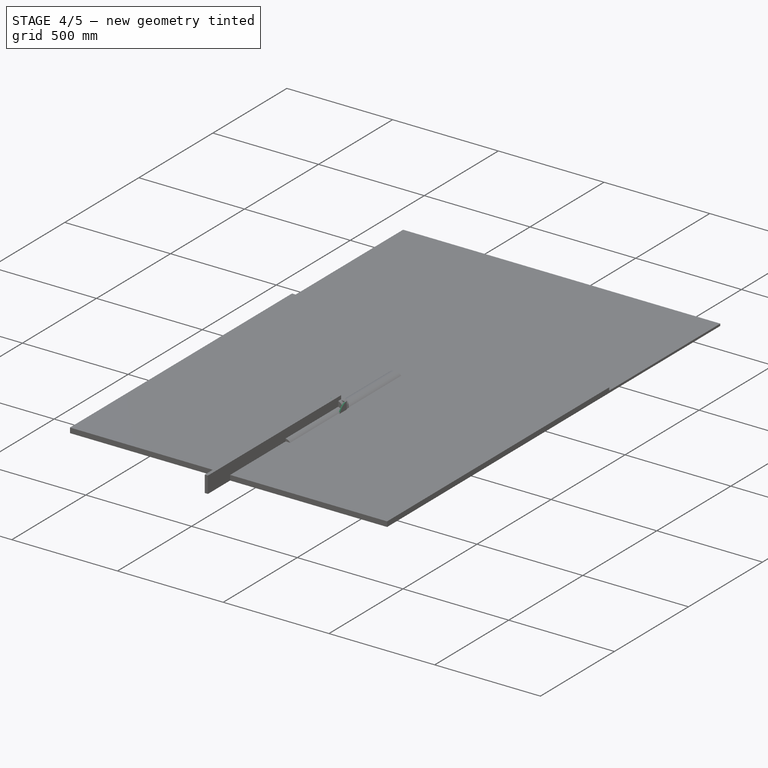
[diagram: stage 4 of 5 — iso view after this stage's code; geometry added in this stage tinted green]
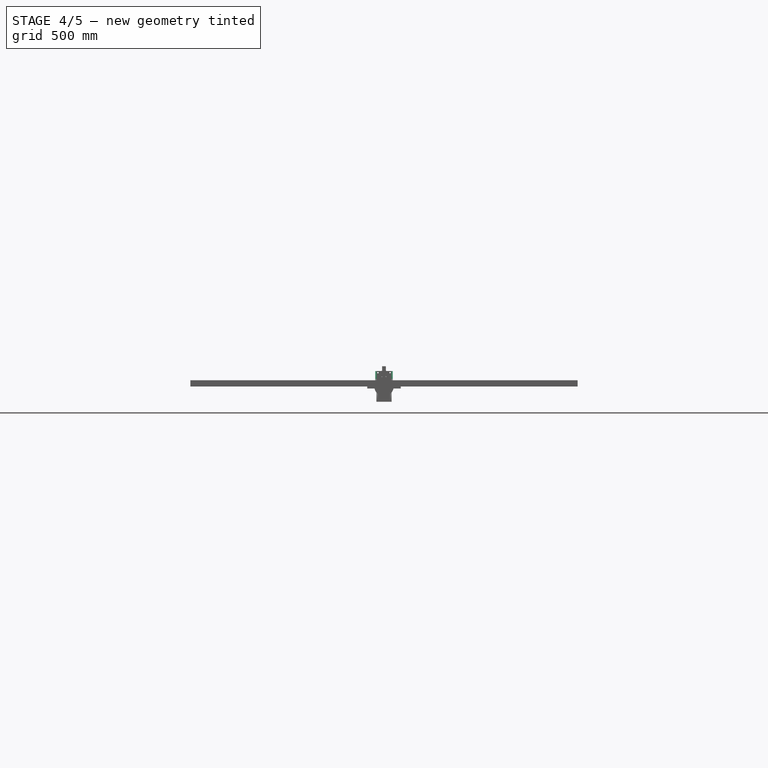
[diagram: stage 4 of 5 — front view after this stage's code; geometry added in this stage tinted green]
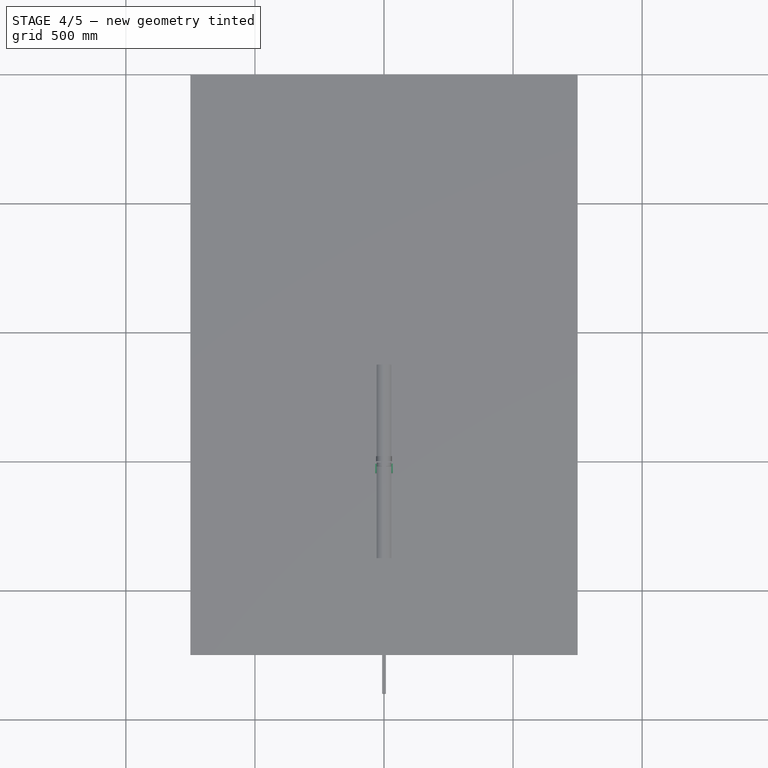
[diagram: stage 4 of 5 — top view after this stage's code; geometry added in this stage tinted green]
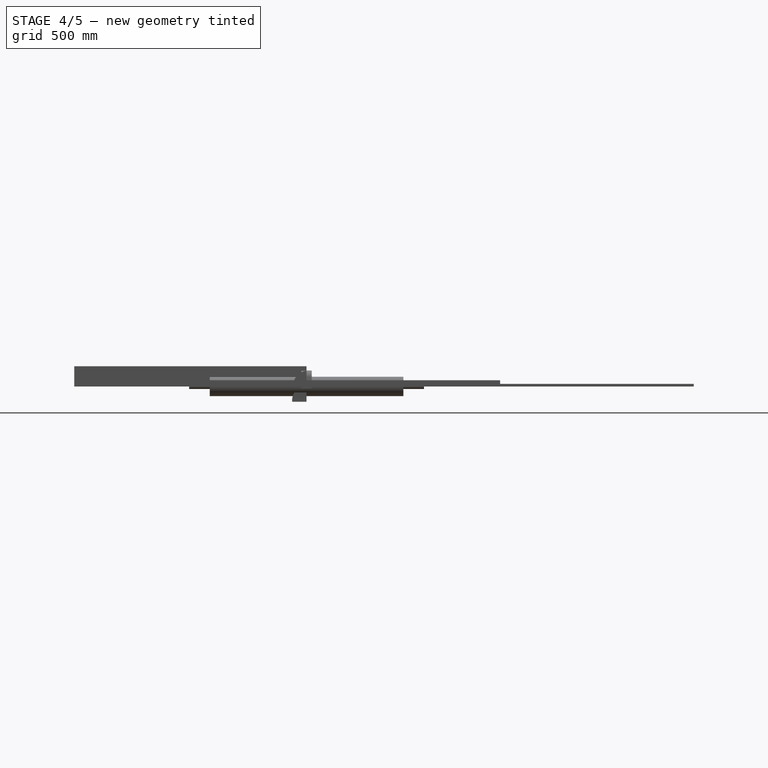
[diagram: stage 4 of 5 — right view after this stage's code; geometry added in this stage tinted green]
FEATURE [PartDesign::Pad] Pad004
  BaseFeature = -> Mirrored005
  Direction = (0,0,1)
  Length = 5
  Length2 = 10
  Placement = pos=(0,-5,-5) rot=(0,0,1;0rad)
  Profile = -> Sketch007
  ReferenceAxis = -> Sketch007 [N_Axis]
  Reversed = true
  Type = 0
FEATURE [PartDesign::Mirrored] Mirrored006
  MirrorPlane = -> Sketch007 [V_Axis]
  Placement = pos=(0,-5,-5) rot=(0,0,1;0rad)
FEATURE [PartDesign::Mirrored] Mirrored007
  MirrorPlane = -> Sketch007 [H_Axis]
  Placement = pos=(0,-5,-5) rot=(0,0,1;0rad)
FEATURE [PartDesign::MultiTransform] MultiTransform001
  BaseFeature = -> Pad004
  Originals = -> [Pad004]
  Placement = pos=(0,-5,-5) rot=(0,0,1;0rad)
  Transformations = -> [Mirrored006,Mirrored007]
FEATURE [Sketcher::SketchObject] Sketch008
  AttachmentOffset = pos=(0,0,28.75) rot=(0,0,1;0rad)
  FullyConstrained = false
  MapMode = 5
  Placement = pos=(28.75,-6.4e-15,6.4e-15) rot=(0.57735,0.57735,0.57735;2.0944rad)
  Support = -> [YZ_Plane009]
  expr: .AttachmentOffset.Base.z = Sketch006.Constraints.width
  expr: Constraints[12] = -(Sketch007.Constraints.length * 2 + 5mm)
  expr: Constraints[8] = Sketch006.Constraints.height * 2
  sketch-geometry (9):
    g0: LineSegment StartX=0 StartY=60 StartZ=0 EndX=-5 EndY=60 EndZ=0
    g1: LineSegment StartX=-53 StartY=1.12207e-11 StartZ=0 EndX=-53 EndY=-5 EndZ=0
    g2: LineSegment StartX=-53 StartY=-5 StartZ=0 EndX=0 EndY=-5 EndZ=0
    g3: LineSegment StartX=0 StartY=-5 StartZ=0 EndX=0 EndY=60 EndZ=0
    g4: ArcOfEllipse CenterX=9.28498 CenterY=2.81547e-11 CenterZ=0 NormalX=0 NormalY=0 NormalZ=1 MajorRadius=62.285 MinorRadius=61.6431 AngleXU=9.37e-14 StartAngle=1.8022 EndAngle=3.14159
    g5: LineSegment StartX=71.57 StartY=3.43634e-11 StartZ=0 EndX=-53 EndY=1.12207e-11 EndZ=0
    g6: LineSegment StartX=9.28498 StartY=61.6431 StartZ=0 EndX=9.28498 EndY=-61.6431 EndZ=0
    g7: GeomPoint X=18.2036 Y=2.89902e-11 Z=0
    g8: GeomPoint X=0.366367 Y=2.76194e-11 Z=0
  constraints (18):
    c: PointOnObject(g0,g-2)
    c: PointOnObject(g1,g-1)
    c: Coincident(g1,g2)
    c: PointOnObject(g2,g-2)
    c: Horizontal(g2)
    c: Coincident(g2,g3)
    c: Coincident(g3,g0)
    c: DistanceY(g2) = -5
    c: DistanceY(g0) = 60
    c: Vertical(g1)
    c: DistanceX(g0) = -5
    c: Horizontal(g0)
    c: DistanceX(g1) = -53
    c: InternalAlignment(g5-g8 -> g4) x4
    c: Vertical(g6)
    c: Coincident(g4,g1)
    c: Coincident(g4,g0)
    c: Coincident(g5,g1)
FEATURE [PartDesign::Pad] Pad005
  BaseFeature = -> MultiTransform001
  Direction = (1,-2e-16,3e-16)
  Length = 5
  Length2 = 10
  Placement = pos=(0,-5,-5) rot=(0,0,1;0rad)
  Profile = -> Sketch008
  ReferenceAxis = -> Sketch008 [N_Axis]
  Type = 0
FEATURE [PartDesign::Mirrored] Mirrored008
  BaseFeature = -> Pad005
  MirrorPlane = -> YZ_Plane009
  Originals = -> [Pad005]
  Placement = pos=(0,-5,-5) rot=(0,0,1;0rad)
FEATURE [Part::Feature] Part__Feature003  label="Звено"
  Placement = pos=(0,0,35) rot=(0,0,1;0rad)
  shape: bbox 17.01 x 14.62 x 29.06 mm, 89 faces (baked)
FEATURE [Part::Feature] Part__Feature004  label="Мама"
  Placement = pos=(0,0,-43) rot=(0,1,0;3.14159rad)
  shape: bbox 17 x 14.61 x 29.14 mm, 62 faces (baked)
FEATURE [Part::Feature] Part__Feature005  label="Папа"
  shape: bbox 17.01 x 13.63 x 28.59 mm, 78 faces (baked)
FEATURE [App::DocumentObjectGroup] Group  label="tp10"
  Group = -> [Part__Feature003,Part__Feature004,Part__Feature005]
FEATURE [Sketcher::SketchObject] Sketch009
  FullyConstrained = true
  MapMode = 5
  Support = -> [XY_Plane009]
  expr: Constraints[16] = -Sketch007.Constraints.length * 2 - 5mm
  expr: Constraints[17] = Sketch007.Constraints.width
  sketch-geometry (10):
    g0: LineSegment StartX=0 StartY=-72 StartZ=0 EndX=28.75 EndY=-72 EndZ=0
    g1: LineSegment StartX=28.75 StartY=-72 StartZ=0 EndX=28.75 EndY=-53 EndZ=0
    g2: LineSegment StartX=28.75 StartY=-53 StartZ=0 EndX=0 EndY=-53 EndZ=0
    g3: LineSegment StartX=0 StartY=-53 StartZ=0 EndX=0 EndY=-72 EndZ=0
    g4: LineSegment StartX=28.75 StartY=-89 StartZ=0 EndX=0 EndY=-89 EndZ=0
    g5: LineSegment StartX=0 StartY=-89 StartZ=0 EndX=0 EndY=-72 EndZ=0
    g6: Circle CenterX=24.75 CenterY=-80.5 CenterZ=0 NormalX=0 NormalY=0 NormalZ=1 AngleXU=0 Radius=1.375
    g7: Circle CenterX=16.75 CenterY=-80.5 CenterZ=0 NormalX=0 NormalY=0 NormalZ=1 AngleXU=0 Radius=1.375
    g8: LineSegment StartX=28.75 StartY=-72 StartZ=0 EndX=28.75 EndY=-80.5 EndZ=0
    g9: LineSegment StartX=28.75 StartY=-80.5 StartZ=0 EndX=28.75 EndY=-89 EndZ=0
  constraints (29):
    c: Coincident(g0,g1)
    c: Coincident(g1,g2)
    c: Coincident(g2,g3)
    c: Coincident(g3,g0)
    c: Horizontal(g0)
    c: Horizontal(g2)
    c: Vertical(g1)
    c: Vertical(g3)
    c: PointOnObject(g0,g-2)
    c: DistanceY(g0) = -72
    c: Coincident(g1,g8)
    c: Coincident(g9,g4)
    c: PointOnObject(g4,g-2)
    c: Horizontal(g4)
    c: Coincident(g4,g5)
    c: Coincident(g5,g3)
    c: DistanceY(g2) = -53
    c: Distance(g2) = 28.75
    c: Distance(g5) = 17
    c: Coincident(g8,g9)
    c: Vertical(g8)
    c: Vertical(g9)
    c: Equal(g9,g8)
    c: Horizontal(g8,g6)
    c: Horizontal(g6,g7)
    c: Equal(g6,g7)
    c: Diameter(g6) = 2.75
    c: Distance(g6,g8) = 4
    c: Distance(g6,g7) = 8
FEATURE [PartDesign::Pad] Pad006
  BaseFeature = -> Mirrored008
  Direction = (0,0,1)
  Length = 5
  Length2 = 10
  Placement = pos=(0,-5,-5) rot=(0,0,1;0rad)
  Profile = -> Sketch009
  ReferenceAxis = -> Sketch009 [N_Axis]
  Reversed = true
  Type = 0
FEATURE [PartDesign::Mirrored] Mirrored001
  MirrorPlane = -> Sketch001 [V_Axis]
  Placement = pos=(0,0,0) rot=(1,0,0;1.5708rad)
FEATURE [PartDesign::Mirrored] Mirrored002
  MirrorPlane = -> YZ_Plane
  Placement = pos=(0,0,0) rot=(1,0,0;1.5708rad)
FEATURE [Sketcher::SketchObject] Sketch005
  FullyConstrained = true
  MapMode = 5
  Support = -> [XY_Plane]
  sketch-geometry (1):
    g0: Circle CenterX=21 CenterY=0 CenterZ=0 NormalX=0 NormalY=0 NormalZ=1 AngleXU=0 Radius=2.5
  constraints (3):
    c: PointOnObject(g0,g-1)
    c: Diameter(g0) = 5
    c: DistanceX(g0) = 21
FEATURE [PartDesign::Body] p08
  Group = -> [LCS_0,Sketch,Pad,Sketch001,Pocket,Sketch002,Pad001,Sketch003,Pad002,Sketch004,Pad003,Mirrored,Local_CS,Local_CS001,MultiTransform,Mirrored001,Mirrored002,Sketch005,Pocket001]
  Origin = -> Origin
  Tip = -> Mirrored
FEATURE [PartDesign::Mirrored] Mirrored
  BaseFeature = -> Pad003
  MirrorPlane = -> Sketch [V_Axis]
  Originals = -> [Pad,Pad001,Pad002,Pad003,Pocket001]
  Placement = pos=(0,0,0) rot=(1,0,0;1.5708rad)
FEATURE [PartDesign::MultiTransform] MultiTransform
  BaseFeature = -> Mirrored
  Originals = -> [Pocket]
  Placement = pos=(0,0,0) rot=(1,0,0;1.5708rad)
  Transformations = -> [Mirrored001,Mirrored002]
FEATURE [PartDesign::Pocket] Pocket001
  BaseFeature = -> MultiTransform
  Direction = (0,0,-1)
  Length = 5
  Length2 = 5
  Midplane = true
  Placement = pos=(0,0,0) rot=(1,0,0;1.5708rad)
  Profile = -> Sketch005
  ReferenceAxis = -> Sketch005 [N_Axis]
  Type = 1
FEATURE [PartDesign::CoordinateSystem] Local_CS  label="back"
  AttacherType = Attacher::AttachEngine3D
  MapMode = 11
  Placement = pos=(0,4.75,15) rot=(0,0.707107,0.707107;3.14159rad)
  Support = -> [Pocket001]
FEATURE [PartDesign::CoordinateSystem] Local_CS001  label="front"
  AttacherType = Attacher::AttachEngine3D
  MapMode = 11
  Placement = pos=(0,-7.75,15) rot=(1,0,0;1.5708rad)
  Support = -> [Pocket001]
---- part cutting_roll.FCStd = doc fcstd_847bbf20b58c ----
FCSTD DOCUMENT  (FreeCAD 0.20R29410 (Git))
Label: cutting_roll
License: All rights reserved
LicenseURL: http://en.wikipedia.org/wiki/All_rights_reserved
objects: App::Link×31, PartDesign::CoordinateSystem×19, Sketcher::SketchObject×8, PartDesign::Body×5, PartDesign::Pad×3, App::DocumentObjectGroup×3, PartDesign::Revolution×2, PartDesign::Mirrored×2, PartDesign::Pocket×1, App::FeaturePython×1, App::Part×1
note: 46 computed .brp shape members not serialized (recipe doc carries the construction recipe); baked Part::Feature solids carry a one-line shape summary decoded from their .brp

FEATURE [Sketcher::SketchObject] Sketch
  FullyConstrained = true
  MapMode = 5
  Placement = pos=(0,0,0) rot=(0.57735,0.57735,0.57735;2.0944rad)
  Support = -> [YZ_Plane]
  sketch-geometry (2):
    g0: Circle CenterX=0 CenterY=0 CenterZ=0 NormalX=0 NormalY=0 NormalZ=1 AngleXU=0 Radius=14.85
    g1: Circle CenterX=0 CenterY=0 CenterZ=0 NormalX=0 NormalY=0 NormalZ=1 AngleXU=0 Radius=12.7
  constraints (4):
    c: Coincident(g0,g-1)
    c: Diameter(g0) = 29.7  'outer_d'
    c: Coincident(g1,g0)
    c: Diameter(g1) = 25.4  'inner_d'
FEATURE [PartDesign::Pad] Pad  label="spacer_49_pad"
  Direction = (1,-2e-16,3e-16)
  Length = 48.85
  Length2 = 10
  Placement = pos=(0,0,0) rot=(0.57735,0.57735,0.57735;2.0944rad)
  Profile = -> Sketch
  ReferenceAxis = -> Sketch [N_Axis]
  Type = 0
FEATURE [Sketcher::SketchObject] Sketch001  label="disk_sketch"
  FullyConstrained = true
  MapMode = 5
  Placement = pos=(0,0,0) rot=(1,0,0;1.5708rad)
  Support = -> [XZ_Plane001]
  sketch-geometry (4):
    g0: LineSegment StartX=0 StartY=38 StartZ=0 EndX=0.55 EndY=30 EndZ=0
    g1: LineSegment StartX=0.55 StartY=30 StartZ=0 EndX=0.55 EndY=0 EndZ=0
    g2: LineSegment StartX=0.55 StartY=0 StartZ=0 EndX=0 EndY=0 EndZ=0
    g3: LineSegment StartX=0 StartY=0 StartZ=0 EndX=0 EndY=38 EndZ=0
  constraints (11):
    c: PointOnObject(g0,g-2)
    c: Coincident(g1,g0)
    c: Vertical(g1)
    c: Coincident(g2,g1)
    c: Horizontal(g2)
    c: Coincident(g3,g2)
    c: Coincident(g3,g0)
    c: Coincident(g2,g-1)
    c: Distance(g3) = 38  'r'
    c: Distance(g2) = 0.55  'thickness_x2'
    c: Distance(g1) = 30
FEATURE [PartDesign::Revolution] Revolution
  Angle = 360
  Axis = (1,0,0)
  Base = (0,0,0)
  Placement = pos=(0,0,0) rot=(1,0,0;1.5708rad)
  Profile = -> Sketch001
  ReferenceAxis = -> Sketch001 [H_Axis]
FEATURE [PartDesign::Pocket] Pocket001
  BaseFeature = -> Pad001
  Direction = (0,0,-1)
  Length = 5
  Length2 = 5
  Midplane = true
  Profile = -> Sketch003
  ReferenceAxis = -> Sketch003 [N_Axis]
  Type = 1
FEATURE [PartDesign::LinearPattern] LinearPattern002
  Direction = -> Sketch003 [H_Axis]
  Length = 349.65
  Occurrences = 8
  expr: Length = (<<cutting_roll>>#Pad.Length + <<cutting_roll>>#<<disk_sketch>>.Constraints.thickness_x2 * 2) * (Occurrences - 1)
FEATURE [PartDesign::LinearPattern] LinearPattern003
  Direction = -> Sketch003 [H_Axis]
  Length = 349.65
  Occurrences = 8
  Reversed = true
  expr: Length = LinearPattern002.Length
  expr: Occurrences = LinearPattern002.Occurrences
FEATURE [PartDesign::MultiTransform] MultiTransform001
  BaseFeature = -> Pocket001
  Originals = -> [Pocket001]
  Transformations = -> [LinearPattern002,LinearPattern003]
FEATURE [PartDesign::Body] Body001  label="plywood_shield_top"
  Group = -> [Sketch002,Sketch003,Pad001,Pocket001,MultiTransform001,LinearPattern002,LinearPattern003]
  Origin = -> Origin001
  Tip = -> MultiTransform001
FEATURE [App::FeaturePython] SetupSheet001  # Path/CAM operation (typed FeaturePython)
  ClearanceHeightExpression = OpStockZMax+SetupSheet001.ClearanceHeightOffset
  ClearanceHeightOffset = 5
  CoolantMode = 0
  CoolantModes = None | Flood | Mist
  FinalDepthExpression = OpFinalDepth
  HorizRapid = 0
  SafeHeightExpression = OpStockZMax+SetupSheet001.SafeHeightOffset
  SafeHeightOffset = 3
  StartDepthExpression = OpStartDepth
  StepDownExpression = OpToolDiameter
  VertRapid = 0
FEATURE [Part::FeaturePython] Clone001  label="Model-plywood_shield_top"  # Draft clone (typed FeaturePython)
  AttacherType = Attacher::AttachEngine3D
  Fuse = false
  Objects = -> [Body001]
  PathResource = Model
  Scale = (1,1,1)
FEATURE [App::DocumentObjectGroup] Model001
  Group = -> [Clone001]
FEATURE [Part::FeaturePython] Stock001  # WARN: FeaturePython — macro-defined, semantics opaque (R4)
  Base = -> Model001
  ExtXneg = 1
  ExtXpos = 1
  ExtYneg = 1
  ExtYpos = 1
  ExtZneg = 0.1
  ExtZpos = 1
  Placement = pos=(-400,0,0) rot=(0,0,1;0rad)
  StockType = FromBase
FEATURE [Part::FeaturePython] ToolBit002  label="3.175mm Endmill"  # Path/CAM toolbit (typed FeaturePython)
  BitPropertyNames = Chipload | CuttingEdgeHeight | Diameter | Flutes | Length | Material | ShankDiameter | SpindleDirection
  BitShape = <path>
  Chipload = 0
  CuttingEdgeHeight = 30
  Diameter = 3.17
  File = <userpath>/.local/share/FreeCAD/Macro/Bit/3.175mm_Endmill.fctb
  Flutes = 0
  Length = 10
  Material = 0
  ShankDiameter = 3
  ShapeName = endmill
  SpindleDirection = 0
FEATURE [Path::FeaturePython] __175mm_Endmill  label="3.175mm Endmill009"  # Path/CAM operation (typed FeaturePython)
  HorizFeed = 51.6667
  HorizRapid = 0
  SpindleDir = 0
  SpindleSpeed = 21000
  Tool = -> ToolBit002
  ToolNumber = 2
  VertFeed = 16.6667
  VertRapid = 0
  expr: HorizRapid = SetupSheet001.HorizRapid
  expr: VertRapid = SetupSheet001.VertRapid
FEATURE [App::DocumentObjectGroup] Tools001
  Group = -> [__175mm_Endmill]
FEATURE [Path::FeaturePython] Profile  # Path/CAM operation (typed FeaturePython)
  Active = true
  AreaParams:
    Tolerance = 1e-07
    FitArcs = True
    Simplify = False
    CleanDistance = 0.0
    Accuracy = 0.01
    Unit = 1.0
    MinArcPoints = 4
    MaxArcPoints = 100
    ClipperScale = 10000000.0
    Fill = 0
    Coplanar = 0
    Reorient = True
    Outline = False
    Explode = False
    OpenMode = 0
    Deflection = 0.01
    SubjectFill = 0
    ClipFill = 0
    Offset = -1.585
    ExtraPass = 0
    Stepover = 0.0
    LastStepover = 0.0
    JoinType = 0
    EndType = 0
    MiterLimit = 2.0
    RoundPrecision = 0.0
    PocketMode = 0
    ToolRadius = 1.0
    PocketExtraOffset = 0.0
    PocketStepover = 0.0
    PocketLastStepover = 0.0
    FromCenter = False
    Angle = 45.0
    AngleShift = 0.0
    Shift = 0.0
    Thicken = False
    SectionCount = -1
    Stepdown = 1.0
    SectionOffset = 0.0
    SectionTolerance = 1e-06
    SectionMode = 2
    Project = False
  Base = -> [Clone001]
  ClearanceHeight = 16
  CoolantMode = 0
  CycleTime = 00:00:23
  Direction = 0
  FinalDepth = 0
  HandleMultipleFeatures = 0
  JoinType = 0
  MiterLimit = 0.1
  OffsetExtra = 0
  OpFinalDepth = 0
  OpStartDepth = 11
  OpStockZMax = 11
  OpStockZMin = -0.1
  OpToolDiameter = 3.17
  PathParams = {'orientation': 1, 'feedrate': 51.666666666666664, 'feedrate_v': 16.666666666666668, 'verbose': True, 'resume_height': 14.0, 'retraction': 16.0, 'return_end': True, 'preamble': False}
  SafeHeight = 14
  Side = 1
  SplitArcs = false
  StartDepth = 11
  StartPoint = (0,0,0)
  StepDown = 3.17
  ToolController = -> __175mm_Endmill
  UseComp = true
  UseStartPoint = false
  processCircles = false
  processHoles = false
  processPerimeter = true
  expr: ClearanceHeight = OpStockZMax + SetupSheet001.ClearanceHeightOffset
  expr: FinalDepth = OpFinalDepth
  expr: SafeHeight = OpStockZMax + SetupSheet001.SafeHeightOffset
  expr: StartDepth = OpStartDepth
  expr: StepDown = OpToolDiameter
FEATURE [Path::FeaturePython] Array001  # Path/CAM operation (typed FeaturePython)
  Active = true
  Angle = 0
  Base = -> [Profile]
  Centre = (0,0,0)
  Copies = 14
  CopiesX = 0
  CopiesY = 0
  JitterMagnitude = (0,0,0)
  JitterPercent = 0
  JitterSeed = 0
  Offset = (49.95,0,0)
  SwapDirection = false
  ToolController = -> __175mm_Endmill
  Type = 0
  expr: .Offset.x = LinearPattern002.Length / (LinearPattern002.Occurrences - 1)
FEATURE [App::DocumentObjectGroup] Operations001
  Group = -> [Profile,Array001]
FEATURE [Path::FeaturePython] Job001  # Path/CAM operation (typed FeaturePython)
  CycleTime = 00:00:23
  Fixtures = G54
  GeometryTolerance = 0.01
  JobType = 0
  LastPostProcessDate = 2022-12-22 13:36:54.214218
  LastPostProcessOutput = <userpath>/B653-DC8A/plywood_cutting_shield.Job001.tap
  Model = -> Model001
  Operations = -> Operations001
  OrderOutputBy = 0
  PostProcessor = 11
  PostProcessorOutputFile = %d.%j.tap
  SetupSheet = -> SetupSheet001
  SplitOutput = false
  Stock = -> Stock001
  Tools = -> Tools001
FEATURE [PartDesign::FeaturePython] Bend  # WARN: FeaturePython — macro-defined, semantics opaque (R4)
  AutoMiter = true
  BaseFeature = -> MultiTransform
  BendType = 0
  LengthList = [40]
  LengthSpec = 0
  Placement = pos=(400,0,0) rot=(0,0,1;0rad)
  ReliefFactor = 0.7
  UseReliefFactor = false
  angle = 90
  baseObject = -> MultiTransform [Edge176]
  bendAList = [90]
  extend1 = 0
  extend2 = 0
  gap1 = 0
  gap2 = 0
  invert = false
  kfactor = 0.5
  length = 40
  maxExtendDist = 5
  minGap = 0.1
  minReliefGap = 1
  miterangle1 = 0
  miterangle2 = 0
  offset = 0
  radius = 0.1
  reliefType = 0
  reliefd = 1
  reliefw = 0.8
  sketchflip = false
  sketchinvert = false
  unfold = false
FEATURE [PartDesign::Body] Body  label="plywood_shield"
  Group = -> [Sketch,Pad,Sketch001,Pocket,Mirrored,MultiTransform,LinearPattern,Local_CS,LinearPattern001,Bend]
  Origin = -> Origin
  Tip = -> Bend
FEATURE [Part::FeaturePython] Clone  label="Model-plywood_shield"  # Draft clone (typed FeaturePython)
  AttacherType = Attacher::AttachEngine3D
  Fuse = false
  Objects = -> [Body]
  PathResource = Model
  Placement = pos=(400,0,0) rot=(0,0,1;0rad)
  Scale = (1,1,1)
FEATURE [App::DocumentObjectGroup] Model
  Group = -> [Clone]
FEATURE [Part::FeaturePython] Stock  # WARN: FeaturePython — macro-defined, semantics opaque (R4)
  Base = -> Model
  ExtXneg = 0
  ExtXpos = 1
  ExtYneg = 0
  ExtYpos = 1
  ExtZneg = 0.1
  ExtZpos = 0
  StockType = FromBase
FEATURE [Path::FeaturePython] Job  # Path/CAM operation (typed FeaturePython)
  CycleTime = 00:03:06
  Fixtures = G54
  GeometryTolerance = 0.01
  JobType = 0
  LastPostProcessDate = 2022-12-21 19:00:36.126258
  LastPostProcessOutput = <userpath>/B653-DC8A/plywood_cutting_shield.Job.tap
  Model = -> Model
  Operations = -> Operations
  OrderOutputBy = 0
  PostProcessor = 11
  PostProcessorOutputFile = %d.%j.tap
  SetupSheet = -> SetupSheet
  SplitOutput = false
  Stock = -> Stock
  Tools = -> Tools
FEATURE [App::FeaturePython] SetupSheet002  # Path/CAM operation (typed FeaturePython)
  ClearanceHeightExpression = OpStockZMax+SetupSheet002.ClearanceHeightOffset
  ClearanceHeightOffset = 5
  CoolantMode = 0
  CoolantModes = None | Flood | Mist
  FinalDepthExpression = OpFinalDepth
  HorizRapid = 0
  SafeHeightExpression = OpStockZMax+SetupSheet002.SafeHeightOffset
  SafeHeightOffset = 3
  StartDepthExpression = OpStartDepth
  StepDownExpression = OpToolDiameter
  VertRapid = 0
FEATURE [Part::FeaturePython] ToolBit003  label="3.175mm Endmill010"  # Path/CAM toolbit (typed FeaturePython)
  BitPropertyNames = Chipload | CuttingEdgeHeight | Diameter | Flutes | Length | Material | ShankDiameter | SpindleDirection
  BitShape = <path>
  Chipload = 0
  CuttingEdgeHeight = 30
  Diameter = 3.17
  File = <userpath>/.local/share/FreeCAD/Macro/Bit/3.175mm_Endmill.fctb
  Flutes = 0
  Length = 10
  Material = 0
  ShankDiameter = 3
  ShapeName = endmill
  SpindleDirection = 0
FEATURE [Path::FeaturePython] __175mm_Endmill010  label="3.175mm Endmill011"  # Path/CAM operation (typed FeaturePython)
  HorizFeed = 51.6667
  HorizRapid = 0
  SpindleDir = 0
  SpindleSpeed = 21000
  Tool = -> ToolBit003
  ToolNumber = 2
  VertFeed = 16.6667
  VertRapid = 0
  expr: HorizRapid = SetupSheet002.HorizRapid
  expr: VertRapid = SetupSheet002.VertRapid
FEATURE [App::DocumentObjectGroup] Tools002
  Group = -> [__175mm_Endmill010]
FEATURE [Path::FeaturePython] Pocket3D001  # Path/CAM operation (typed FeaturePython)
  Active = true
  AdaptivePocketFinish = false
  AdaptivePocketStart = false
  AreaParams:
    Tolerance = 1e-07
    FitArcs = True
    Simplify = False
    CleanDistance = 0.0
    Accuracy = 0.01
    Unit = 1.0
    MinArcPoints = 4
    MaxArcPoints = 100
    ClipperScale = 10000000.0
    Fill = 0
    Coplanar = 0
    Reorient = True
    Outline = False
    Explode = False
    OpenMode = 0
    Deflection = 0.01
    SubjectFill = 0
    ClipFill = 0
    Offset = 0.0
    ExtraPass = 0
    Stepover = 0.0
    LastStepover = 0.0
    JoinType = 0
    EndType = 0
    MiterLimit = 2.0
    RoundPrecision = 0.0
    PocketMode = 1
    ToolRadius = 1.585
    PocketExtraOffset = 0.0
    PocketStepover = 3.17
    PocketLastStepover = 0.0
    FromCenter = True
    Angle = 45.0
    AngleShift = 0.0
    Shift = 0.0
    Thicken = False
    SectionCount = -1
    Stepdown = 1.0
    SectionOffset = 0.0
    SectionTolerance = 1e-06
    SectionMode = 2
    Project = False
  ClearanceHeight = 9
  CoolantMode = 0
  CutMode = 0
  CycleTime = 00:01:19
  ExtraOffset = 0
  FinalDepth = 0
  FinishDepth = 0
  HandleMultipleFeatures = 0
  KeepToolDown = true
  MinTravel = true
  OffsetPattern = 0
  OpFinalDepth = 0
  OpStartDepth = 4
  OpStockZMax = 4
  OpStockZMin = -0.1
  OpToolDiameter = 3.17
  PathParams = {'orientation': 1, 'sort_mode': 3, 'threshold': 3.171585, 'feedrate': 51.666666666666664, 'feedrate_v': 16.666666666666668, 'verbose': True, 'resume_height': 7.0, 'retraction': 9.0, 'return_end': True, 'preamble': False, 'start': Vector (0.0, 0.0, 0.0)}
  PocketLastStepOver = 0
  ProcessStockArea = false
  SafeHeight = 7
  SplitArcs = false
  StartAt = 0
  StartDepth = 4
  StartPoint = (0,0,0)
  StepDown = 3.17
  StepOver = 100
  ToolController = -> __175mm_Endmill010
  UseStartPoint = true
  ZigZagAngle = 45
  expr: ClearanceHeight = OpStockZMax + SetupSheet002.ClearanceHeightOffset
  expr: FinalDepth = OpFinalDepth
  expr: OpFinalDepth = 0mm
  expr: SafeHeight = OpStockZMax + SetupSheet002.SafeHeightOffset
  expr: StartDepth = OpStartDepth
  expr: StepDown = OpToolDiameter
FEATURE [Part::Feature] Unfold
  shape: bbox 800 x 242.5 x 3 mm, 66 faces (baked)
FEATURE [Sketcher::SketchObject] Unfold_Sketch
  FullyConstrained = false
  sketch-geometry (64):
    g0: LineSegment StartX=800 StartY=242.513 StartZ=0 EndX=0 EndY=242.513 EndZ=0
    g1: LineSegment StartX=0 StartY=242.513 StartZ=0 EndX=0 EndY=0 EndZ=0
    g2: LineSegment StartX=0 StartY=0 StartZ=0 EndX=800 EndY=0 EndZ=0
    g3: LineSegment StartX=800 StartY=0 StartZ=0 EndX=800 EndY=242.513 EndZ=0
    g4: LineSegment StartX=448.36 StartY=102 StartZ=0 EndX=451.54 EndY=102 EndZ=0
    g5: LineSegment StartX=451.54 StartY=102 StartZ=0 EndX=451.54 EndY=20 EndZ=0
    g6: LineSegment StartX=451.54 StartY=20 StartZ=0 EndX=448.36 EndY=20 EndZ=0
    g7: LineSegment StartX=448.36 StartY=20 StartZ=0 EndX=448.36 EndY=102 EndZ=0
    g8: LineSegment StartX=401.59 StartY=20 StartZ=0 EndX=398.41 EndY=20 EndZ=0
    g9: LineSegment StartX=398.41 StartY=102 StartZ=0 EndX=398.41 EndY=20 EndZ=0
    g10: LineSegment StartX=401.59 StartY=102 StartZ=0 EndX=398.41 EndY=102 EndZ=0
    g11: LineSegment StartX=401.59 StartY=102 StartZ=0 EndX=401.59 EndY=20 EndZ=0
    g12: LineSegment StartX=498.31 StartY=102 StartZ=0 EndX=501.49 EndY=102 EndZ=0
    g13: LineSegment StartX=501.49 StartY=102 StartZ=0 EndX=501.49 EndY=20 EndZ=0
    g14: LineSegment StartX=501.49 StartY=20 StartZ=0 EndX=498.31 EndY=20 EndZ=0
    g15: LineSegment StartX=498.31 StartY=20 StartZ=0 EndX=498.31 EndY=102 EndZ=0
    g16: LineSegment StartX=348.46 StartY=20 StartZ=0 EndX=351.64 EndY=20 EndZ=0
    g17: LineSegment StartX=348.46 StartY=102 StartZ=0 EndX=348.46 EndY=20 EndZ=0
    g18: LineSegment StartX=351.64 StartY=102 StartZ=0 EndX=348.46 EndY=102 EndZ=0
    g19: LineSegment StartX=351.64 StartY=20 StartZ=0 EndX=351.64 EndY=102 EndZ=0
    g20: LineSegment StartX=298.51 StartY=20 StartZ=0 EndX=301.69 EndY=20 EndZ=0
    g21: LineSegment StartX=298.51 StartY=102 StartZ=0 EndX=298.51 EndY=20 EndZ=0
    g22: LineSegment StartX=301.69 StartY=102 StartZ=0 EndX=298.51 EndY=102 EndZ=0
    g23: LineSegment StartX=301.69 StartY=20 StartZ=0 EndX=301.69 EndY=102 EndZ=0
    g24: LineSegment StartX=548.26 StartY=102 StartZ=0 EndX=551.44 EndY=102 EndZ=0
    g25: LineSegment StartX=551.44 StartY=102 StartZ=0 EndX=551.44 EndY=20 EndZ=0
    g26: LineSegment StartX=551.44 StartY=20 StartZ=0 EndX=548.26 EndY=20 EndZ=0
    g27: LineSegment StartX=548.26 StartY=20 StartZ=0 EndX=548.26 EndY=102 EndZ=0
    g28: LineSegment StartX=598.21 StartY=102 StartZ=0 EndX=601.39 EndY=102 EndZ=0
    g29: LineSegment StartX=601.39 StartY=102 StartZ=0 EndX=601.39 EndY=20 EndZ=0
    g30: LineSegment StartX=601.39 StartY=20 StartZ=0 EndX=598.21 EndY=20 EndZ=0
    g31: LineSegment StartX=598.21 StartY=20 StartZ=0 EndX=598.21 EndY=102 EndZ=0
    g32: LineSegment StartX=648.16 StartY=102 StartZ=0 EndX=651.34 EndY=102 EndZ=0
    g33: LineSegment StartX=651.34 StartY=102 StartZ=0 EndX=651.34 EndY=20 EndZ=0
    g34: LineSegment StartX=651.34 StartY=20 StartZ=0 EndX=648.16 EndY=20 EndZ=0
    g35: LineSegment StartX=648.16 StartY=20 StartZ=0 EndX=648.16 EndY=102 EndZ=0
    g36: LineSegment StartX=248.56 StartY=20 StartZ=0 EndX=251.74 EndY=20 EndZ=0
    g37: LineSegment StartX=248.56 StartY=102 StartZ=0 EndX=248.56 EndY=20 EndZ=0
    g38: LineSegment StartX=251.74 StartY=102 StartZ=0 EndX=248.56 EndY=102 EndZ=0
    g39: LineSegment StartX=251.74 StartY=20 StartZ=0 EndX=251.74 EndY=102 EndZ=0
    g40: LineSegment StartX=198.61 StartY=20 StartZ=0 EndX=201.79 EndY=20 EndZ=0
    g41: LineSegment StartX=198.61 StartY=102 StartZ=0 EndX=198.61 EndY=20 EndZ=0
    g42: LineSegment StartX=201.79 StartY=102 StartZ=0 EndX=198.61 EndY=102 EndZ=0
    g43: LineSegment StartX=201.79 StartY=20 StartZ=0 EndX=201.79 EndY=102 EndZ=0
    g44: LineSegment StartX=148.66 StartY=20 StartZ=0 EndX=151.84 EndY=20 EndZ=0
    g45: LineSegment StartX=148.66 StartY=102 StartZ=0 EndX=148.66 EndY=20 EndZ=0
    g46: LineSegment StartX=151.84 StartY=102 StartZ=0 EndX=148.66 EndY=102 EndZ=0
    g47: LineSegment StartX=151.84 StartY=20 StartZ=0 EndX=151.84 EndY=102 EndZ=0
    g48: LineSegment StartX=698.11 StartY=102 StartZ=0 EndX=701.29 EndY=102 EndZ=0
    g49: LineSegment StartX=701.29 StartY=102 StartZ=0 EndX=701.29 EndY=20 EndZ=0
    g50: LineSegment StartX=701.29 StartY=20 StartZ=0 EndX=698.11 EndY=20 EndZ=0
    g51: LineSegment StartX=698.11 StartY=20 StartZ=0 EndX=698.11 EndY=102 EndZ=0
    g52: LineSegment StartX=98.71 StartY=20 StartZ=0 EndX=101.89 EndY=20 EndZ=0
    g53: LineSegment StartX=98.71 StartY=102 StartZ=0 EndX=98.71 EndY=20 EndZ=0
    g54: LineSegment StartX=101.89 StartY=102 StartZ=0 EndX=98.71 EndY=102 EndZ=0
    g55: LineSegment StartX=101.89 StartY=20 StartZ=0 EndX=101.89 EndY=102 EndZ=0
    g56: LineSegment StartX=748.06 StartY=102 StartZ=0 EndX=751.24 EndY=102 EndZ=0
    g57: LineSegment StartX=751.24 StartY=102 StartZ=0 EndX=751.24 EndY=20 EndZ=0
    g58: LineSegment StartX=751.24 StartY=20 StartZ=0 EndX=748.06 EndY=20 EndZ=0
    g59: LineSegment StartX=748.06 StartY=20 StartZ=0 EndX=748.06 EndY=102 EndZ=0
    g60: LineSegment StartX=48.76 StartY=20 StartZ=0 EndX=51.94 EndY=20 EndZ=0
    g61: LineSegment StartX=48.76 StartY=102 StartZ=0 EndX=48.76 EndY=20 EndZ=0
    g62: LineSegment StartX=51.94 StartY=102 StartZ=0 EndX=48.76 EndY=102 EndZ=0
    g63: LineSegment StartX=51.94 StartY=20 StartZ=0 EndX=51.94 EndY=102 EndZ=0
FEATURE [Sketcher::SketchObject] Unfold_Sketch_Outline
  FullyConstrained = false
  sketch-geometry (4):
    g0: LineSegment StartX=800 StartY=242.513 StartZ=0 EndX=0 EndY=242.513 EndZ=0
    g1: LineSegment StartX=0 StartY=242.513 StartZ=0 EndX=0 EndY=0 EndZ=0
    g2: LineSegment StartX=0 StartY=0 StartZ=0 EndX=800 EndY=0 EndZ=0
    g3: LineSegment StartX=800 StartY=0 StartZ=0 EndX=800 EndY=242.513 EndZ=0
FEATURE [Sketcher::SketchObject] Unfold_Sketch_Internal
  FullyConstrained = false
  sketch-geometry (60):
    g0: LineSegment StartX=48.76 StartY=20 StartZ=0 EndX=51.94 EndY=20 EndZ=0
    g1: LineSegment StartX=51.94 StartY=20 StartZ=0 EndX=51.94 EndY=102 EndZ=0
    g2: LineSegment StartX=51.94 StartY=102 StartZ=0 EndX=48.76 EndY=102 EndZ=0
    g3: LineSegment StartX=48.76 StartY=102 StartZ=0 EndX=48.76 EndY=20 EndZ=0
    g4: LineSegment StartX=748.06 StartY=102 StartZ=0 EndX=751.24 EndY=102 EndZ=0
    g5: LineSegment StartX=751.24 StartY=102 StartZ=0 EndX=751.24 EndY=20 EndZ=0
    g6: LineSegment StartX=751.24 StartY=20 StartZ=0 EndX=748.06 EndY=20 EndZ=0
    g7: LineSegment StartX=748.06 StartY=20 StartZ=0 EndX=748.06 EndY=102 EndZ=0
    g8: LineSegment StartX=98.71 StartY=20 StartZ=0 EndX=101.89 EndY=20 EndZ=0
    g9: LineSegment StartX=101.89 StartY=20 StartZ=0 EndX=101.89 EndY=102 EndZ=0
    g10: LineSegment StartX=101.89 StartY=102 StartZ=0 EndX=98.71 EndY=102 EndZ=0
    g11: LineSegment StartX=98.71 StartY=102 StartZ=0 EndX=98.71 EndY=20 EndZ=0
    g12: LineSegment StartX=148.66 StartY=20 StartZ=0 EndX=151.84 EndY=20 EndZ=0
    g13: LineSegment StartX=151.84 StartY=20 StartZ=0 EndX=151.84 EndY=102 EndZ=0
    g14: LineSegment StartX=151.84 StartY=102 StartZ=0 EndX=148.66 EndY=102 EndZ=0
    g15: LineSegment StartX=148.66 StartY=102 StartZ=0 EndX=148.66 EndY=20 EndZ=0
    g16: LineSegment StartX=198.61 StartY=20 StartZ=0 EndX=201.79 EndY=20 EndZ=0
    g17: LineSegment StartX=201.79 StartY=20 StartZ=0 EndX=201.79 EndY=102 EndZ=0
    g18: LineSegment StartX=201.79 StartY=102 StartZ=0 EndX=198.61 EndY=102 EndZ=0
    g19: LineSegment StartX=198.61 StartY=102 StartZ=0 EndX=198.61 EndY=20 EndZ=0
    g20: LineSegment StartX=248.56 StartY=20 StartZ=0 EndX=251.74 EndY=20 EndZ=0
    g21: LineSegment StartX=251.74 StartY=20 StartZ=0 EndX=251.74 EndY=102 EndZ=0
    g22: LineSegment StartX=251.74 StartY=102 StartZ=0 EndX=248.56 EndY=102 EndZ=0
    g23: LineSegment StartX=248.56 StartY=102 StartZ=0 EndX=248.56 EndY=20 EndZ=0
    g24: LineSegment StartX=648.16 StartY=102 StartZ=0 EndX=651.34 EndY=102 EndZ=0
    g25: LineSegment StartX=651.34 StartY=102 StartZ=0 EndX=651.34 EndY=20 EndZ=0
    g26: LineSegment StartX=651.34 StartY=20 StartZ=0 EndX=648.16 EndY=20 EndZ=0
    g27: LineSegment StartX=648.16 StartY=20 StartZ=0 EndX=648.16 EndY=102 EndZ=0
    g28: LineSegment StartX=598.21 StartY=102 StartZ=0 EndX=601.39 EndY=102 EndZ=0
    g29: LineSegment StartX=601.39 StartY=102 StartZ=0 EndX=601.39 EndY=20 EndZ=0
    g30: LineSegment StartX=601.39 StartY=20 StartZ=0 EndX=598.21 EndY=20 EndZ=0
    g31: LineSegment StartX=598.21 StartY=20 StartZ=0 EndX=598.21 EndY=102 EndZ=0
    g32: LineSegment StartX=548.26 StartY=102 StartZ=0 EndX=551.44 EndY=102 EndZ=0
    g33: LineSegment StartX=551.44 StartY=102 StartZ=0 EndX=551.44 EndY=20 EndZ=0
    g34: LineSegment StartX=551.44 StartY=20 StartZ=0 EndX=548.26 EndY=20 EndZ=0
    g35: LineSegment StartX=548.26 StartY=20 StartZ=0 EndX=548.26 EndY=102 EndZ=0
    g36: LineSegment StartX=298.51 StartY=20 StartZ=0 EndX=301.69 EndY=20 EndZ=0
    g37: LineSegment StartX=301.69 StartY=20 StartZ=0 EndX=301.69 EndY=102 EndZ=0
    g38: LineSegment StartX=301.69 StartY=102 StartZ=0 EndX=298.51 EndY=102 EndZ=0
    g39: LineSegment StartX=298.51 StartY=102 StartZ=0 EndX=298.51 EndY=20 EndZ=0
    g40: LineSegment StartX=348.46 StartY=20 StartZ=0 EndX=351.64 EndY=20 EndZ=0
    g41: LineSegment StartX=351.64 StartY=20 StartZ=0 EndX=351.64 EndY=102 EndZ=0
    g42: LineSegment StartX=351.64 StartY=102 StartZ=0 EndX=348.46 EndY=102 EndZ=0
    g43: LineSegment StartX=348.46 StartY=102 StartZ=0 EndX=348.46 EndY=20 EndZ=0
    g44: LineSegment StartX=498.31 StartY=102 StartZ=0 EndX=501.49 EndY=102 EndZ=0
    g45: LineSegment StartX=501.49 StartY=102 StartZ=0 EndX=501.49 EndY=20 EndZ=0
    g46: LineSegment StartX=501.49 StartY=20 StartZ=0 EndX=498.31 EndY=20 EndZ=0
    g47: LineSegment StartX=498.31 StartY=20 StartZ=0 EndX=498.31 EndY=102 EndZ=0
    g48: LineSegment StartX=401.59 StartY=20 StartZ=0 EndX=398.41 EndY=20 EndZ=0
    g49: LineSegment StartX=398.41 StartY=102 StartZ=0 EndX=398.41 EndY=20 EndZ=0
    g50: LineSegment StartX=401.59 StartY=102 StartZ=0 EndX=398.41 EndY=102 EndZ=0
    g51: LineSegment StartX=401.59 StartY=102 StartZ=0 EndX=401.59 EndY=20 EndZ=0
    g52: LineSegment StartX=448.36 StartY=102 StartZ=0 EndX=451.54 EndY=102 EndZ=0
    g53: LineSegment StartX=451.54 StartY=102 StartZ=0 EndX=451.54 EndY=20 EndZ=0
    g54: LineSegment StartX=451.54 StartY=20 StartZ=0 EndX=448.36 EndY=20 EndZ=0
    g55: LineSegment StartX=448.36 StartY=20 StartZ=0 EndX=448.36 EndY=102 EndZ=0
    g56: LineSegment StartX=698.11 StartY=102 StartZ=0 EndX=701.29 EndY=102 EndZ=0
    g57: LineSegment StartX=701.29 StartY=102 StartZ=0 EndX=701.29 EndY=20 EndZ=0
    g58: LineSegment StartX=701.29 StartY=20 StartZ=0 EndX=698.11 EndY=20 EndZ=0
    g59: LineSegment StartX=698.11 StartY=20 StartZ=0 EndX=698.11 EndY=102 EndZ=0
FEATURE [Sketcher::SketchObject] Unfold_Sketch_bends
  FullyConstrained = false
  sketch-geometry (1):
    g0: LineSegment StartX=0 StartY=201.257 StartZ=0 EndX=800 EndY=201.257 EndZ=0
FEATURE [Part::FeaturePython] Clone002  label="Model-Unfold"  # Draft clone (typed FeaturePython)
  AttacherType = Attacher::AttachEngine3D
  Fuse = false
  Objects = -> [Unfold]
  PathResource = Model
  Scale = (1,1,1)
FEATURE [App::DocumentObjectGroup] Model002
  Group = -> [Clone002]
FEATURE [Part::FeaturePython] Stock002  # WARN: FeaturePython — macro-defined, semantics opaque (R4)
  Base = -> Model002
  ExtXneg = 1
  ExtXpos = 1
  ExtYneg = 1
  ExtYpos = 1
  ExtZneg = 0.1
  ExtZpos = 1
  StockType = FromBase
FEATURE [App::FeaturePython] SetupSheet003  # Path/CAM operation (typed FeaturePython)
  ClearanceHeightExpression = OpStockZMax+SetupSheet003.ClearanceHeightOffset
  ClearanceHeightOffset = 5
  CoolantMode = 0
  CoolantModes = None | Flood | Mist
  FinalDepthExpression = OpFinalDepth
  HorizRapid = 0
  SafeHeightExpression = OpStockZMax+SetupSheet003.SafeHeightOffset
  SafeHeightOffset = 3
  StartDepthExpression = OpStartDepth
  StepDownExpression = OpToolDiameter
  VertRapid = 0
FEATURE [Part::Part2DObjectPython] Clone2D  label="Model-Unfold_Sketch_bends"  # Draft 2D object (typed FeaturePython)
  Fuse = false
  Objects = -> [Unfold_Sketch_bends]
  PathResource = Model
  Scale = (1,1,1)
FEATURE [App::DocumentObjectGroup] Model003
  Group = -> [Clone2D]
FEATURE [Part::FeaturePython] Stock003  # WARN: FeaturePython — macro-defined, semantics opaque (R4)
  Base = -> Model003
  ExtXneg = 1
  ExtXpos = 1
  ExtYneg = 1
  ExtYpos = 1
  ExtZneg = 1
  ExtZpos = 1
  Placement = pos=(0,201.257,0) rot=(0,0,1;0rad)
  StockType = FromBase
FEATURE [Part::FeaturePython] ToolBit004  label="NZV6109015"  # Path/CAM toolbit (typed FeaturePython)
  BitPropertyNames = Chipload | CuttingEdgeAngle | CuttingEdgeHeight | Diameter | Flutes | Length | Material | ShankDiameter | TipDiameter
  BitShape = <path>
  Chipload = 0
  CuttingEdgeAngle = 90
  CuttingEdgeHeight = 4
  Diameter = 10
  File = <userpath>/.local/share/FreeCAD/Macro/Bit/NZV6109010.fctb
  Flutes = 0
  Length = 50
  Material = 0
  ShankDiameter = 6
  ShapeName = chamfer
  TipDiameter = 1
FEATURE [Path::FeaturePython] NZV6109015  label="NZV6109016"  # Path/CAM operation (typed FeaturePython)
  HorizFeed = 51.6667
  HorizRapid = 0
  SpindleDir = 0
  SpindleSpeed = 18000
  Tool = -> ToolBit004
  ToolNumber = 2
  VertFeed = 16.6667
  VertRapid = 0
  expr: HorizRapid = SetupSheet003.HorizRapid
  expr: VertRapid = SetupSheet003.VertRapid
FEATURE [App::DocumentObjectGroup] Tools003
  Group = -> [NZV6109015]
FEATURE [Path::FeaturePython] Engrave  # Path/CAM operation (typed FeaturePython)
  Active = true
  Base = -> [Clone2D]
  ClearanceHeight = 6
  CoolantMode = 0
  CycleTime = 00:00:20
  FinalDepth = 0.4
  OpFinalDepth = -10
  OpStartDepth = 0
  OpStockZMax = 1
  OpStockZMin = -1
  OpToolDiameter = 10
  SafeHeight = 4
  StartDepth = 3
  StartVertex = 0
  StepDown = 10
  ToolController = -> NZV6109015
  expr: ClearanceHeight = OpStockZMax + SetupSheet003.ClearanceHeightOffset
  expr: FinalDepth = 0.4
  expr: SafeHeight = OpStockZMax + SetupSheet003.SafeHeightOffset
  expr: StartDepth = 3
  expr: StepDown = OpToolDiameter
FEATURE [App::DocumentObjectGroup] Operations003
  Group = -> [Engrave]
FEATURE [Path::FeaturePython] Job003  label="bend"  # Path/CAM operation (typed FeaturePython)
  CycleTime = 00:00:20
  Fixtures = G54
  GeometryTolerance = 0.01
  JobType = 0
  LastPostProcessDate = 2022-12-26 20:15:40.999140
  LastPostProcessOutput = <userpath>/B653-DC8A/plywood_cutting_shield.bend.tap
  Model = -> Model003
  Operations = -> Operations003
  OrderOutputBy = 0
  PostProcessor = 11
  PostProcessorOutputFile = %d.%j.tap
  SetupSheet = -> SetupSheet003
  SplitOutput = false
  Stock = -> Stock003
  Tools = -> Tools003
FEATURE [Path::FeaturePython] Profile001  # Path/CAM operation (typed FeaturePython)
  Active = true
  AreaParams:
    Tolerance = 1e-07
    FitArcs = True
    Simplify = False
    CleanDistance = 0.0
    Accuracy = 0.01
    Unit = 1.0
    MinArcPoints = 4
    MaxArcPoints = 100
    ClipperScale = 10000000.0
    Fill = 0
    Coplanar = 0
    Reorient = True
    Outline = False
    Explode = False
    OpenMode = 0
    Deflection = 0.01
    SubjectFill = 0
    ClipFill = 0
    Offset = 1.585
    ExtraPass = 0
    Stepover = 0.0
    LastStepover = 0.0
    JoinType = 0
    EndType = 0
    MiterLimit = 2.0
    RoundPrecision = 0.0
    PocketMode = 0
    ToolRadius = 1.0
    PocketExtraOffset = 0.0
    PocketStepover = 0.0
    PocketLastStepover = 0.0
    FromCenter = False
    Angle = 45.0
    AngleShift = 0.0
    Shift = 0.0
    Thicken = False
    SectionCount = -1
    Stepdown = 1.0
    SectionOffset = 0.0
    SectionTolerance = 1e-06
    SectionMode = 2
    Project = False
  ClearanceHeight = 9
  CoolantMode = 0
  CycleTime = 00:01:38
  Direction = 0
  FinalDepth = -0.1
  HandleMultipleFeatures = 0
  JoinType = 0
  MiterLimit = 0.1
  OffsetExtra = 0
  OpFinalDepth = -0.1
  OpStartDepth = 4
  OpStockZMax = 4
  OpStockZMin = -0.1
  OpToolDiameter = 3.17
  PathParams = {'orientation': 1, 'feedrate': 51.666666666666664, 'feedrate_v': 16.666666666666668, 'verbose': True, 'resume_height': 7.0, 'retraction': 9.0, 'return_end': True, 'preamble': False}
  SafeHeight = 7
  Side = 0
  SplitArcs = false
  StartDepth = 4
  StartPoint = (0,0,0)
  StepDown = 3.17
  ToolController = -> __175mm_Endmill010
  UseComp = true
  UseStartPoint = false
  processCircles = false
  processHoles = false
  processPerimeter = true
  expr: ClearanceHeight = OpStockZMax + SetupSheet002.ClearanceHeightOffset
  expr: FinalDepth = OpFinalDepth
  expr: SafeHeight = OpStockZMax + SetupSheet002.SafeHeightOffset
  expr: StartDepth = OpStartDepth
  expr: StepDown = OpToolDiameter
FEATURE [App::DocumentObjectGroup] Operations002
  Group = -> [Pocket3D001,Profile001]
FEATURE [Path::FeaturePython] Job002  label="profile"  # Path/CAM operation (typed FeaturePython)
  CycleTime = 00:02:57
  Fixtures = G54
  GeometryTolerance = 0.01
  JobType = 0
  LastPostProcessDate = 2022-12-26 20:15:33.071143
  LastPostProcessOutput = <userpath>/B653-DC8A/plywood_cutting_shield.profile.tap
  Model = -> Model002
  Operations = -> Operations002
  OrderOutputBy = 0
  PostProcessor = 11
  PostProcessorOutputFile = %d.%j.tap
  SetupSheet = -> SetupSheet002
  SplitOutput = false
  Stock = -> Stock002
  Tools = -> Tools002
note: 4 file-system paths scrubbed to <path> (originals preserved in the JSON sidecar)
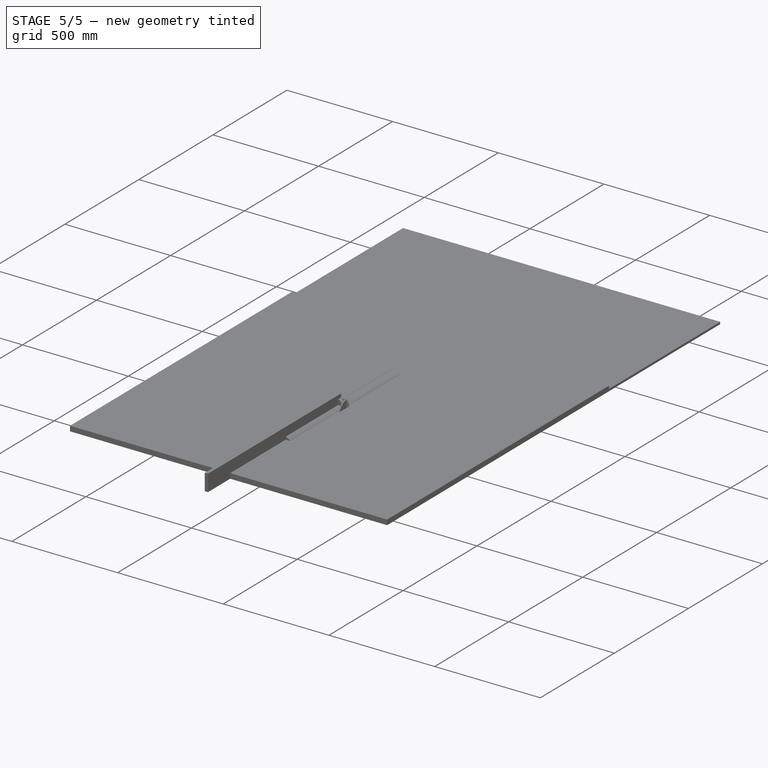
[diagram: stage 5 of 5 — iso view after this stage's code; geometry added in this stage tinted green]
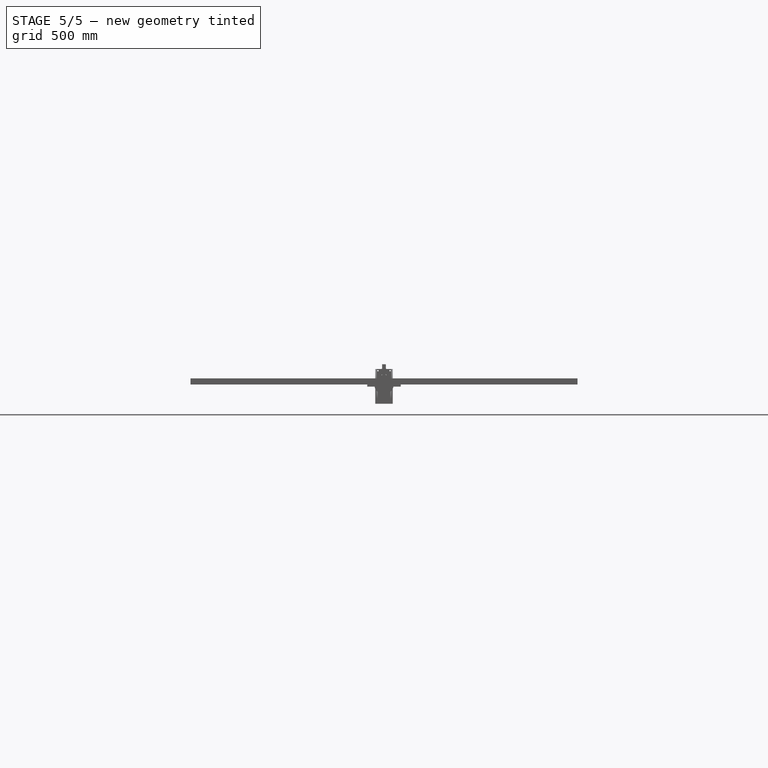
[diagram: stage 5 of 5 — front view after this stage's code; geometry added in this stage tinted green]
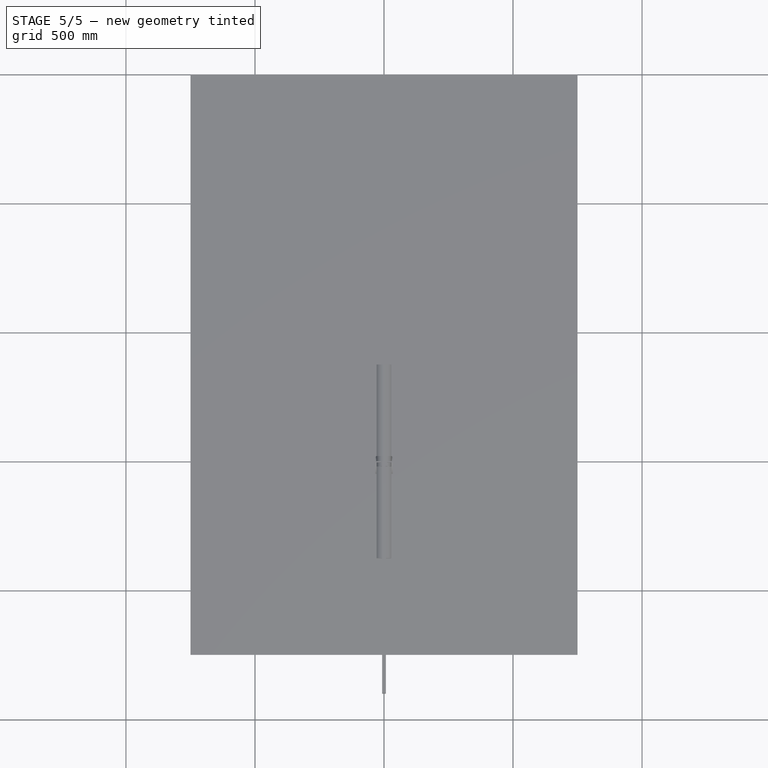
[diagram: stage 5 of 5 — top view after this stage's code; geometry added in this stage tinted green]
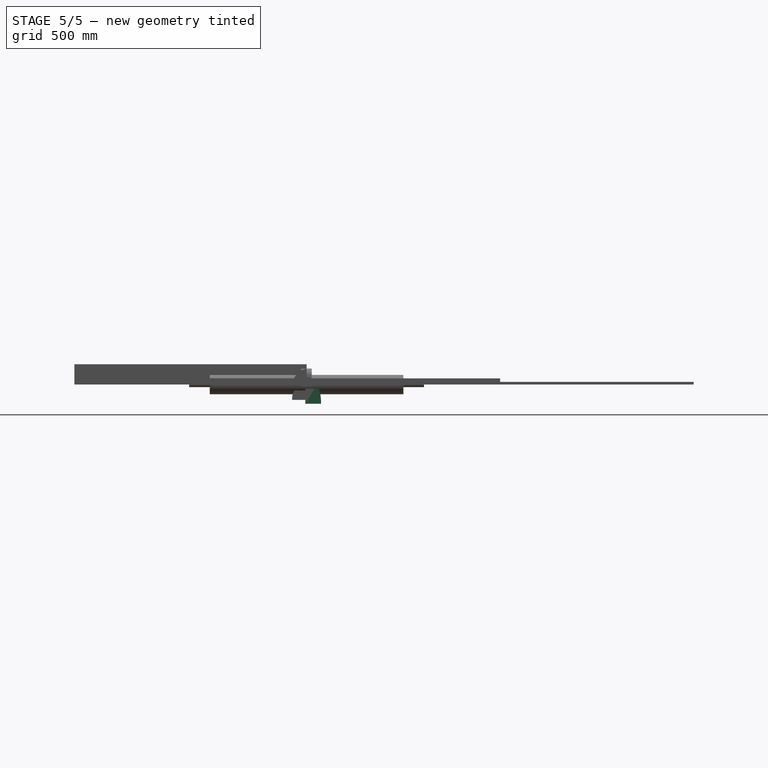
[diagram: stage 5 of 5 — right view after this stage's code; geometry added in this stage tinted green]
FEATURE [PartDesign::Body] Body004
  Group = -> [Sketch006,Pad003,DatumPlane,MultiTransform,Mirrored003,Mirrored004,Sketch007,Box,Mirrored005,Pad004,MultiTransform001,Mirrored006,Mirrored007,Sketch008,Pad005,Mirrored008,Sketch009,Pad006]
  Origin = -> Origin009
  Tip = -> Pad006
FEATURE [PartDesign::CoordinateSystem] LCS_1
  AttacherType = Attacher::AttachEngine3D
  MapMode = 45
  Placement = pos=(4e-16,-250.563,-4.6) rot=(0,0,1;0rad)
  Support = -> [Part__Feature001]
FEATURE [Part::Feature] Part__Feature006  label="Ламель 1030"
  shape: bbox 10 x 30 x 1000 mm, 14 faces (baked)
FEATURE [PartDesign::CoordinateSystem] LCS_0003
  AttacherType = Attacher::AttachEngine3D
  MapMode = 2
  Support = -> [X_Axis011]
FEATURE [PartDesign::CoordinateSystem] LCS_2
  AttacherType = Attacher::AttachEngine3D
  MapMode = 5
  Placement = pos=(0,12.9,0) rot=(1,0,0;1.5708rad)
  Support = -> [Part__Feature002]
FEATURE [PartDesign::CoordinateSystem] top
  AttacherType = Attacher::AttachEngine3D
  MapMode = 45
  Placement = pos=(0.000109059,-252.206,12.9) rot=(0,0,-1;1e-06rad)
  Support = -> [Part__Feature001]
FEATURE [App::Part] Part001  label="rail"
  Group = -> [Part__Feature001,LCS_1,top]
  Origin = -> Origin010
FEATURE [App::Link] linear_bearing001
  AssemblyType = Part::Link
  AttachedBy = #LCS_2
  AttachedTo = GHR20#Local_CS001
  AttachmentOffset = pos=(0,0,0) rot=(1,0,0;3.14159rad)
  LinkPlacement = pos=(149,6.8e-15,179.9) rot=(0,0.707107,-0.707107;3.14159rad)
  LinkedObject = -> linear_bearing
  Placement = pos=(149,6.8e-15,179.9) rot=(0,0.707107,-0.707107;3.14159rad)
  SolverId = Asm4EE
  expr: Placement = GHR20.Placement * GHR20#Local_CS001.Placement * AttachmentOffset * LCS_2.Placement ^ -1
FEATURE [PartDesign::CoordinateSystem] top001
  AttacherType = Attacher::AttachEngine3D
  MapMode = 45
  Placement = pos=(1.15e-14,25.4,-1.6e-15) rot=(-1,0,0;1.5708rad)
  Support = -> [Part__Feature002]
FEATURE [App::Part] linear_bearing
  Group = -> [LCS_0003,Part__Feature002,LCS_2,top001]
  Origin = -> Origin011
FEATURE [PartDesign::CoordinateSystem] bearing_fixture
  AttacherType = Attacher::AttachEngine3D
  MapMode = 1
  Placement = pos=(0,-29,-5) rot=(0,0,1;0rad)
  Support = -> [Pad006]
FEATURE [App::Link] bearingTo57BLY  label="bearingTo57BLY001"
  AssemblyType = Part::Link
  AttachedBy = #bearing_fixture
  AttachedTo = linear_bearing001#top001
  AttachmentOffset = pos=(0,0,0) rot=(0,0,1;4.71239rad)
  LinkPlacement = pos=(120,1.4e-15,149.5) rot=(0.707107,-0.707107,0;3.14159rad)
  LinkedObject = -> Part
  Placement = pos=(120,1.4e-15,149.5) rot=(0.707107,-0.707107,0;3.14159rad)
  SolverId = Asm4EE
  expr: Placement = linear_bearing001.Placement * top001.Placement * AttachmentOffset * bearing_fixture.Placement ^ -1
FEATURE [PartDesign::CoordinateSystem] BLY_fixture
  AttacherType = Attacher::AttachEngine3D
  MapMode = 11
  Placement = pos=(0,-5,30) rot=(0.57735,0.57735,-0.57735;2.0944rad)
  Support = -> [Pad006]
FEATURE [App::Part] Part  label="bearingTo57BLY"
  Group = -> [Body004,bearing_fixture,BLY_fixture]
  Origin = -> Origin008
FEATURE [App::Link] bearing003
  AssemblyType = Part::Link
  AttachedBy = #LCS_0
  AttachedTo = plywood002#shape_center
  AttachmentOffset = pos=(-95.5,447,0) rot=(0,0,1;0rad)
  LinkPlacement = pos=(-95.5,447,8) rot=(0,0,1;0rad)
  LinkedObject = -> bearing
  Placement = pos=(-95.5,447,8) rot=(0,0,1;0rad)
  SolverId = Asm4EE
  expr: Placement = plywood002.Placement * shape_center.Placement * AttachmentOffset * LCS_0.Placement ^ -1
FEATURE [App::Link] Unnamed1
  AttachedBy = #right_20mm
  AttachedTo = bearing003#bearing_hole_front
  AttachmentOffset = pos=(0,0,0) rot=(0,1,0;4.71239rad)
  LinkPlacement = pos=(-95.5,-440.8,41) rot=(-0.57735,-0.57735,-0.57735;4.18879rad)
  LinkedObject = -> <external cutting_roll.FCStd>#Model
  Placement = pos=(-95.5,-440.8,41) rot=(-0.57735,-0.57735,-0.57735;4.18879rad)
  SolverId = Asm4EE
  expr: Placement = bearing003.Placement * bearing_hole_front.Placement * AttachmentOffset * cutting_roll#right_20mm.Placement ^ -1
FEATURE [App::Link] bearing004
  AssemblyType = Part::Link
  AttachedBy = #bearing_hole_front
  AttachedTo = Unnamed1#left_20mm
  AttachmentOffset = pos=(0,0,0) rot=(0,1,0;4.71239rad)
  LinkPlacement = pos=(-95.5,-357.8,8) rot=(0,0,-1;3.14159rad)
  LinkedObject = -> bearing
  Placement = pos=(-95.5,-357.8,8) rot=(0,0,-1;3.14159rad)
  SolverId = Asm4EE
  expr: Placement = Unnamed1.Placement * cutting_roll#left_20mm.Placement * AttachmentOffset * bearing_hole_front.Placement ^ -1
FEATURE [App::Link] GHR20  label="GHR021"
  AssemblyType = Part::Link
  AttachedBy = #Local_CS
  AttachedTo = plywood001#shape_center
  AttachmentOffset = pos=(-149,0,-26.5) rot=(0,0,1;0rad)
  LinkPlacement = pos=(149,500,184.5) rot=(0,1,0;3.14159rad)
  LinkedObject = -> <external GHR20.FCStd>#Body
  Placement = pos=(149,500,184.5) rot=(0,1,0;3.14159rad)
  SolverId = Asm4EE
  expr: Placement = plywood001.Placement * shape_center.Placement * AttachmentOffset * GHR20#Local_CS.Placement ^ -1
FEATURE [App::Link] profile1030
  AssemblyType = Part::Link
  AttachedBy = #middle
  AttachedTo = plywood001#shape_center
  AttachmentOffset = pos=(-69.5,0,78.5) rot=(0,1,0;-1.29713rad)
  LinkPlacement = pos=(69.5,-500,79.5) rot=(0,-1,0;4.43872rad)
  LinkedObject = -> <external AL-Laser1030.FCStd>#Body
  Placement = pos=(69.5,-500,79.5) rot=(0,-1,0;4.43872rad)
  SolverId = Asm4EE
  expr: .AttachmentOffset.Base.z = bearing_hole_front.Placement.Base.z + Sketch004.Constraints.r + <<insertion_pad>>.Length
  expr: Placement = plywood001.Placement * shape_center.Placement * AttachmentOffset * AL_Laser1030#middle.Placement ^ -1
FEATURE [App::Link] profile_to_step_motor
  AssemblyType = Part::Link
  AttachedBy = #Local_CS005
  AttachedTo = profile1030#begin
  AttachmentOffset = pos=(0,0,0) rot=(1,0,0;1.5708rad)
  LinkPlacement = pos=(71.0439,-482,84.2599) rot=(-0.47238,-0.62324,0.62324;4.02421rad)
  LinkedObject = -> <external ../../Downloads/probnik_krepezha_zazhima.FCStd>#Body001
  Placement = pos=(71.0439,-482,84.2599) rot=(-0.47238,-0.62324,0.62324;4.02421rad)
  SolverId = Asm4EE
  expr: Placement = profile1030.Placement * AL_Laser1030#begin.Placement * AttachmentOffset * probnik_krepezha_zazhima#Local_CS005.Placement ^ -1
FEATURE [App::Link] profile_to_bearing
  AssemblyType = Part::Link
  AttachedBy = #Local_CS
  AttachedTo = profile1030#end
  AttachmentOffset = pos=(0,0,0) rot=(1,0,0;1.5708rad)
  LinkPlacement = pos=(71.0439,500,84.2599) rot=(-0.47238,-0.62324,0.62324;4.02421rad)
  LinkedObject = -> <external ../../Downloads/probnik_krepezha_zazhima.FCStd>#Body002
  Placement = pos=(71.0439,500,84.2599) rot=(-0.47238,-0.62324,0.62324;4.02421rad)
  SolverId = Asm4EE
  expr: Placement = profile1030.Placement * AL_Laser1030#end.Placement * AttachmentOffset * probnik_krepezha_zazhima#Local_CS.Placement ^ -1
FEATURE [App::Link] _7HS56_2804A08_D022  label="57HS56-2804A08-D022"
  AssemblyType = Part::Link
  AttachedBy = #Local_CS
  AttachedTo = profile_to_step_motor#Local_CS006
  AttachmentOffset = pos=(0,0,0) rot=(0,0,1;-1.29713rad)
  LinkPlacement = pos=(70.162,-510.5,67.0581) rot=(0.707107,0.707107,0;3.14159rad)
  LinkedObject = -> <external 57HS56-2804A08-D21.FCStd>#Body
  Placement = pos=(70.162,-510.5,67.0581) rot=(0.707107,0.707107,0;3.14159rad)
  SolverId = Asm4EE
  expr: Placement = profile_to_step_motor.Placement * probnik_krepezha_zazhima#Local_CS006.Placement * AttachmentOffset * _7HS56_2804A08_D21#Local_CS.Placement ^ -1
FEATURE [App::Link] p08
  AssemblyType = Part::Link
  AttachedBy = #Local_CS001
  AttachedTo = profile_to_bearing#Local_CS002
  AttachmentOffset = pos=(0,0,0) rot=(0,0,1;-1.29503rad)
  LinkPlacement = pos=(70.1306,507.75,82.058) rot=(0,1,0;3.1395rad)
  LinkedObject = -> <external bearing_p08.FCStd>#p08
  Placement = pos=(70.1306,507.75,82.058) rot=(0,1,0;3.1395rad)
  SolverId = Asm4EE
  expr: Placement = profile_to_bearing.Placement * probnik_krepezha_zazhima#Local_CS002.Placement * AttachmentOffset * bearing_p08#Local_CS001.Placement ^ -1
FEATURE [PartDesign::CoordinateSystem] LCS_0004
  AttacherType = Attacher::AttachEngine3D
  MapMode = 2
  Support = -> [X_Axis012]
FEATURE [Sketcher::SketchObject] Sketch010
  AttachmentOffset = pos=(0,0,-74.5) rot=(0,0,1;0rad)
  FullyConstrained = true
  MapMode = 5
  Placement = pos=(0,0,-74.5) rot=(0,0,1;0rad)
  Support = -> [XY_Plane012]
  expr: .AttachmentOffset.Base.z = -74.5
  expr: Constraints[30] = Sketch011.Constraints.width
  sketch-geometry (12):
    g0: LineSegment StartX=0 StartY=0 StartZ=0 EndX=29 EndY=0 EndZ=0
    g1: LineSegment StartX=29 StartY=0 StartZ=0 EndX=29 EndY=56 EndZ=0
    g2: LineSegment StartX=29 StartY=56 StartZ=0 EndX=0 EndY=56 EndZ=0
    g3: LineSegment StartX=0 StartY=56 StartZ=0 EndX=0 EndY=0 EndZ=0
    g4: Circle CenterX=14.5 CenterY=14 CenterZ=0 NormalX=0 NormalY=0 NormalZ=1 AngleXU=0 Radius=2.75
    g5: Circle CenterX=14.5 CenterY=42 CenterZ=0 NormalX=0 NormalY=0 NormalZ=1 AngleXU=0 Radius=2.75
    g6: LineSegment StartX=14.5 StartY=56 StartZ=0 EndX=14.5 EndY=42 EndZ=0
    g7: LineSegment StartX=14.5 StartY=42 StartZ=0 EndX=14.5 EndY=28 EndZ=0
    g8: LineSegment StartX=14.5 StartY=28 StartZ=0 EndX=14.5 EndY=14 EndZ=0
    g9: LineSegment StartX=14.5 StartY=14 StartZ=0 EndX=14.5 EndY=0 EndZ=0
    g10: LineSegment StartX=0 StartY=28 StartZ=0 EndX=14.5 EndY=28 EndZ=0
    g11: LineSegment StartX=14.5 StartY=28 StartZ=0 EndX=29 EndY=28 EndZ=0
  constraints (34):
    c: Coincident(g0,g1)
    c: Coincident(g1,g2)
    c: Coincident(g2,g3)
    c: Coincident(g3,g0)
    c: Horizontal(g0)
    c: Horizontal(g2)
    c: Vertical(g1)
    c: Vertical(g3)
    c: Coincident(g0,g-1)
    c: Vertical(g5,g4)
    c: PointOnObject(g6,g2)
    c: Coincident(g6,g5)
    c: Vertical(g6)
    c: Coincident(g6,g7)
    c: Vertical(g7)
    c: Coincident(g7,g8)
    c: Coincident(g8,g4)
    c: Coincident(g8,g9)
    c: PointOnObject(g9,g0)
    c: Vertical(g9)
    c: Equal(g9,g8)
    c: Equal(g8,g7)
    c: Equal(g7,g6)
    c: PointOnObject(g10,g3)
    c: Coincident(g10,g7)
    c: Horizontal(g10)
    c: Coincident(g10,g11)
    c: PointOnObject(g11,g1)
    c: Horizontal(g11)
    c: Equal(g11,g10)
    c: DistanceX(g0,g0) = 29
    c: DistanceY(g3,g3) = 56
    c: Equal(g4,g5)
    c: Diameter(g4) = 5.5
FEATURE [Sketcher::SketchObject] Sketch011
  FullyConstrained = true
  MapMode = 5
  Placement = pos=(0,0,0) rot=(1,0,0;1.5708rad)
  Support = -> [XZ_Plane012]
  sketch-geometry (8):
    g0: Circle CenterX=23.5 CenterY=23.5 CenterZ=0 NormalX=0 NormalY=0 NormalZ=1 AngleXU=0 Radius=2.5
    g1: LineSegment StartX=29 StartY=29 StartZ=0 EndX=0 EndY=29 EndZ=0
    g2: LineSegment StartX=29 StartY=29 StartZ=0 EndX=29 EndY=0 EndZ=0
    g3: ArcOfCircle CenterX=0 CenterY=0 CenterZ=0 NormalX=0 NormalY=0 NormalZ=1 AngleXU=0 Radius=20 StartAngle=0 EndAngle=1.5708
    g4: LineSegment StartX=20 StartY=0 StartZ=0 EndX=29 EndY=0 EndZ=0
    g5: LineSegment StartX=1.2e-15 StartY=20 StartZ=0 EndX=0 EndY=29 EndZ=0
    g6: LineSegment StartX=0 StartY=0 StartZ=0 EndX=29 EndY=0 EndZ=0
    g7: LineSegment StartX=0 StartY=0 StartZ=0 EndX=0 EndY=29 EndZ=0
  constraints (22):
    c: PointOnObject(g1,g-2)
    c: Horizontal(g1)
    c: Coincident(g3,g-1)
    c: PointOnObject(g3,g-2)
    c: PointOnObject(g3,g-1)
    c: Diameter(g3) = 40
    c: Coincident(g4,g3)
    c: Coincident(g4,g2)
    c: Horizontal(g4)
    c: Coincident(g5,g3)
    c: Coincident(g5,g1)
    c: DistanceX(g0) = 23.5
    c: DistanceY(g0) = 23.5
    c: Diameter(g0) = 5
    c: Vertical(g2)
    c: Coincident(g6,g3)
    c: Coincident(g6,g2)
    c: Coincident(g7,g3)
    c: Coincident(g7,g1)
    c: Equal(g6,g7)
    c: Distance(g6) = 29  'width'
    c: Coincident(g2,g1)
FEATURE [PartDesign::Pad] Pad007
  Direction = (0,-1,-2e-16)
  Length = 5
  Length2 = 10
  Placement = pos=(0,0,0) rot=(1,0,0;1.5708rad)
  Profile = -> Sketch011
  ReferenceAxis = -> Sketch011 [N_Axis]
  Type = 0
FEATURE [PartDesign::Mirrored] Mirrored009
  MirrorPlane = -> Sketch011 [V_Axis]
  Placement = pos=(0,0,0) rot=(1,0,0;1.5708rad)
FEATURE [PartDesign::Mirrored] Mirrored010
  MirrorPlane = -> Sketch011 [H_Axis]
  Placement = pos=(0,0,0) rot=(1,0,0;1.5708rad)
FEATURE [PartDesign::MultiTransform] MultiTransform002
  BaseFeature = -> Pad007
  Originals = -> [Pad007]
  Placement = pos=(0,0,0) rot=(1,0,0;1.5708rad)
  Transformations = -> [Mirrored009,Mirrored010]
FEATURE [Sketcher::SketchObject] Sketch_1
  FullyConstrained = true
  MapMode = 5
  Placement = pos=(0,0,0) rot=(1,0,0;1.5708rad)
  Support = -> [XZ_Plane012]
  expr: Constraints[10] = Sketch010.AttachmentOffset.Base.z
  expr: Constraints[11] = -Sketch011.Constraints.width
  expr: Constraints[9] = Sketch011.Constraints.width
  sketch-geometry (4):
    g0: LineSegment StartX=0 StartY=-29 StartZ=0 EndX=29 EndY=-29 EndZ=0
    g1: LineSegment StartX=29 StartY=-29 StartZ=0 EndX=29 EndY=-74.5 EndZ=0
    g2: LineSegment StartX=29 StartY=-74.5 StartZ=0 EndX=0 EndY=-74.5 EndZ=0
    g3: LineSegment StartX=0 StartY=-74.5 StartZ=0 EndX=0 EndY=-29 EndZ=0
  constraints (12):
    c: Coincident(g0,g1)
    c: Coincident(g1,g2)
    c: Coincident(g2,g3)
    c: Coincident(g3,g0)
    c: Horizontal(g0)
    c: Horizontal(g2)
    c: Vertical(g1)
    c: Vertical(g3)
    c: PointOnObject(g0,g-2)
    c: Distance(g0) = 29
    c: DistanceY(g2) = -74.5
    c: DistanceY(g0) = -29
FEATURE [PartDesign::Pad] Pad008
  BaseFeature = -> MultiTransform002
  Direction = (0,-1,-2e-16)
  Length = 5
  Length2 = 10
  Placement = pos=(0,0,0) rot=(1,0,0;1.5708rad)
  Profile = -> Sketch_1
  ReferenceAxis = -> Sketch_1 [N_Axis]
  Type = 0
FEATURE [PartDesign::Pad] Pad009
  BaseFeature = -> Pad008
  Direction = (0,0,1)
  Length = 5
  Length2 = 10
  Placement = pos=(0,0,0) rot=(1,0,0;1.5708rad)
  Profile = -> Sketch010
  ReferenceAxis = -> Sketch010 [N_Axis]
  Type = 0
FEATURE [PartDesign::Mirrored] Mirrored011
  BaseFeature = -> Pad009
  MirrorPlane = -> Sketch_1 [V_Axis]
  Originals = -> [Pad008,Pad009]
  Placement = pos=(0,0,0) rot=(1,0,0;1.5708rad)
FEATURE [App::Link] _7ToPlywood001  label="57ToPlywood001"
  AssemblyType = Part::Link
  AttachedBy = #Local_CS
  AttachedTo = _7HS56_2804A08_D022#Local_CS002
  AttachmentOffset = pos=(0,0,0) rot=(1,0,0;3.14159rad)
  LinkPlacement = pos=(70.162,-505.5,67.0581) rot=(-1,0,0;3.14159rad)
  LinkedObject = -> _7ToPlywood
  Placement = pos=(70.162,-505.5,67.0581) rot=(-1,0,0;3.14159rad)
  SolverId = Asm4EE
  expr: Placement = _7HS56_2804A08_D022.Placement * _7HS56_2804A08_D21#Local_CS002.Placement * AttachmentOffset * Local_CS.Placement ^ -1
FEATURE [Sketcher::SketchObject] Sketch012
  AttachmentOffset = pos=(0,0,29) rot=(0,0,1;0rad)
  FullyConstrained = true
  MapMode = 5
  Placement = pos=(29,-6.4e-15,6.4e-15) rot=(0.57735,0.57735,0.57735;2.0944rad)
  Support = -> [YZ_Plane012]
  expr: .AttachmentOffset.Base.z = Sketch011.Constraints.width
  expr: Constraints[10] = Sketch010.AttachmentOffset.Base.z + 5mm
  expr: Constraints[12] = 56
  expr: Constraints[9] = Sketch011.Constraints.width
  sketch-geometry (9):
    g0: LineSegment StartX=0 StartY=29 StartZ=0 EndX=-5 EndY=29 EndZ=0
    g1: LineSegment StartX=-5 StartY=29 StartZ=0 EndX=-5 EndY=-74.5 EndZ=0
    g2: LineSegment StartX=-5 StartY=-74.5 StartZ=0 EndX=56 EndY=-74.5 EndZ=0
    g3: LineSegment StartX=56 StartY=-74.5 StartZ=0 EndX=56 EndY=-69.5 EndZ=0
    g4: ArcOfEllipse CenterX=0 CenterY=-69.5 CenterZ=0 NormalX=0 NormalY=0 NormalZ=1 MajorRadius=98.5 MinorRadius=56 AngleXU=-1.5708 StartAngle=1.5708 EndAngle=3.14159
    g5: LineSegment StartX=0 StartY=-168 StartZ=0 EndX=0 EndY=29 EndZ=0
    g6: LineSegment StartX=56 StartY=-69.5 StartZ=0 EndX=-56 EndY=-69.5 EndZ=0
    g7: GeomPoint X=0 Y=-150.532 Z=0
    g8: GeomPoint X=0 Y=11.5324 Z=0
  constraints (19):
    c: PointOnObject(g0,g-2)
    c: Coincident(g0,g1)
    c: Vertical(g1)
    c: Coincident(g1,g2)
    c: Horizontal(g2)
    c: Coincident(g2,g3)
    c: Vertical(g3)
    c: Horizontal(g0)
    c: Equal(g3,g0)
    c: DistanceY(g0) = 29
    c: DistanceY(g3) = -69.5
    c: Distance(g3) = 5
    c: DistanceX(g3) = 56
    c: InternalAlignment(g5-g8 -> g4) x4
    c: PointOnObject(g4,g-2)
    c: Coincident(g4,g0)
    c: Coincident(g4,g3)
    c: Vertical(g5)
    c: DistanceY(g1,g4) = 5
FEATURE [PartDesign::Pad] Pad010
  BaseFeature = -> Mirrored011
  Direction = (1,-2e-16,3e-16)
  Length = 5
  Length2 = 10
  Placement = pos=(0,0,0) rot=(1,0,0;1.5708rad)
  Profile = -> Sketch012
  ReferenceAxis = -> Sketch012 [N_Axis]
  Type = 0
FEATURE [PartDesign::Mirrored] Mirrored012
  BaseFeature = -> Pad010
  MirrorPlane = -> YZ_Plane012
  Originals = -> [Pad010]
  Placement = pos=(0,0,0) rot=(1,0,0;1.5708rad)
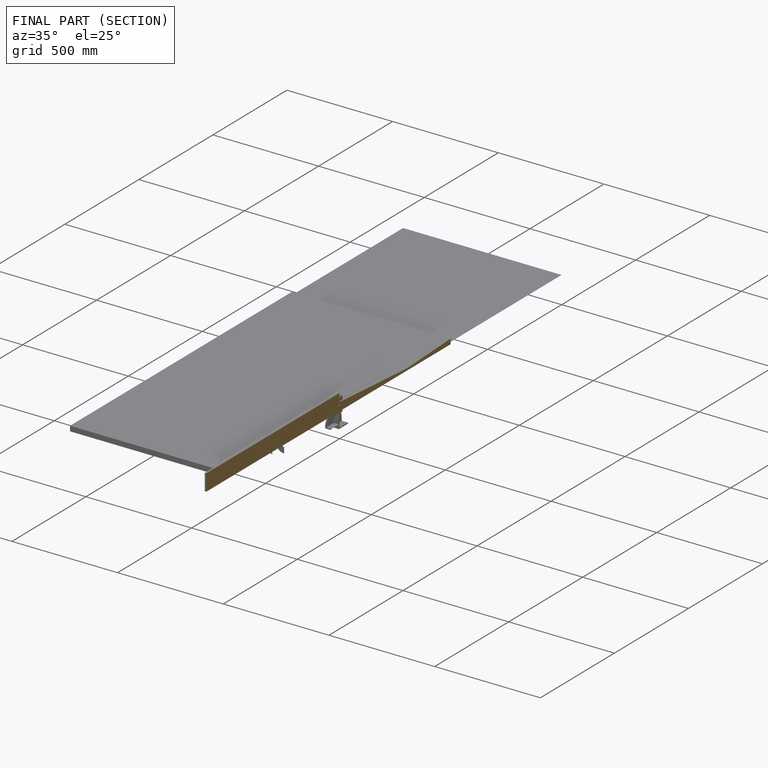
[diagram: finished part — half-section view (interior)]
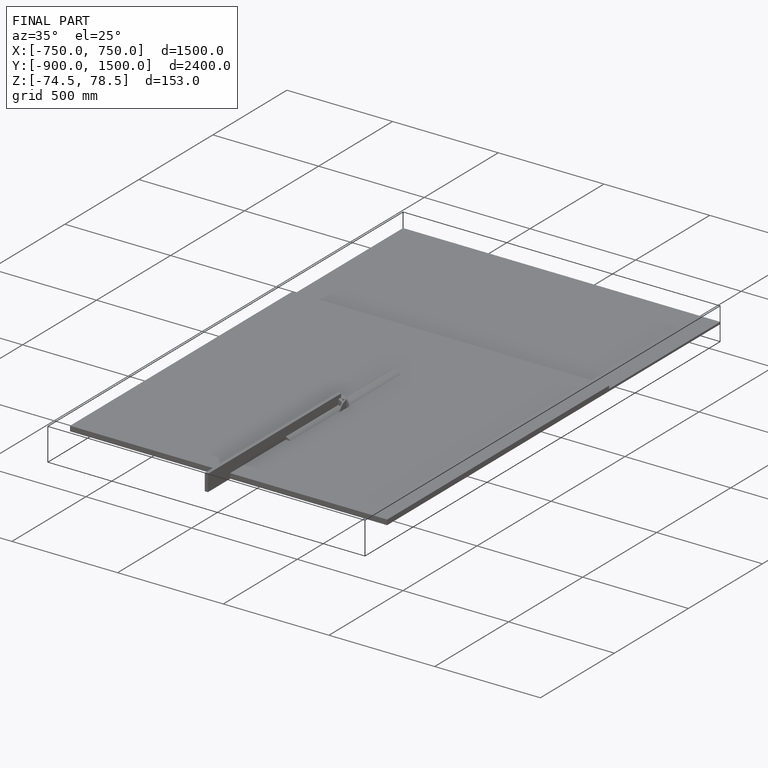
[diagram: finished part — iso view with bounding-box wireframe]
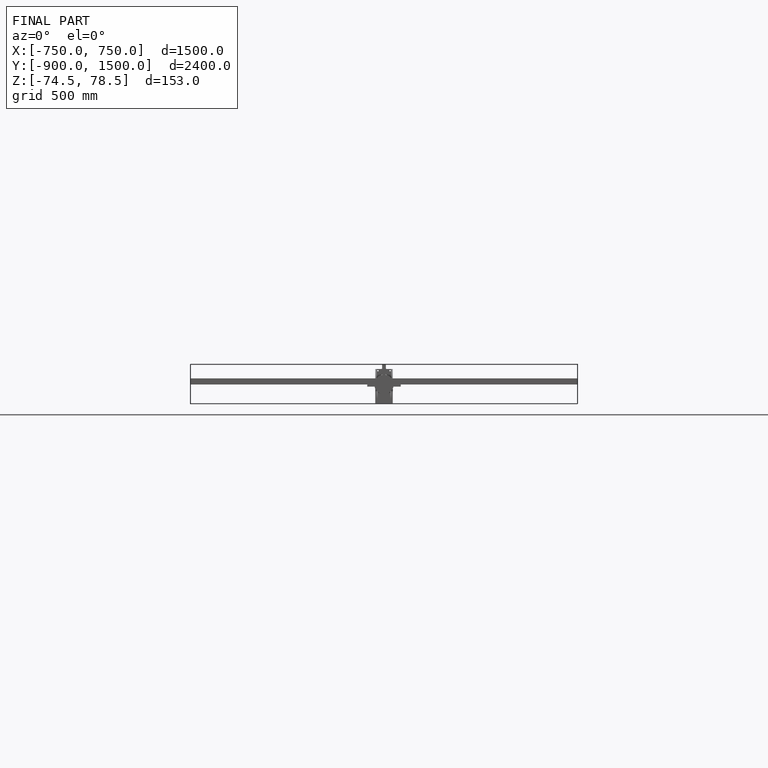
[diagram: finished part — front view with bounding-box wireframe]
